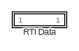
[diagram: root canvas - part 1/4, top right region]
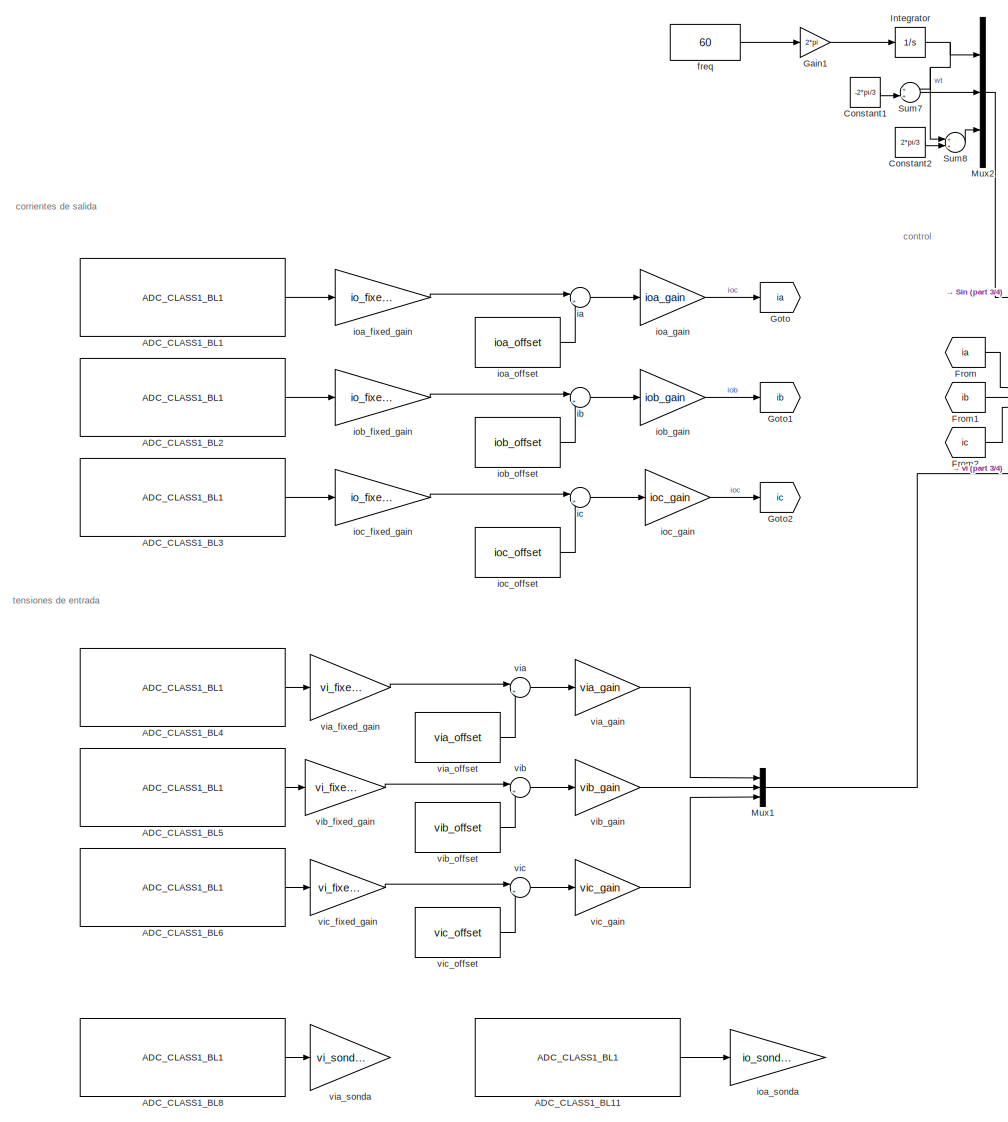
[diagram: root canvas - part 2/4, left side, full height]
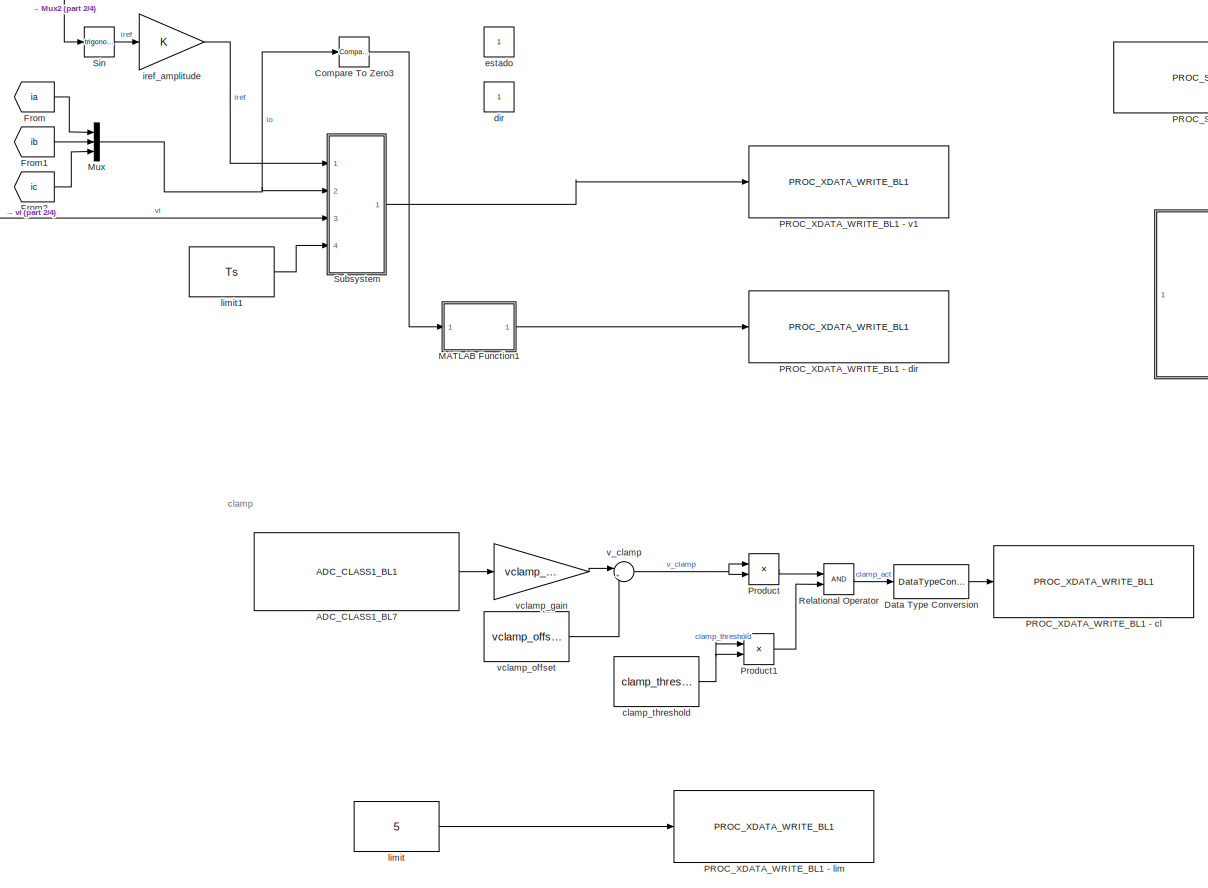
[diagram: root canvas - part 3/4, central region]
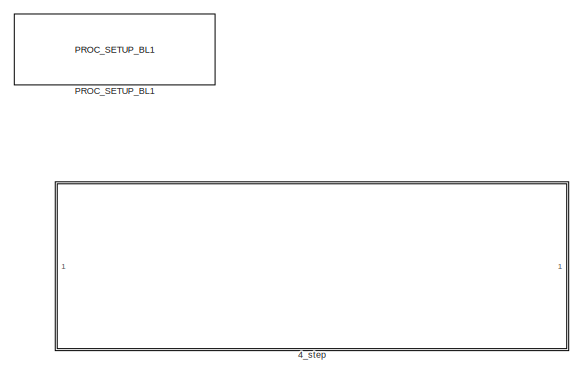
[diagram: root canvas - part 4/4, middle right region]
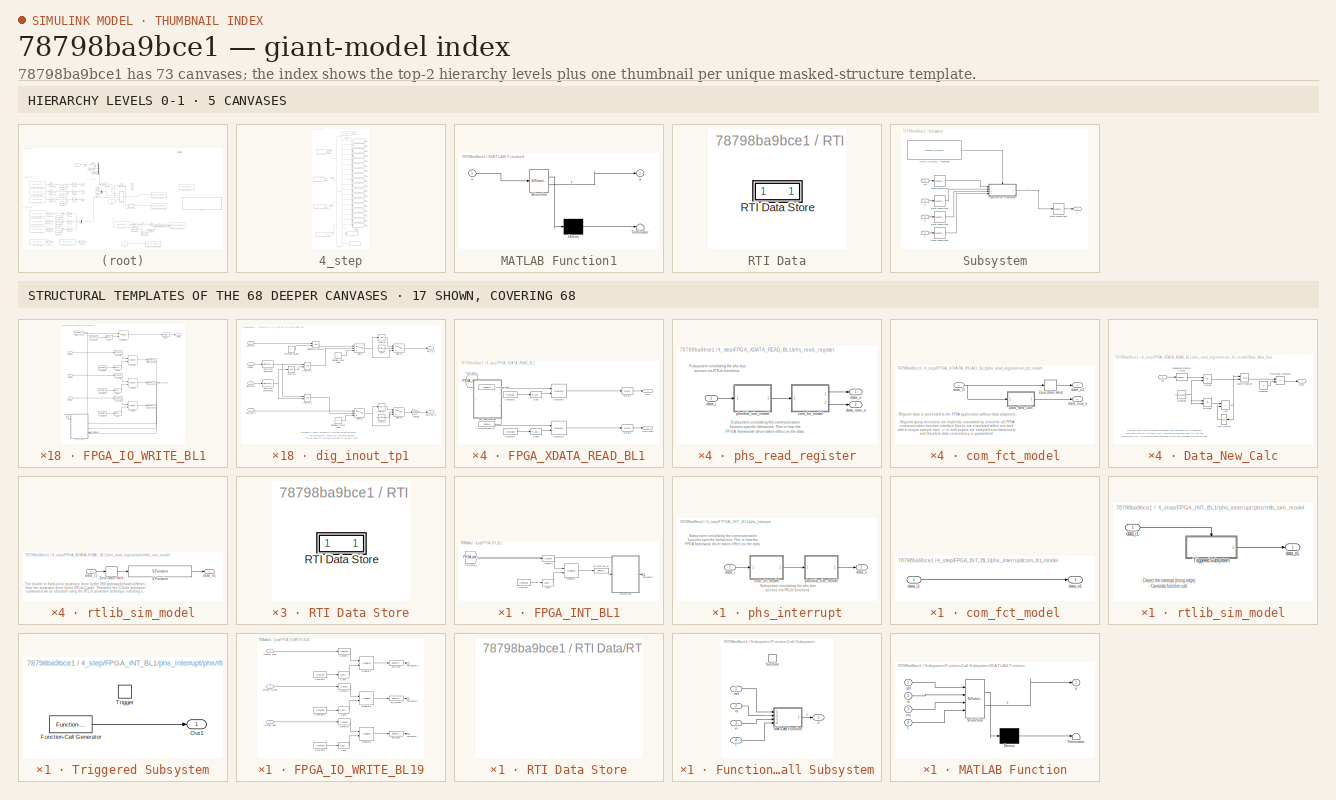
[diagram: thumbnail index - top-2 hierarchy levels (5 canvases) + 17 structural-template representatives of the remaining 68 canvases]
MODEL slx_78798ba9bce1
KIND model
CONFIG AbsTol = auto
CONFIG EnableMultiTasking = off
CONFIG FixedStep = Ts
CONFIG InitFcn = , if any(exist('rtifpga_mdlclblib', 'file') ~= 0), rtifpga_mdlclblib('Init', bdroot); end,\n
CONFIG MaxStep = auto
CONFIG MinStep = auto
CONFIG PostLoadFcn = , if any(exist('dsrtsu_mdlpostloadfcn', 'file') ~= 0), dsrtsu_mdlpostloadfcn('Execute', bdroot); end, \n
CONFIG RelTol = 1e-3
CONFIG SampleTimeConstraint = Unconstrained
CONFIG Solver = VariableStepAuto
CONFIG SolverName = VariableStepAuto
CONFIG StartTime = 0.0
CONFIG StopTime = inf
WORKSPACE source: mxarray member
WORKSPACE FPGA_test1_1_Interrupt_1_1_write: Simulink.Signal (value not decoded)
WORKSPACE FPGA_test1_1_Register_1_1_1_write: Simulink.Signal (value not decoded)
WORKSPACE FPGA_test1_1_Register_2_1_1_write: Simulink.Signal (value not decoded)
WORKSPACE FPGA_test1_1_Register_3_1_1_write: Simulink.Signal (value not decoded)
WORKSPACE FPGA_test1_1_Register_4_1_1_write: Simulink.Signal (value not decoded)
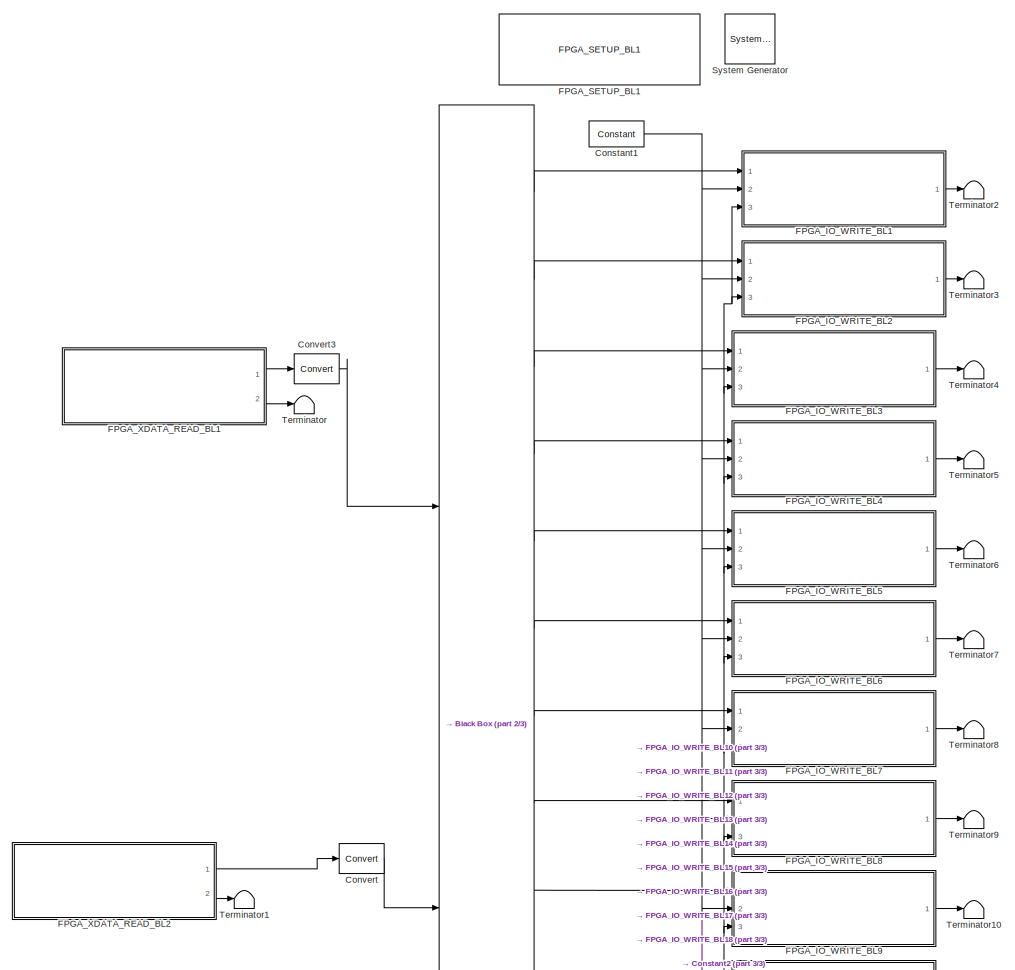
[diagram: 4_step - part 1/3, full width, top band]
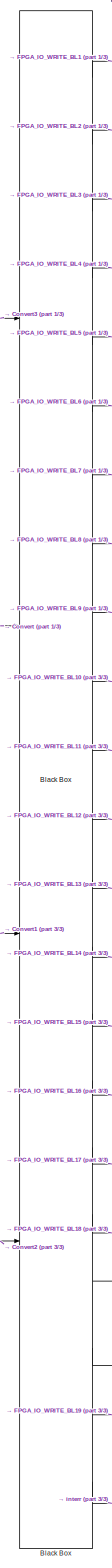
[diagram: 4_step - part 2/3, center side, full height]
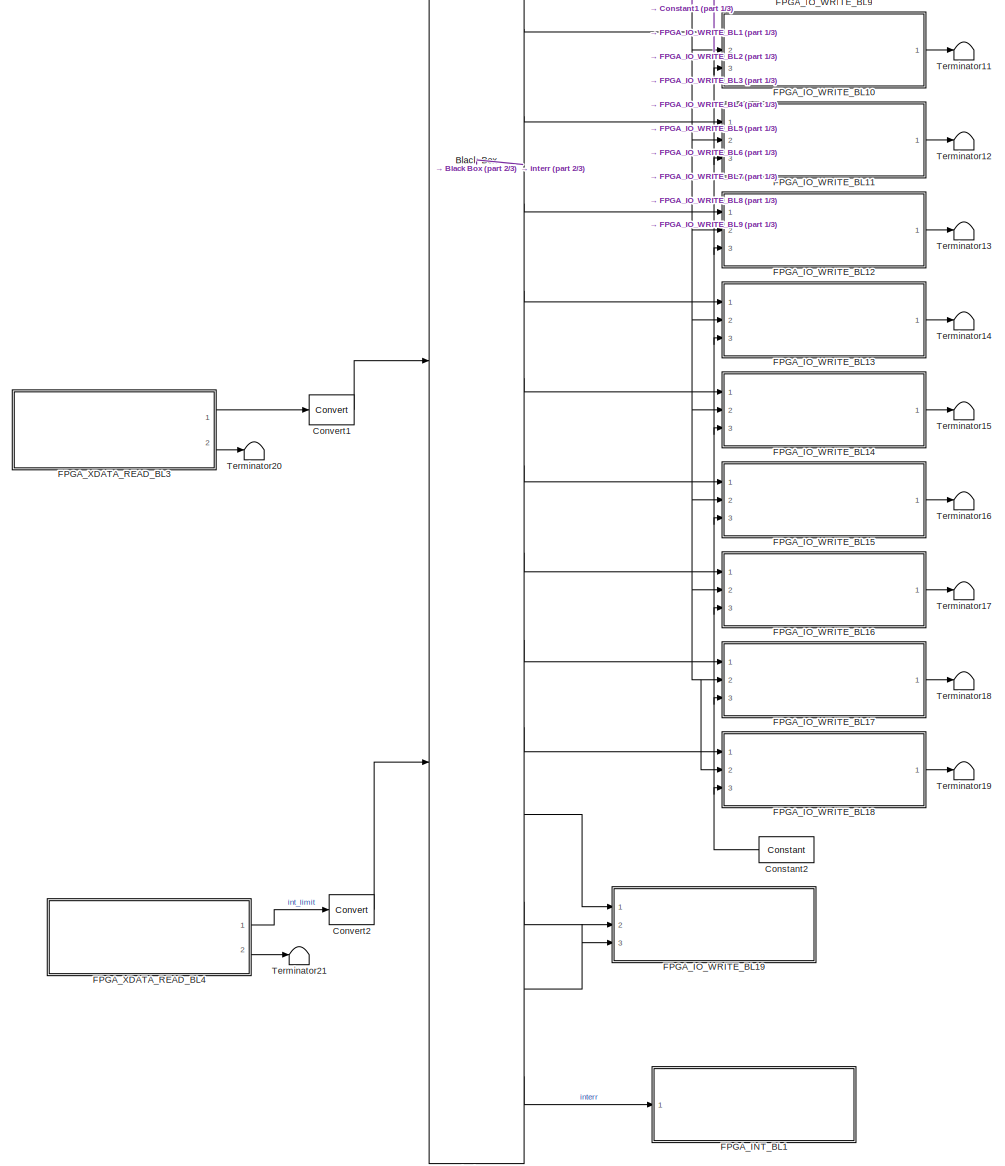
[diagram: 4_step - part 3/3, full width, bottom band]
BLOCK [SubSystem] 4_step
  Ports = []
  RequestExecContextInheritance = off
BLOCK [Reference] 4_step/ System Generator  REF=xbsIndex_r4/ System Generator
  AttributesFormatString = System\nGenerator
  Ports = []
  SourceBlock = xbsIndex_r4/ System Generator
  SourceType = Xilinx System Generator Block
  Tag = genX
  UserDataPersistent = on
BLOCK [Reference] 4_step/Black Box  REF=xbsIndex_r4/Black Box
  Ports = [4, 22]
  SourceBlock = xbsIndex_r4/Black Box
  SourceType = Xilinx Black Box Block
BLOCK [Reference] 4_step/Constant1  REF=xbsIndex_r4/Constant
  Ports = [0, 1]
  SourceBlock = xbsIndex_r4/Constant
  SourceType = Xilinx Constant Block Block
BLOCK [Reference] 4_step/Constant2  REF=xbsIndex_r4/Constant
  Ports = [0, 1]
  SourceBlock = xbsIndex_r4/Constant
  SourceType = Xilinx Constant Block Block
BLOCK [Reference] 4_step/Convert  REF=xbsIndex_r4/Convert
  Ports = [1, 1]
  SourceBlock = xbsIndex_r4/Convert
  SourceType = Xilinx Type Converter Block
BLOCK [Reference] 4_step/Convert1  REF=xbsIndex_r4/Convert
  Ports = [1, 1]
  SourceBlock = xbsIndex_r4/Convert
  SourceType = Xilinx Type Converter Block
BLOCK [Reference] 4_step/Convert2  REF=xbsIndex_r4/Convert
  Ports = [1, 1]
  SourceBlock = xbsIndex_r4/Convert
  SourceType = Xilinx Type Converter Block
BLOCK [Reference] 4_step/Convert3  REF=xbsIndex_r4/Convert
  Ports = [1, 1]
  SourceBlock = xbsIndex_r4/Convert
  SourceType = Xilinx Type Converter Block
BLOCK [SubSystem] 4_step/FPGA_INT_BL1
  CloseFcn = try, rti_fpga_blk_closefcn(gcbh); catch,errordlg({lasterr, '','Please check your RTI installation.'},['Error: ' upper(bdroot)], 'replace'); end
  CopyFcn = try, rti_fpga_blk_copyfcn(gcbh); catch,errordlg({lasterr, '','Please check your RTI installation.'},['Error: ' upper(bdroot)], 'replace'); end
  DeleteFcn = try, rti_fpga_blk_deletefcn(gcbh); catch,errordlg({lasterr, '','Please check your RTI installation.'},['Error: ' upper(bdroot)], 'replace'); end
  InitFcn = try, rti_fpga_blk_initfcn(gcbh); catch,errordlg({lasterr, '','Please check your RTI installation.'},['Error: ' upper(bdroot)], 'replace'); end
  LoadFcn = try, rti_fpga_blk_loadfcn(gcbh); catch,errordlg({lasterr, '','Please check your RTI installation.'},['Error: ' upper(bdroot)], 'replace'); end
  MaskHideContents = on
  ModelCloseFcn = try, rti_fpga_blk_modelclosefcn(gcbh); catch,errordlg({lasterr, '','Please check your RTI installation.'},['Error: ' upper(bdroot)], 'replace'); end
  NameChangeFcn = try, rti_fpga_blk_namechangefcn(gcbh); catch,errordlg({lasterr, '','Please check your RTI installation.'},['Error: ' upper(bdroot)], 'replace'); end
  OpenFcn = try, rti_fpga_blk_openfcn(gcbh); catch,errordlg({lasterr, '','Please check your RTI installation.'},['Error: ' upper(bdroot)], 'replace'); end
  ParentCloseFcn = try, rti_fpga_blk_parentclosefcn(gcbh); catch,errordlg({lasterr, '','Please check your RTI installation.'},['Error: ' upper(bdroot)], 'replace'); end
  Ports = [1]
  PreSaveFcn = try, rti_fpga_blk_presavefcn(gcbh); catch,errordlg({lasterr, '','Please check your RTI installation.'},['Error: ' upper(bdroot)], 'replace'); end
  RequestExecContextInheritance = off
  StartFcn = try, rti_fpga_blk_startfcn(gcbh); catch,errordlg({lasterr, '','Please check your RTI installation.'},['Error: ' upper(bdroot)], 'replace'); end
BLOCK [Reference] 4_step/FPGA_INT_BL1/CEP1  REF=xbsIndex_r4/Clock Enable Probe
  Ports = [1, 1]
  SourceBlock = xbsIndex_r4/Clock Enable Probe
  SourceType = Xilinx Clock Enable Probe Block
BLOCK [Reference] 4_step/FPGA_INT_BL1/Constant1  REF=xbsIndex_r4/Constant
  Ports = [0, 1]
  SourceBlock = xbsIndex_r4/Constant
  SourceType = Xilinx Constant Block Block
BLOCK [Reference] 4_step/FPGA_INT_BL1/Convert1  REF=xbsIndex_r4/Convert
  Ports = [1, 1]
  SourceBlock = xbsIndex_r4/Convert
  SourceType = Xilinx Type Converter Block
BLOCK [Goto] 4_step/FPGA_INT_BL1/Goto_data_o
  GotoTag = FPGA_test1_1_Interrupt_1_1_write
  TagVisibility = global
BLOCK [Inport] 4_step/FPGA_INT_BL1/Int
BLOCK [Reference] 4_step/FPGA_INT_BL1/Register1  REF=xbsIndex_r4/Register
  Ports = [2, 1]
  SourceBlock = xbsIndex_r4/Register
  SourceType = Xilinx Register Block
BLOCK [Terminator] 4_step/FPGA_INT_BL1/Terminator
BLOCK [SubSystem] 4_step/FPGA_INT_BL1/phs_interrupt
  Ports = [1, 1]
  RequestExecContextInheritance = off
BLOCK [SubSystem] 4_step/FPGA_INT_BL1/phs_interrupt/com_fct_model
  Ports = [1, 1]
  RequestExecContextInheritance = off
BLOCK [Inport] 4_step/FPGA_INT_BL1/phs_interrupt/com_fct_model/data_i1
BLOCK [Outport] 4_step/FPGA_INT_BL1/phs_interrupt/com_fct_model/data_o1
  VectorParamsAs1DForOutWhenUnconnected = off
BLOCK [Inport] 4_step/FPGA_INT_BL1/phs_interrupt/data_i
BLOCK [Outport] 4_step/FPGA_INT_BL1/phs_interrupt/data_o
  VectorParamsAs1DForOutWhenUnconnected = off
BLOCK [SubSystem] 4_step/FPGA_INT_BL1/phs_interrupt/phs//rtlib_sim_model
  Ports = [1, 1]
  RequestExecContextInheritance = off
BLOCK [SubSystem] 4_step/FPGA_INT_BL1/phs_interrupt/phs//rtlib_sim_model/Triggered Subsystem
  Ports = [0, 1, 0, 1]
  RequestExecContextInheritance = off
  TreatAsAtomicUnit = on
BLOCK [Reference] 4_step/FPGA_INT_BL1/phs_interrupt/phs//rtlib_sim_model/Triggered Subsystem/Function-Call Generator  REF=simulink/Ports &
Subsystems/Function-Call
Generator
  Ports = [0, 1]
  SourceBlock = simulink/Ports &\nSubsystems/Function-Call\nGenerator
  SourceProductBaseCode = SL
  SourceType = Function-Call Generator
BLOCK [Outport] 4_step/FPGA_INT_BL1/phs_interrupt/phs//rtlib_sim_model/Triggered Subsystem/Out1
  VectorParamsAs1DForOutWhenUnconnected = off
BLOCK [TriggerPort] 4_step/FPGA_INT_BL1/phs_interrupt/phs//rtlib_sim_model/Triggered Subsystem/Trigger
  Ports = []
  StatesWhenEnabling = held
  VariantControl = (inherit)
BLOCK [Inport] 4_step/FPGA_INT_BL1/phs_interrupt/phs//rtlib_sim_model/data_i1
BLOCK [Outport] 4_step/FPGA_INT_BL1/phs_interrupt/phs//rtlib_sim_model/data_o1
  VectorParamsAs1DForOutWhenUnconnected = off
BLOCK [Reference] 4_step/FPGA_INT_BL1/usr_interrupt_00  REF=xbsIndex_r4/Gateway Out
  Ports = [1, 1]
  SourceBlock = xbsIndex_r4/Gateway Out
  SourceType = Xilinx Gateway Out Block
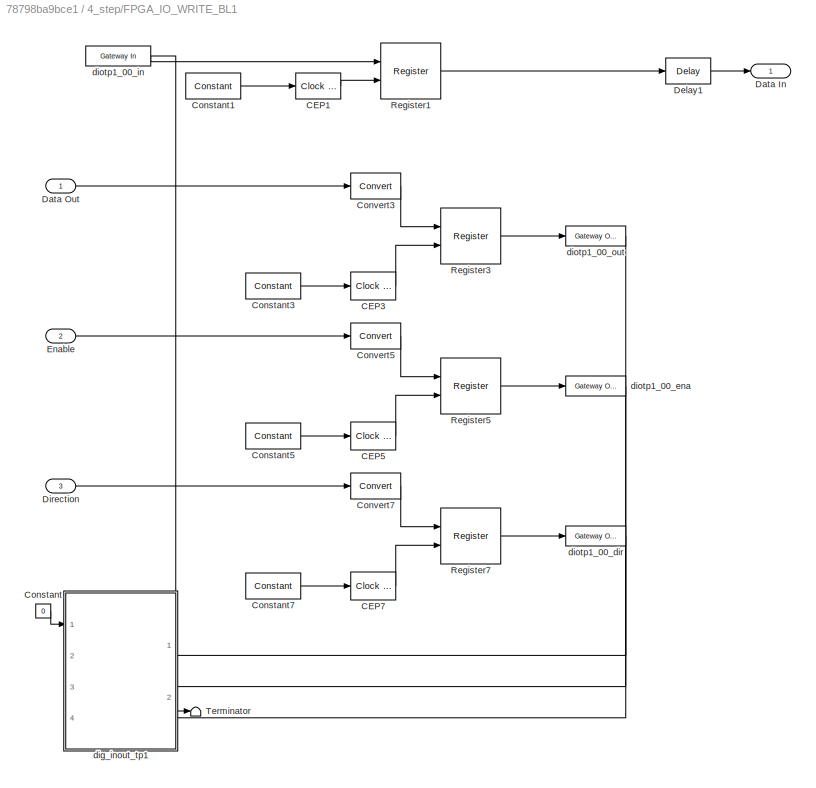
BLOCK [SubSystem] 4_step/FPGA_IO_WRITE_BL1
  CloseFcn = try, rti_fpga_blk_closefcn(gcbh); catch,errordlg({lasterr, '','Please check your RTI installation.'},['Error: ' upper(bdroot)], 'replace'); end
  CopyFcn = try, rti_fpga_blk_copyfcn(gcbh); catch,errordlg({lasterr, '','Please check your RTI installation.'},['Error: ' upper(bdroot)], 'replace'); end
  DeleteFcn = try, rti_fpga_blk_deletefcn(gcbh); catch,errordlg({lasterr, '','Please check your RTI installation.'},['Error: ' upper(bdroot)], 'replace'); end
  InitFcn = try, rti_fpga_blk_initfcn(gcbh); catch,errordlg({lasterr, '','Please check your RTI installation.'},['Error: ' upper(bdroot)], 'replace'); end
  LoadFcn = try, rti_fpga_blk_loadfcn(gcbh); catch,errordlg({lasterr, '','Please check your RTI installation.'},['Error: ' upper(bdroot)], 'replace'); end
  MaskHideContents = on
  ModelCloseFcn = try, rti_fpga_blk_modelclosefcn(gcbh); catch,errordlg({lasterr, '','Please check your RTI installation.'},['Error: ' upper(bdroot)], 'replace'); end
  NameChangeFcn = try, rti_fpga_blk_namechangefcn(gcbh); catch,errordlg({lasterr, '','Please check your RTI installation.'},['Error: ' upper(bdroot)], 'replace'); end
  OpenFcn = try, rti_fpga_blk_openfcn(gcbh); catch,errordlg({lasterr, '','Please check your RTI installation.'},['Error: ' upper(bdroot)], 'replace'); end
  ParentCloseFcn = try, rti_fpga_blk_parentclosefcn(gcbh); catch,errordlg({lasterr, '','Please check your RTI installation.'},['Error: ' upper(bdroot)], 'replace'); end
  Ports = [3, 1]
  PreSaveFcn = try, rti_fpga_blk_presavefcn(gcbh); catch,errordlg({lasterr, '','Please check your RTI installation.'},['Error: ' upper(bdroot)], 'replace'); end
  RequestExecContextInheritance = off
  StartFcn = try, rti_fpga_blk_startfcn(gcbh); catch,errordlg({lasterr, '','Please check your RTI installation.'},['Error: ' upper(bdroot)], 'replace'); end
BLOCK [Reference] 4_step/FPGA_IO_WRITE_BL1/CEP1  REF=xbsIndex_r4/Clock Enable Probe
  Ports = [1, 1]
  SourceBlock = xbsIndex_r4/Clock Enable Probe
  SourceType = Xilinx Clock Enable Probe Block
BLOCK [Reference] 4_step/FPGA_IO_WRITE_BL1/CEP3  REF=xbsIndex_r4/Clock Enable Probe
  Ports = [1, 1]
  SourceBlock = xbsIndex_r4/Clock Enable Probe
  SourceType = Xilinx Clock Enable Probe Block
BLOCK [Reference] 4_step/FPGA_IO_WRITE_BL1/CEP5  REF=xbsIndex_r4/Clock Enable Probe
  Ports = [1, 1]
  SourceBlock = xbsIndex_r4/Clock Enable Probe
  SourceType = Xilinx Clock Enable Probe Block
BLOCK [Reference] 4_step/FPGA_IO_WRITE_BL1/CEP7  REF=xbsIndex_r4/Clock Enable Probe
  Ports = [1, 1]
  SourceBlock = xbsIndex_r4/Clock Enable Probe
  SourceType = Xilinx Clock Enable Probe Block
BLOCK [Constant] 4_step/FPGA_IO_WRITE_BL1/Constant
  Value = 0
BLOCK [Reference] 4_step/FPGA_IO_WRITE_BL1/Constant1  REF=xbsIndex_r4/Constant
  Ports = [0, 1]
  SourceBlock = xbsIndex_r4/Constant
  SourceType = Xilinx Constant Block Block
BLOCK [Reference] 4_step/FPGA_IO_WRITE_BL1/Constant3  REF=xbsIndex_r4/Constant
  Ports = [0, 1]
  SourceBlock = xbsIndex_r4/Constant
  SourceType = Xilinx Constant Block Block
BLOCK [Reference] 4_step/FPGA_IO_WRITE_BL1/Constant5  REF=xbsIndex_r4/Constant
  Ports = [0, 1]
  SourceBlock = xbsIndex_r4/Constant
  SourceType = Xilinx Constant Block Block
BLOCK [Reference] 4_step/FPGA_IO_WRITE_BL1/Constant7  REF=xbsIndex_r4/Constant
  Ports = [0, 1]
  SourceBlock = xbsIndex_r4/Constant
  SourceType = Xilinx Constant Block Block
BLOCK [Reference] 4_step/FPGA_IO_WRITE_BL1/Convert3  REF=xbsIndex_r4/Convert
  Ports = [1, 1]
  SourceBlock = xbsIndex_r4/Convert
  SourceType = Xilinx Type Converter Block
BLOCK [Reference] 4_step/FPGA_IO_WRITE_BL1/Convert5  REF=xbsIndex_r4/Convert
  Ports = [1, 1]
  SourceBlock = xbsIndex_r4/Convert
  SourceType = Xilinx Type Converter Block
BLOCK [Reference] 4_step/FPGA_IO_WRITE_BL1/Convert7  REF=xbsIndex_r4/Convert
  Ports = [1, 1]
  SourceBlock = xbsIndex_r4/Convert
  SourceType = Xilinx Type Converter Block
BLOCK [Outport] 4_step/FPGA_IO_WRITE_BL1/Data In
BLOCK [Inport] 4_step/FPGA_IO_WRITE_BL1/Data Out
BLOCK [Reference] 4_step/FPGA_IO_WRITE_BL1/Delay1  REF=xbsIndex_r4/Delay
  Ports = [1, 1]
  SourceBlock = xbsIndex_r4/Delay
  SourceType = Xilinx Delay Block
BLOCK [Inport] 4_step/FPGA_IO_WRITE_BL1/Direction
  Port = 3
BLOCK [Inport] 4_step/FPGA_IO_WRITE_BL1/Enable
  Port = 2
BLOCK [Reference] 4_step/FPGA_IO_WRITE_BL1/Register1  REF=xbsIndex_r4/Register
  Ports = [2, 1]
  SourceBlock = xbsIndex_r4/Register
  SourceType = Xilinx Register Block
BLOCK [Reference] 4_step/FPGA_IO_WRITE_BL1/Register3  REF=xbsIndex_r4/Register
  Ports = [2, 1]
  SourceBlock = xbsIndex_r4/Register
  SourceType = Xilinx Register Block
BLOCK [Reference] 4_step/FPGA_IO_WRITE_BL1/Register5  REF=xbsIndex_r4/Register
  Ports = [2, 1]
  SourceBlock = xbsIndex_r4/Register
  SourceType = Xilinx Register Block
BLOCK [Reference] 4_step/FPGA_IO_WRITE_BL1/Register7  REF=xbsIndex_r4/Register
  Ports = [2, 1]
  SourceBlock = xbsIndex_r4/Register
  SourceType = Xilinx Register Block
BLOCK [Terminator] 4_step/FPGA_IO_WRITE_BL1/Terminator
BLOCK [SubSystem] 4_step/FPGA_IO_WRITE_BL1/dig_inout_tp1
  Ports = [4, 2]
  RequestExecContextInheritance = off
BLOCK [DataTypeConversion] 4_step/FPGA_IO_WRITE_BL1/dig_inout_tp1/Data Type Conversion
  RndMeth = Floor
  SaturateOnIntegerOverflow = off
BLOCK [DataTypeConversion] 4_step/FPGA_IO_WRITE_BL1/dig_inout_tp1/Data Type Conversion1
  RndMeth = Floor
  SaturateOnIntegerOverflow = off
BLOCK [Constant] 4_step/FPGA_IO_WRITE_BL1/dig_inout_tp1/Disabled Input Value
  Value = 0
BLOCK [Constant] 4_step/FPGA_IO_WRITE_BL1/dig_inout_tp1/Disabled Output Value
  Value = 0
BLOCK [Constant] 4_step/FPGA_IO_WRITE_BL1/dig_inout_tp1/Invert
  Value = inverted_dio
BLOCK [Constant] 4_step/FPGA_IO_WRITE_BL1/dig_inout_tp1/Invert1
  Value = inverted_dio
BLOCK [Logic] 4_step/FPGA_IO_WRITE_BL1/dig_inout_tp1/Inverter
  AllPortsSameDT = off
  Operator = NOT
  OutDataTypeStr = boolean
  Ports = [1, 1]
BLOCK [Logic] 4_step/FPGA_IO_WRITE_BL1/dig_inout_tp1/Inverter1
  AllPortsSameDT = off
  OutDataTypeStr = boolean
  Ports = [2, 1]
BLOCK [Logic] 4_step/FPGA_IO_WRITE_BL1/dig_inout_tp1/Inverter2
  AllPortsSameDT = off
  Operator = NOT
  OutDataTypeStr = boolean
  Ports = [1, 1]
BLOCK [Logic] 4_step/FPGA_IO_WRITE_BL1/dig_inout_tp1/Inverter3
  AllPortsSameDT = off
  OutDataTypeStr = boolean
  Ports = [2, 1]
BLOCK [Logic] 4_step/FPGA_IO_WRITE_BL1/dig_inout_tp1/Inverter4
  AllPortsSameDT = off
  Operator = NOT
  OutDataTypeStr = boolean
  Ports = [1, 1]
BLOCK [RelationalOperator] 4_step/FPGA_IO_WRITE_BL1/dig_inout_tp1/Relational Operator
  InputSameDT = off
  OutDataTypeStr = boolean
  Ports = [2, 1]
BLOCK [Switch] 4_step/FPGA_IO_WRITE_BL1/dig_inout_tp1/Switch
  InputSameDT = off
  SaturateOnIntegerOverflow = off
  Threshold = 1
BLOCK [Switch] 4_step/FPGA_IO_WRITE_BL1/dig_inout_tp1/Switch1
  InputSameDT = off
  SaturateOnIntegerOverflow = off
  Threshold = 1
BLOCK [Switch] 4_step/FPGA_IO_WRITE_BL1/dig_inout_tp1/Switch2
  InputSameDT = off
  SaturateOnIntegerOverflow = off
  Threshold = 1
BLOCK [Switch] 4_step/FPGA_IO_WRITE_BL1/dig_inout_tp1/Switch3
  InputSameDT = off
  SaturateOnIntegerOverflow = off
  Threshold = 1
BLOCK [Constant] 4_step/FPGA_IO_WRITE_BL1/dig_inout_tp1/Threshold Voltage
  Value = 2
BLOCK [Gain] 4_step/FPGA_IO_WRITE_BL1/dig_inout_tp1/Voltage
  Gain = voltage
  ParamDataTypeStr = float('double')
BLOCK [Inport] 4_step/FPGA_IO_WRITE_BL1/dig_inout_tp1/data_in_i
BLOCK [Outport] 4_step/FPGA_IO_WRITE_BL1/dig_inout_tp1/data_in_o
  VectorParamsAs1DForOutWhenUnconnected = off
BLOCK [Inport] 4_step/FPGA_IO_WRITE_BL1/dig_inout_tp1/data_out_i
  Port = 3
BLOCK [Outport] 4_step/FPGA_IO_WRITE_BL1/dig_inout_tp1/data_out_o
  Port = 2
  VectorParamsAs1DForOutWhenUnconnected = off
BLOCK [Inport] 4_step/FPGA_IO_WRITE_BL1/dig_inout_tp1/direction_i
  Port = 4
BLOCK [Inport] 4_step/FPGA_IO_WRITE_BL1/dig_inout_tp1/enable_i
  Port = 2
BLOCK [Reference] 4_step/FPGA_IO_WRITE_BL1/diotp1_00_dir  REF=xbsIndex_r4/Gateway Out
  Ports = [1, 1]
  SourceBlock = xbsIndex_r4/Gateway Out
  SourceType = Xilinx Gateway Out Block
BLOCK [Reference] 4_step/FPGA_IO_WRITE_BL1/diotp1_00_ena  REF=xbsIndex_r4/Gateway Out
  Ports = [1, 1]
  SourceBlock = xbsIndex_r4/Gateway Out
  SourceType = Xilinx Gateway Out Block
BLOCK [Reference] 4_step/FPGA_IO_WRITE_BL1/diotp1_00_in  REF=xbsIndex_r4/Gateway In
  Ports = [1, 1]
  SourceBlock = xbsIndex_r4/Gateway In
  SourceType = Xilinx Gateway In Block
BLOCK [Reference] 4_step/FPGA_IO_WRITE_BL1/diotp1_00_out  REF=xbsIndex_r4/Gateway Out
  Ports = [1, 1]
  SourceBlock = xbsIndex_r4/Gateway Out
  SourceType = Xilinx Gateway Out Block
BLOCK [SubSystem] 4_step/FPGA_IO_WRITE_BL10
  CloseFcn = try, rti_fpga_blk_closefcn(gcbh); catch,errordlg({lasterr, '','Please check your RTI installation.'},['Error: ' upper(bdroot)], 'replace'); end
  CopyFcn = try, rti_fpga_blk_copyfcn(gcbh); catch,errordlg({lasterr, '','Please check your RTI installation.'},['Error: ' upper(bdroot)], 'replace'); end
  DeleteFcn = try, rti_fpga_blk_deletefcn(gcbh); catch,errordlg({lasterr, '','Please check your RTI installation.'},['Error: ' upper(bdroot)], 'replace'); end
  InitFcn = try, rti_fpga_blk_initfcn(gcbh); catch,errordlg({lasterr, '','Please check your RTI installation.'},['Error: ' upper(bdroot)], 'replace'); end
  LoadFcn = try, rti_fpga_blk_loadfcn(gcbh); catch,errordlg({lasterr, '','Please check your RTI installation.'},['Error: ' upper(bdroot)], 'replace'); end
  MaskHideContents = on
  ModelCloseFcn = try, rti_fpga_blk_modelclosefcn(gcbh); catch,errordlg({lasterr, '','Please check your RTI installation.'},['Error: ' upper(bdroot)], 'replace'); end
  NameChangeFcn = try, rti_fpga_blk_namechangefcn(gcbh); catch,errordlg({lasterr, '','Please check your RTI installation.'},['Error: ' upper(bdroot)], 'replace'); end
  OpenFcn = try, rti_fpga_blk_openfcn(gcbh); catch,errordlg({lasterr, '','Please check your RTI installation.'},['Error: ' upper(bdroot)], 'replace'); end
  ParentCloseFcn = try, rti_fpga_blk_parentclosefcn(gcbh); catch,errordlg({lasterr, '','Please check your RTI installation.'},['Error: ' upper(bdroot)], 'replace'); end
  Ports = [3, 1]
  PreSaveFcn = try, rti_fpga_blk_presavefcn(gcbh); catch,errordlg({lasterr, '','Please check your RTI installation.'},['Error: ' upper(bdroot)], 'replace'); end
  RequestExecContextInheritance = off
  StartFcn = try, rti_fpga_blk_startfcn(gcbh); catch,errordlg({lasterr, '','Please check your RTI installation.'},['Error: ' upper(bdroot)], 'replace'); end
BLOCK [Reference] 4_step/FPGA_IO_WRITE_BL10/CEP1  REF=xbsIndex_r4/Clock Enable Probe
  Ports = [1, 1]
  SourceBlock = xbsIndex_r4/Clock Enable Probe
  SourceType = Xilinx Clock Enable Probe Block
BLOCK [Reference] 4_step/FPGA_IO_WRITE_BL10/CEP3  REF=xbsIndex_r4/Clock Enable Probe
  Ports = [1, 1]
  SourceBlock = xbsIndex_r4/Clock Enable Probe
  SourceType = Xilinx Clock Enable Probe Block
BLOCK [Reference] 4_step/FPGA_IO_WRITE_BL10/CEP5  REF=xbsIndex_r4/Clock Enable Probe
  Ports = [1, 1]
  SourceBlock = xbsIndex_r4/Clock Enable Probe
  SourceType = Xilinx Clock Enable Probe Block
BLOCK [Reference] 4_step/FPGA_IO_WRITE_BL10/CEP7  REF=xbsIndex_r4/Clock Enable Probe
  Ports = [1, 1]
  SourceBlock = xbsIndex_r4/Clock Enable Probe
  SourceType = Xilinx Clock Enable Probe Block
BLOCK [Constant] 4_step/FPGA_IO_WRITE_BL10/Constant
  Value = 0
BLOCK [Reference] 4_step/FPGA_IO_WRITE_BL10/Constant1  REF=xbsIndex_r4/Constant
  Ports = [0, 1]
  SourceBlock = xbsIndex_r4/Constant
  SourceType = Xilinx Constant Block Block
BLOCK [Reference] 4_step/FPGA_IO_WRITE_BL10/Constant3  REF=xbsIndex_r4/Constant
  Ports = [0, 1]
  SourceBlock = xbsIndex_r4/Constant
  SourceType = Xilinx Constant Block Block
BLOCK [Reference] 4_step/FPGA_IO_WRITE_BL10/Constant5  REF=xbsIndex_r4/Constant
  Ports = [0, 1]
  SourceBlock = xbsIndex_r4/Constant
  SourceType = Xilinx Constant Block Block
BLOCK [Reference] 4_step/FPGA_IO_WRITE_BL10/Constant7  REF=xbsIndex_r4/Constant
  Ports = [0, 1]
  SourceBlock = xbsIndex_r4/Constant
  SourceType = Xilinx Constant Block Block
BLOCK [Reference] 4_step/FPGA_IO_WRITE_BL10/Convert3  REF=xbsIndex_r4/Convert
  Ports = [1, 1]
  SourceBlock = xbsIndex_r4/Convert
  SourceType = Xilinx Type Converter Block
BLOCK [Reference] 4_step/FPGA_IO_WRITE_BL10/Convert5  REF=xbsIndex_r4/Convert
  Ports = [1, 1]
  SourceBlock = xbsIndex_r4/Convert
  SourceType = Xilinx Type Converter Block
BLOCK [Reference] 4_step/FPGA_IO_WRITE_BL10/Convert7  REF=xbsIndex_r4/Convert
  Ports = [1, 1]
  SourceBlock = xbsIndex_r4/Convert
  SourceType = Xilinx Type Converter Block
BLOCK [Outport] 4_step/FPGA_IO_WRITE_BL10/Data In
BLOCK [Inport] 4_step/FPGA_IO_WRITE_BL10/Data Out
BLOCK [Reference] 4_step/FPGA_IO_WRITE_BL10/Delay1  REF=xbsIndex_r4/Delay
  Ports = [1, 1]
  SourceBlock = xbsIndex_r4/Delay
  SourceType = Xilinx Delay Block
BLOCK [Inport] 4_step/FPGA_IO_WRITE_BL10/Direction
  Port = 3
BLOCK [Inport] 4_step/FPGA_IO_WRITE_BL10/Enable
  Port = 2
BLOCK [Reference] 4_step/FPGA_IO_WRITE_BL10/Register1  REF=xbsIndex_r4/Register
  Ports = [2, 1]
  SourceBlock = xbsIndex_r4/Register
  SourceType = Xilinx Register Block
BLOCK [Reference] 4_step/FPGA_IO_WRITE_BL10/Register3  REF=xbsIndex_r4/Register
  Ports = [2, 1]
  SourceBlock = xbsIndex_r4/Register
  SourceType = Xilinx Register Block
BLOCK [Reference] 4_step/FPGA_IO_WRITE_BL10/Register5  REF=xbsIndex_r4/Register
  Ports = [2, 1]
  SourceBlock = xbsIndex_r4/Register
  SourceType = Xilinx Register Block
BLOCK [Reference] 4_step/FPGA_IO_WRITE_BL10/Register7  REF=xbsIndex_r4/Register
  Ports = [2, 1]
  SourceBlock = xbsIndex_r4/Register
  SourceType = Xilinx Register Block
BLOCK [Terminator] 4_step/FPGA_IO_WRITE_BL10/Terminator
BLOCK [SubSystem] 4_step/FPGA_IO_WRITE_BL10/dig_inout_tp1
  Ports = [4, 2]
  RequestExecContextInheritance = off
BLOCK [DataTypeConversion] 4_step/FPGA_IO_WRITE_BL10/dig_inout_tp1/Data Type Conversion
  RndMeth = Floor
  SaturateOnIntegerOverflow = off
BLOCK [DataTypeConversion] 4_step/FPGA_IO_WRITE_BL10/dig_inout_tp1/Data Type Conversion1
  RndMeth = Floor
  SaturateOnIntegerOverflow = off
BLOCK [Constant] 4_step/FPGA_IO_WRITE_BL10/dig_inout_tp1/Disabled Input Value
  Value = 0
BLOCK [Constant] 4_step/FPGA_IO_WRITE_BL10/dig_inout_tp1/Disabled Output Value
  Value = 0
BLOCK [Constant] 4_step/FPGA_IO_WRITE_BL10/dig_inout_tp1/Invert
  Value = inverted_dio
BLOCK [Constant] 4_step/FPGA_IO_WRITE_BL10/dig_inout_tp1/Invert1
  Value = inverted_dio
BLOCK [Logic] 4_step/FPGA_IO_WRITE_BL10/dig_inout_tp1/Inverter
  AllPortsSameDT = off
  Operator = NOT
  OutDataTypeStr = boolean
  Ports = [1, 1]
BLOCK [Logic] 4_step/FPGA_IO_WRITE_BL10/dig_inout_tp1/Inverter1
  AllPortsSameDT = off
  OutDataTypeStr = boolean
  Ports = [2, 1]
BLOCK [Logic] 4_step/FPGA_IO_WRITE_BL10/dig_inout_tp1/Inverter2
  AllPortsSameDT = off
  Operator = NOT
  OutDataTypeStr = boolean
  Ports = [1, 1]
BLOCK [Logic] 4_step/FPGA_IO_WRITE_BL10/dig_inout_tp1/Inverter3
  AllPortsSameDT = off
  OutDataTypeStr = boolean
  Ports = [2, 1]
BLOCK [Logic] 4_step/FPGA_IO_WRITE_BL10/dig_inout_tp1/Inverter4
  AllPortsSameDT = off
  Operator = NOT
  OutDataTypeStr = boolean
  Ports = [1, 1]
BLOCK [RelationalOperator] 4_step/FPGA_IO_WRITE_BL10/dig_inout_tp1/Relational Operator
  InputSameDT = off
  OutDataTypeStr = boolean
  Ports = [2, 1]
BLOCK [Switch] 4_step/FPGA_IO_WRITE_BL10/dig_inout_tp1/Switch
  InputSameDT = off
  SaturateOnIntegerOverflow = off
  Threshold = 1
BLOCK [Switch] 4_step/FPGA_IO_WRITE_BL10/dig_inout_tp1/Switch1
  InputSameDT = off
  SaturateOnIntegerOverflow = off
  Threshold = 1
BLOCK [Switch] 4_step/FPGA_IO_WRITE_BL10/dig_inout_tp1/Switch2
  InputSameDT = off
  SaturateOnIntegerOverflow = off
  Threshold = 1
BLOCK [Switch] 4_step/FPGA_IO_WRITE_BL10/dig_inout_tp1/Switch3
  InputSameDT = off
  SaturateOnIntegerOverflow = off
  Threshold = 1
BLOCK [Constant] 4_step/FPGA_IO_WRITE_BL10/dig_inout_tp1/Threshold Voltage
  Value = 2
BLOCK [Gain] 4_step/FPGA_IO_WRITE_BL10/dig_inout_tp1/Voltage
  Gain = voltage
  ParamDataTypeStr = float('double')
BLOCK [Inport] 4_step/FPGA_IO_WRITE_BL10/dig_inout_tp1/data_in_i
BLOCK [Outport] 4_step/FPGA_IO_WRITE_BL10/dig_inout_tp1/data_in_o
  VectorParamsAs1DForOutWhenUnconnected = off
BLOCK [Inport] 4_step/FPGA_IO_WRITE_BL10/dig_inout_tp1/data_out_i
  Port = 3
BLOCK [Outport] 4_step/FPGA_IO_WRITE_BL10/dig_inout_tp1/data_out_o
  Port = 2
  VectorParamsAs1DForOutWhenUnconnected = off
BLOCK [Inport] 4_step/FPGA_IO_WRITE_BL10/dig_inout_tp1/direction_i
  Port = 4
BLOCK [Inport] 4_step/FPGA_IO_WRITE_BL10/dig_inout_tp1/enable_i
  Port = 2
BLOCK [Reference] 4_step/FPGA_IO_WRITE_BL10/diotp1_09_dir  REF=xbsIndex_r4/Gateway Out
  Ports = [1, 1]
  SourceBlock = xbsIndex_r4/Gateway Out
  SourceType = Xilinx Gateway Out Block
BLOCK [Reference] 4_step/FPGA_IO_WRITE_BL10/diotp1_09_ena  REF=xbsIndex_r4/Gateway Out
  Ports = [1, 1]
  SourceBlock = xbsIndex_r4/Gateway Out
  SourceType = Xilinx Gateway Out Block
BLOCK [Reference] 4_step/FPGA_IO_WRITE_BL10/diotp1_09_in  REF=xbsIndex_r4/Gateway In
  Ports = [1, 1]
  SourceBlock = xbsIndex_r4/Gateway In
  SourceType = Xilinx Gateway In Block
BLOCK [Reference] 4_step/FPGA_IO_WRITE_BL10/diotp1_09_out  REF=xbsIndex_r4/Gateway Out
  Ports = [1, 1]
  SourceBlock = xbsIndex_r4/Gateway Out
  SourceType = Xilinx Gateway Out Block
BLOCK [SubSystem] 4_step/FPGA_IO_WRITE_BL11
  CloseFcn = try, rti_fpga_blk_closefcn(gcbh); catch,errordlg({lasterr, '','Please check your RTI installation.'},['Error: ' upper(bdroot)], 'replace'); end
  CopyFcn = try, rti_fpga_blk_copyfcn(gcbh); catch,errordlg({lasterr, '','Please check your RTI installation.'},['Error: ' upper(bdroot)], 'replace'); end
  DeleteFcn = try, rti_fpga_blk_deletefcn(gcbh); catch,errordlg({lasterr, '','Please check your RTI installation.'},['Error: ' upper(bdroot)], 'replace'); end
  InitFcn = try, rti_fpga_blk_initfcn(gcbh); catch,errordlg({lasterr, '','Please check your RTI installation.'},['Error: ' upper(bdroot)], 'replace'); end
  LoadFcn = try, rti_fpga_blk_loadfcn(gcbh); catch,errordlg({lasterr, '','Please check your RTI installation.'},['Error: ' upper(bdroot)], 'replace'); end
  MaskHideContents = on
  ModelCloseFcn = try, rti_fpga_blk_modelclosefcn(gcbh); catch,errordlg({lasterr, '','Please check your RTI installation.'},['Error: ' upper(bdroot)], 'replace'); end
  NameChangeFcn = try, rti_fpga_blk_namechangefcn(gcbh); catch,errordlg({lasterr, '','Please check your RTI installation.'},['Error: ' upper(bdroot)], 'replace'); end
  OpenFcn = try, rti_fpga_blk_openfcn(gcbh); catch,errordlg({lasterr, '','Please check your RTI installation.'},['Error: ' upper(bdroot)], 'replace'); end
  ParentCloseFcn = try, rti_fpga_blk_parentclosefcn(gcbh); catch,errordlg({lasterr, '','Please check your RTI installation.'},['Error: ' upper(bdroot)], 'replace'); end
  Ports = [3, 1]
  PreSaveFcn = try, rti_fpga_blk_presavefcn(gcbh); catch,errordlg({lasterr, '','Please check your RTI installation.'},['Error: ' upper(bdroot)], 'replace'); end
  RequestExecContextInheritance = off
  StartFcn = try, rti_fpga_blk_startfcn(gcbh); catch,errordlg({lasterr, '','Please check your RTI installation.'},['Error: ' upper(bdroot)], 'replace'); end
BLOCK [Reference] 4_step/FPGA_IO_WRITE_BL11/CEP1  REF=xbsIndex_r4/Clock Enable Probe
  Ports = [1, 1]
  SourceBlock = xbsIndex_r4/Clock Enable Probe
  SourceType = Xilinx Clock Enable Probe Block
BLOCK [Reference] 4_step/FPGA_IO_WRITE_BL11/CEP3  REF=xbsIndex_r4/Clock Enable Probe
  Ports = [1, 1]
  SourceBlock = xbsIndex_r4/Clock Enable Probe
  SourceType = Xilinx Clock Enable Probe Block
BLOCK [Reference] 4_step/FPGA_IO_WRITE_BL11/CEP5  REF=xbsIndex_r4/Clock Enable Probe
  Ports = [1, 1]
  SourceBlock = xbsIndex_r4/Clock Enable Probe
  SourceType = Xilinx Clock Enable Probe Block
BLOCK [Reference] 4_step/FPGA_IO_WRITE_BL11/CEP7  REF=xbsIndex_r4/Clock Enable Probe
  Ports = [1, 1]
  SourceBlock = xbsIndex_r4/Clock Enable Probe
  SourceType = Xilinx Clock Enable Probe Block
BLOCK [Constant] 4_step/FPGA_IO_WRITE_BL11/Constant
  Value = 0
BLOCK [Reference] 4_step/FPGA_IO_WRITE_BL11/Constant1  REF=xbsIndex_r4/Constant
  Ports = [0, 1]
  SourceBlock = xbsIndex_r4/Constant
  SourceType = Xilinx Constant Block Block
BLOCK [Reference] 4_step/FPGA_IO_WRITE_BL11/Constant3  REF=xbsIndex_r4/Constant
  Ports = [0, 1]
  SourceBlock = xbsIndex_r4/Constant
  SourceType = Xilinx Constant Block Block
BLOCK [Reference] 4_step/FPGA_IO_WRITE_BL11/Constant5  REF=xbsIndex_r4/Constant
  Ports = [0, 1]
  SourceBlock = xbsIndex_r4/Constant
  SourceType = Xilinx Constant Block Block
BLOCK [Reference] 4_step/FPGA_IO_WRITE_BL11/Constant7  REF=xbsIndex_r4/Constant
  Ports = [0, 1]
  SourceBlock = xbsIndex_r4/Constant
  SourceType = Xilinx Constant Block Block
BLOCK [Reference] 4_step/FPGA_IO_WRITE_BL11/Convert3  REF=xbsIndex_r4/Convert
  Ports = [1, 1]
  SourceBlock = xbsIndex_r4/Convert
  SourceType = Xilinx Type Converter Block
BLOCK [Reference] 4_step/FPGA_IO_WRITE_BL11/Convert5  REF=xbsIndex_r4/Convert
  Ports = [1, 1]
  SourceBlock = xbsIndex_r4/Convert
  SourceType = Xilinx Type Converter Block
BLOCK [Reference] 4_step/FPGA_IO_WRITE_BL11/Convert7  REF=xbsIndex_r4/Convert
  Ports = [1, 1]
  SourceBlock = xbsIndex_r4/Convert
  SourceType = Xilinx Type Converter Block
BLOCK [Outport] 4_step/FPGA_IO_WRITE_BL11/Data In
BLOCK [Inport] 4_step/FPGA_IO_WRITE_BL11/Data Out
BLOCK [Reference] 4_step/FPGA_IO_WRITE_BL11/Delay1  REF=xbsIndex_r4/Delay
  Ports = [1, 1]
  SourceBlock = xbsIndex_r4/Delay
  SourceType = Xilinx Delay Block
BLOCK [Inport] 4_step/FPGA_IO_WRITE_BL11/Direction
  Port = 3
BLOCK [Inport] 4_step/FPGA_IO_WRITE_BL11/Enable
  Port = 2
BLOCK [Reference] 4_step/FPGA_IO_WRITE_BL11/Register1  REF=xbsIndex_r4/Register
  Ports = [2, 1]
  SourceBlock = xbsIndex_r4/Register
  SourceType = Xilinx Register Block
BLOCK [Reference] 4_step/FPGA_IO_WRITE_BL11/Register3  REF=xbsIndex_r4/Register
  Ports = [2, 1]
  SourceBlock = xbsIndex_r4/Register
  SourceType = Xilinx Register Block
BLOCK [Reference] 4_step/FPGA_IO_WRITE_BL11/Register5  REF=xbsIndex_r4/Register
  Ports = [2, 1]
  SourceBlock = xbsIndex_r4/Register
  SourceType = Xilinx Register Block
BLOCK [Reference] 4_step/FPGA_IO_WRITE_BL11/Register7  REF=xbsIndex_r4/Register
  Ports = [2, 1]
  SourceBlock = xbsIndex_r4/Register
  SourceType = Xilinx Register Block
BLOCK [Terminator] 4_step/FPGA_IO_WRITE_BL11/Terminator
BLOCK [SubSystem] 4_step/FPGA_IO_WRITE_BL11/dig_inout_tp1
  Ports = [4, 2]
  RequestExecContextInheritance = off
BLOCK [DataTypeConversion] 4_step/FPGA_IO_WRITE_BL11/dig_inout_tp1/Data Type Conversion
  RndMeth = Floor
  SaturateOnIntegerOverflow = off
BLOCK [DataTypeConversion] 4_step/FPGA_IO_WRITE_BL11/dig_inout_tp1/Data Type Conversion1
  RndMeth = Floor
  SaturateOnIntegerOverflow = off
BLOCK [Constant] 4_step/FPGA_IO_WRITE_BL11/dig_inout_tp1/Disabled Input Value
  Value = 0
BLOCK [Constant] 4_step/FPGA_IO_WRITE_BL11/dig_inout_tp1/Disabled Output Value
  Value = 0
BLOCK [Constant] 4_step/FPGA_IO_WRITE_BL11/dig_inout_tp1/Invert
  Value = inverted_dio
BLOCK [Constant] 4_step/FPGA_IO_WRITE_BL11/dig_inout_tp1/Invert1
  Value = inverted_dio
BLOCK [Logic] 4_step/FPGA_IO_WRITE_BL11/dig_inout_tp1/Inverter
  AllPortsSameDT = off
  Operator = NOT
  OutDataTypeStr = boolean
  Ports = [1, 1]
BLOCK [Logic] 4_step/FPGA_IO_WRITE_BL11/dig_inout_tp1/Inverter1
  AllPortsSameDT = off
  OutDataTypeStr = boolean
  Ports = [2, 1]
BLOCK [Logic] 4_step/FPGA_IO_WRITE_BL11/dig_inout_tp1/Inverter2
  AllPortsSameDT = off
  Operator = NOT
  OutDataTypeStr = boolean
  Ports = [1, 1]
BLOCK [Logic] 4_step/FPGA_IO_WRITE_BL11/dig_inout_tp1/Inverter3
  AllPortsSameDT = off
  OutDataTypeStr = boolean
  Ports = [2, 1]
BLOCK [Logic] 4_step/FPGA_IO_WRITE_BL11/dig_inout_tp1/Inverter4
  AllPortsSameDT = off
  Operator = NOT
  OutDataTypeStr = boolean
  Ports = [1, 1]
BLOCK [RelationalOperator] 4_step/FPGA_IO_WRITE_BL11/dig_inout_tp1/Relational Operator
  InputSameDT = off
  OutDataTypeStr = boolean
  Ports = [2, 1]
BLOCK [Switch] 4_step/FPGA_IO_WRITE_BL11/dig_inout_tp1/Switch
  InputSameDT = off
  SaturateOnIntegerOverflow = off
  Threshold = 1
BLOCK [Switch] 4_step/FPGA_IO_WRITE_BL11/dig_inout_tp1/Switch1
  InputSameDT = off
  SaturateOnIntegerOverflow = off
  Threshold = 1
BLOCK [Switch] 4_step/FPGA_IO_WRITE_BL11/dig_inout_tp1/Switch2
  InputSameDT = off
  SaturateOnIntegerOverflow = off
  Threshold = 1
BLOCK [Switch] 4_step/FPGA_IO_WRITE_BL11/dig_inout_tp1/Switch3
  InputSameDT = off
  SaturateOnIntegerOverflow = off
  Threshold = 1
BLOCK [Constant] 4_step/FPGA_IO_WRITE_BL11/dig_inout_tp1/Threshold Voltage
  Value = 2
BLOCK [Gain] 4_step/FPGA_IO_WRITE_BL11/dig_inout_tp1/Voltage
  Gain = voltage
  ParamDataTypeStr = float('double')
BLOCK [Inport] 4_step/FPGA_IO_WRITE_BL11/dig_inout_tp1/data_in_i
BLOCK [Outport] 4_step/FPGA_IO_WRITE_BL11/dig_inout_tp1/data_in_o
  VectorParamsAs1DForOutWhenUnconnected = off
BLOCK [Inport] 4_step/FPGA_IO_WRITE_BL11/dig_inout_tp1/data_out_i
  Port = 3
BLOCK [Outport] 4_step/FPGA_IO_WRITE_BL11/dig_inout_tp1/data_out_o
  Port = 2
  VectorParamsAs1DForOutWhenUnconnected = off
BLOCK [Inport] 4_step/FPGA_IO_WRITE_BL11/dig_inout_tp1/direction_i
  Port = 4
BLOCK [Inport] 4_step/FPGA_IO_WRITE_BL11/dig_inout_tp1/enable_i
  Port = 2
BLOCK [Reference] 4_step/FPGA_IO_WRITE_BL11/diotp1_10_dir  REF=xbsIndex_r4/Gateway Out
  Ports = [1, 1]
  SourceBlock = xbsIndex_r4/Gateway Out
  SourceType = Xilinx Gateway Out Block
BLOCK [Reference] 4_step/FPGA_IO_WRITE_BL11/diotp1_10_ena  REF=xbsIndex_r4/Gateway Out
  Ports = [1, 1]
  SourceBlock = xbsIndex_r4/Gateway Out
  SourceType = Xilinx Gateway Out Block
BLOCK [Reference] 4_step/FPGA_IO_WRITE_BL11/diotp1_10_in  REF=xbsIndex_r4/Gateway In
  Ports = [1, 1]
  SourceBlock = xbsIndex_r4/Gateway In
  SourceType = Xilinx Gateway In Block
BLOCK [Reference] 4_step/FPGA_IO_WRITE_BL11/diotp1_10_out  REF=xbsIndex_r4/Gateway Out
  Ports = [1, 1]
  SourceBlock = xbsIndex_r4/Gateway Out
  SourceType = Xilinx Gateway Out Block
BLOCK [SubSystem] 4_step/FPGA_IO_WRITE_BL12
  CloseFcn = try, rti_fpga_blk_closefcn(gcbh); catch,errordlg({lasterr, '','Please check your RTI installation.'},['Error: ' upper(bdroot)], 'replace'); end
  CopyFcn = try, rti_fpga_blk_copyfcn(gcbh); catch,errordlg({lasterr, '','Please check your RTI installation.'},['Error: ' upper(bdroot)], 'replace'); end
  DeleteFcn = try, rti_fpga_blk_deletefcn(gcbh); catch,errordlg({lasterr, '','Please check your RTI installation.'},['Error: ' upper(bdroot)], 'replace'); end
  InitFcn = try, rti_fpga_blk_initfcn(gcbh); catch,errordlg({lasterr, '','Please check your RTI installation.'},['Error: ' upper(bdroot)], 'replace'); end
  LoadFcn = try, rti_fpga_blk_loadfcn(gcbh); catch,errordlg({lasterr, '','Please check your RTI installation.'},['Error: ' upper(bdroot)], 'replace'); end
  MaskHideContents = on
  ModelCloseFcn = try, rti_fpga_blk_modelclosefcn(gcbh); catch,errordlg({lasterr, '','Please check your RTI installation.'},['Error: ' upper(bdroot)], 'replace'); end
  NameChangeFcn = try, rti_fpga_blk_namechangefcn(gcbh); catch,errordlg({lasterr, '','Please check your RTI installation.'},['Error: ' upper(bdroot)], 'replace'); end
  OpenFcn = try, rti_fpga_blk_openfcn(gcbh); catch,errordlg({lasterr, '','Please check your RTI installation.'},['Error: ' upper(bdroot)], 'replace'); end
  ParentCloseFcn = try, rti_fpga_blk_parentclosefcn(gcbh); catch,errordlg({lasterr, '','Please check your RTI installation.'},['Error: ' upper(bdroot)], 'replace'); end
  Ports = [3, 1]
  PreSaveFcn = try, rti_fpga_blk_presavefcn(gcbh); catch,errordlg({lasterr, '','Please check your RTI installation.'},['Error: ' upper(bdroot)], 'replace'); end
  RequestExecContextInheritance = off
  StartFcn = try, rti_fpga_blk_startfcn(gcbh); catch,errordlg({lasterr, '','Please check your RTI installation.'},['Error: ' upper(bdroot)], 'replace'); end
BLOCK [Reference] 4_step/FPGA_IO_WRITE_BL12/CEP1  REF=xbsIndex_r4/Clock Enable Probe
  Ports = [1, 1]
  SourceBlock = xbsIndex_r4/Clock Enable Probe
  SourceType = Xilinx Clock Enable Probe Block
BLOCK [Reference] 4_step/FPGA_IO_WRITE_BL12/CEP3  REF=xbsIndex_r4/Clock Enable Probe
  Ports = [1, 1]
  SourceBlock = xbsIndex_r4/Clock Enable Probe
  SourceType = Xilinx Clock Enable Probe Block
BLOCK [Reference] 4_step/FPGA_IO_WRITE_BL12/CEP5  REF=xbsIndex_r4/Clock Enable Probe
  Ports = [1, 1]
  SourceBlock = xbsIndex_r4/Clock Enable Probe
  SourceType = Xilinx Clock Enable Probe Block
BLOCK [Reference] 4_step/FPGA_IO_WRITE_BL12/CEP7  REF=xbsIndex_r4/Clock Enable Probe
  Ports = [1, 1]
  SourceBlock = xbsIndex_r4/Clock Enable Probe
  SourceType = Xilinx Clock Enable Probe Block
BLOCK [Constant] 4_step/FPGA_IO_WRITE_BL12/Constant
  Value = 0
BLOCK [Reference] 4_step/FPGA_IO_WRITE_BL12/Constant1  REF=xbsIndex_r4/Constant
  Ports = [0, 1]
  SourceBlock = xbsIndex_r4/Constant
  SourceType = Xilinx Constant Block Block
BLOCK [Reference] 4_step/FPGA_IO_WRITE_BL12/Constant3  REF=xbsIndex_r4/Constant
  Ports = [0, 1]
  SourceBlock = xbsIndex_r4/Constant
  SourceType = Xilinx Constant Block Block
BLOCK [Reference] 4_step/FPGA_IO_WRITE_BL12/Constant5  REF=xbsIndex_r4/Constant
  Ports = [0, 1]
  SourceBlock = xbsIndex_r4/Constant
  SourceType = Xilinx Constant Block Block
BLOCK [Reference] 4_step/FPGA_IO_WRITE_BL12/Constant7  REF=xbsIndex_r4/Constant
  Ports = [0, 1]
  SourceBlock = xbsIndex_r4/Constant
  SourceType = Xilinx Constant Block Block
BLOCK [Reference] 4_step/FPGA_IO_WRITE_BL12/Convert3  REF=xbsIndex_r4/Convert
  Ports = [1, 1]
  SourceBlock = xbsIndex_r4/Convert
  SourceType = Xilinx Type Converter Block
BLOCK [Reference] 4_step/FPGA_IO_WRITE_BL12/Convert5  REF=xbsIndex_r4/Convert
  Ports = [1, 1]
  SourceBlock = xbsIndex_r4/Convert
  SourceType = Xilinx Type Converter Block
BLOCK [Reference] 4_step/FPGA_IO_WRITE_BL12/Convert7  REF=xbsIndex_r4/Convert
  Ports = [1, 1]
  SourceBlock = xbsIndex_r4/Convert
  SourceType = Xilinx Type Converter Block
BLOCK [Outport] 4_step/FPGA_IO_WRITE_BL12/Data In
BLOCK [Inport] 4_step/FPGA_IO_WRITE_BL12/Data Out
BLOCK [Reference] 4_step/FPGA_IO_WRITE_BL12/Delay1  REF=xbsIndex_r4/Delay
  Ports = [1, 1]
  SourceBlock = xbsIndex_r4/Delay
  SourceType = Xilinx Delay Block
BLOCK [Inport] 4_step/FPGA_IO_WRITE_BL12/Direction
  Port = 3
BLOCK [Inport] 4_step/FPGA_IO_WRITE_BL12/Enable
  Port = 2
BLOCK [Reference] 4_step/FPGA_IO_WRITE_BL12/Register1  REF=xbsIndex_r4/Register
  Ports = [2, 1]
  SourceBlock = xbsIndex_r4/Register
  SourceType = Xilinx Register Block
BLOCK [Reference] 4_step/FPGA_IO_WRITE_BL12/Register3  REF=xbsIndex_r4/Register
  Ports = [2, 1]
  SourceBlock = xbsIndex_r4/Register
  SourceType = Xilinx Register Block
BLOCK [Reference] 4_step/FPGA_IO_WRITE_BL12/Register5  REF=xbsIndex_r4/Register
  Ports = [2, 1]
  SourceBlock = xbsIndex_r4/Register
  SourceType = Xilinx Register Block
BLOCK [Reference] 4_step/FPGA_IO_WRITE_BL12/Register7  REF=xbsIndex_r4/Register
  Ports = [2, 1]
  SourceBlock = xbsIndex_r4/Register
  SourceType = Xilinx Register Block
BLOCK [Terminator] 4_step/FPGA_IO_WRITE_BL12/Terminator
BLOCK [SubSystem] 4_step/FPGA_IO_WRITE_BL12/dig_inout_tp1
  Ports = [4, 2]
  RequestExecContextInheritance = off
BLOCK [DataTypeConversion] 4_step/FPGA_IO_WRITE_BL12/dig_inout_tp1/Data Type Conversion
  RndMeth = Floor
  SaturateOnIntegerOverflow = off
BLOCK [DataTypeConversion] 4_step/FPGA_IO_WRITE_BL12/dig_inout_tp1/Data Type Conversion1
  RndMeth = Floor
  SaturateOnIntegerOverflow = off
BLOCK [Constant] 4_step/FPGA_IO_WRITE_BL12/dig_inout_tp1/Disabled Input Value
  Value = 0
BLOCK [Constant] 4_step/FPGA_IO_WRITE_BL12/dig_inout_tp1/Disabled Output Value
  Value = 0
BLOCK [Constant] 4_step/FPGA_IO_WRITE_BL12/dig_inout_tp1/Invert
  Value = inverted_dio
BLOCK [Constant] 4_step/FPGA_IO_WRITE_BL12/dig_inout_tp1/Invert1
  Value = inverted_dio
BLOCK [Logic] 4_step/FPGA_IO_WRITE_BL12/dig_inout_tp1/Inverter
  AllPortsSameDT = off
  Operator = NOT
  OutDataTypeStr = boolean
  Ports = [1, 1]
BLOCK [Logic] 4_step/FPGA_IO_WRITE_BL12/dig_inout_tp1/Inverter1
  AllPortsSameDT = off
  OutDataTypeStr = boolean
  Ports = [2, 1]
BLOCK [Logic] 4_step/FPGA_IO_WRITE_BL12/dig_inout_tp1/Inverter2
  AllPortsSameDT = off
  Operator = NOT
  OutDataTypeStr = boolean
  Ports = [1, 1]
BLOCK [Logic] 4_step/FPGA_IO_WRITE_BL12/dig_inout_tp1/Inverter3
  AllPortsSameDT = off
  OutDataTypeStr = boolean
  Ports = [2, 1]
BLOCK [Logic] 4_step/FPGA_IO_WRITE_BL12/dig_inout_tp1/Inverter4
  AllPortsSameDT = off
  Operator = NOT
  OutDataTypeStr = boolean
  Ports = [1, 1]
BLOCK [RelationalOperator] 4_step/FPGA_IO_WRITE_BL12/dig_inout_tp1/Relational Operator
  InputSameDT = off
  OutDataTypeStr = boolean
  Ports = [2, 1]
BLOCK [Switch] 4_step/FPGA_IO_WRITE_BL12/dig_inout_tp1/Switch
  InputSameDT = off
  SaturateOnIntegerOverflow = off
  Threshold = 1
BLOCK [Switch] 4_step/FPGA_IO_WRITE_BL12/dig_inout_tp1/Switch1
  InputSameDT = off
  SaturateOnIntegerOverflow = off
  Threshold = 1
BLOCK [Switch] 4_step/FPGA_IO_WRITE_BL12/dig_inout_tp1/Switch2
  InputSameDT = off
  SaturateOnIntegerOverflow = off
  Threshold = 1
BLOCK [Switch] 4_step/FPGA_IO_WRITE_BL12/dig_inout_tp1/Switch3
  InputSameDT = off
  SaturateOnIntegerOverflow = off
  Threshold = 1
BLOCK [Constant] 4_step/FPGA_IO_WRITE_BL12/dig_inout_tp1/Threshold Voltage
  Value = 2
BLOCK [Gain] 4_step/FPGA_IO_WRITE_BL12/dig_inout_tp1/Voltage
  Gain = voltage
  ParamDataTypeStr = float('double')
BLOCK [Inport] 4_step/FPGA_IO_WRITE_BL12/dig_inout_tp1/data_in_i
BLOCK [Outport] 4_step/FPGA_IO_WRITE_BL12/dig_inout_tp1/data_in_o
  VectorParamsAs1DForOutWhenUnconnected = off
BLOCK [Inport] 4_step/FPGA_IO_WRITE_BL12/dig_inout_tp1/data_out_i
  Port = 3
BLOCK [Outport] 4_step/FPGA_IO_WRITE_BL12/dig_inout_tp1/data_out_o
  Port = 2
  VectorParamsAs1DForOutWhenUnconnected = off
BLOCK [Inport] 4_step/FPGA_IO_WRITE_BL12/dig_inout_tp1/direction_i
  Port = 4
BLOCK [Inport] 4_step/FPGA_IO_WRITE_BL12/dig_inout_tp1/enable_i
  Port = 2
BLOCK [Reference] 4_step/FPGA_IO_WRITE_BL12/diotp1_11_dir  REF=xbsIndex_r4/Gateway Out
  Ports = [1, 1]
  SourceBlock = xbsIndex_r4/Gateway Out
  SourceType = Xilinx Gateway Out Block
BLOCK [Reference] 4_step/FPGA_IO_WRITE_BL12/diotp1_11_ena  REF=xbsIndex_r4/Gateway Out
  Ports = [1, 1]
  SourceBlock = xbsIndex_r4/Gateway Out
  SourceType = Xilinx Gateway Out Block
BLOCK [Reference] 4_step/FPGA_IO_WRITE_BL12/diotp1_11_in  REF=xbsIndex_r4/Gateway In
  Ports = [1, 1]
  SourceBlock = xbsIndex_r4/Gateway In
  SourceType = Xilinx Gateway In Block
BLOCK [Reference] 4_step/FPGA_IO_WRITE_BL12/diotp1_11_out  REF=xbsIndex_r4/Gateway Out
  Ports = [1, 1]
  SourceBlock = xbsIndex_r4/Gateway Out
  SourceType = Xilinx Gateway Out Block
BLOCK [SubSystem] 4_step/FPGA_IO_WRITE_BL13
  CloseFcn = try, rti_fpga_blk_closefcn(gcbh); catch,errordlg({lasterr, '','Please check your RTI installation.'},['Error: ' upper(bdroot)], 'replace'); end
  CopyFcn = try, rti_fpga_blk_copyfcn(gcbh); catch,errordlg({lasterr, '','Please check your RTI installation.'},['Error: ' upper(bdroot)], 'replace'); end
  DeleteFcn = try, rti_fpga_blk_deletefcn(gcbh); catch,errordlg({lasterr, '','Please check your RTI installation.'},['Error: ' upper(bdroot)], 'replace'); end
  InitFcn = try, rti_fpga_blk_initfcn(gcbh); catch,errordlg({lasterr, '','Please check your RTI installation.'},['Error: ' upper(bdroot)], 'replace'); end
  LoadFcn = try, rti_fpga_blk_loadfcn(gcbh); catch,errordlg({lasterr, '','Please check your RTI installation.'},['Error: ' upper(bdroot)], 'replace'); end
  MaskHideContents = on
  ModelCloseFcn = try, rti_fpga_blk_modelclosefcn(gcbh); catch,errordlg({lasterr, '','Please check your RTI installation.'},['Error: ' upper(bdroot)], 'replace'); end
  NameChangeFcn = try, rti_fpga_blk_namechangefcn(gcbh); catch,errordlg({lasterr, '','Please check your RTI installation.'},['Error: ' upper(bdroot)], 'replace'); end
  OpenFcn = try, rti_fpga_blk_openfcn(gcbh); catch,errordlg({lasterr, '','Please check your RTI installation.'},['Error: ' upper(bdroot)], 'replace'); end
  ParentCloseFcn = try, rti_fpga_blk_parentclosefcn(gcbh); catch,errordlg({lasterr, '','Please check your RTI installation.'},['Error: ' upper(bdroot)], 'replace'); end
  Ports = [3, 1]
  PreSaveFcn = try, rti_fpga_blk_presavefcn(gcbh); catch,errordlg({lasterr, '','Please check your RTI installation.'},['Error: ' upper(bdroot)], 'replace'); end
  RequestExecContextInheritance = off
  StartFcn = try, rti_fpga_blk_startfcn(gcbh); catch,errordlg({lasterr, '','Please check your RTI installation.'},['Error: ' upper(bdroot)], 'replace'); end
BLOCK [Reference] 4_step/FPGA_IO_WRITE_BL13/CEP1  REF=xbsIndex_r4/Clock Enable Probe
  Ports = [1, 1]
  SourceBlock = xbsIndex_r4/Clock Enable Probe
  SourceType = Xilinx Clock Enable Probe Block
BLOCK [Reference] 4_step/FPGA_IO_WRITE_BL13/CEP3  REF=xbsIndex_r4/Clock Enable Probe
  Ports = [1, 1]
  SourceBlock = xbsIndex_r4/Clock Enable Probe
  SourceType = Xilinx Clock Enable Probe Block
BLOCK [Reference] 4_step/FPGA_IO_WRITE_BL13/CEP5  REF=xbsIndex_r4/Clock Enable Probe
  Ports = [1, 1]
  SourceBlock = xbsIndex_r4/Clock Enable Probe
  SourceType = Xilinx Clock Enable Probe Block
BLOCK [Reference] 4_step/FPGA_IO_WRITE_BL13/CEP7  REF=xbsIndex_r4/Clock Enable Probe
  Ports = [1, 1]
  SourceBlock = xbsIndex_r4/Clock Enable Probe
  SourceType = Xilinx Clock Enable Probe Block
BLOCK [Constant] 4_step/FPGA_IO_WRITE_BL13/Constant
  Value = 0
BLOCK [Reference] 4_step/FPGA_IO_WRITE_BL13/Constant1  REF=xbsIndex_r4/Constant
  Ports = [0, 1]
  SourceBlock = xbsIndex_r4/Constant
  SourceType = Xilinx Constant Block Block
BLOCK [Reference] 4_step/FPGA_IO_WRITE_BL13/Constant3  REF=xbsIndex_r4/Constant
  Ports = [0, 1]
  SourceBlock = xbsIndex_r4/Constant
  SourceType = Xilinx Constant Block Block
BLOCK [Reference] 4_step/FPGA_IO_WRITE_BL13/Constant5  REF=xbsIndex_r4/Constant
  Ports = [0, 1]
  SourceBlock = xbsIndex_r4/Constant
  SourceType = Xilinx Constant Block Block
BLOCK [Reference] 4_step/FPGA_IO_WRITE_BL13/Constant7  REF=xbsIndex_r4/Constant
  Ports = [0, 1]
  SourceBlock = xbsIndex_r4/Constant
  SourceType = Xilinx Constant Block Block
BLOCK [Reference] 4_step/FPGA_IO_WRITE_BL13/Convert3  REF=xbsIndex_r4/Convert
  Ports = [1, 1]
  SourceBlock = xbsIndex_r4/Convert
  SourceType = Xilinx Type Converter Block
BLOCK [Reference] 4_step/FPGA_IO_WRITE_BL13/Convert5  REF=xbsIndex_r4/Convert
  Ports = [1, 1]
  SourceBlock = xbsIndex_r4/Convert
  SourceType = Xilinx Type Converter Block
BLOCK [Reference] 4_step/FPGA_IO_WRITE_BL13/Convert7  REF=xbsIndex_r4/Convert
  Ports = [1, 1]
  SourceBlock = xbsIndex_r4/Convert
  SourceType = Xilinx Type Converter Block
BLOCK [Outport] 4_step/FPGA_IO_WRITE_BL13/Data In
BLOCK [Inport] 4_step/FPGA_IO_WRITE_BL13/Data Out
BLOCK [Reference] 4_step/FPGA_IO_WRITE_BL13/Delay1  REF=xbsIndex_r4/Delay
  Ports = [1, 1]
  SourceBlock = xbsIndex_r4/Delay
  SourceType = Xilinx Delay Block
BLOCK [Inport] 4_step/FPGA_IO_WRITE_BL13/Direction
  Port = 3
BLOCK [Inport] 4_step/FPGA_IO_WRITE_BL13/Enable
  Port = 2
BLOCK [Reference] 4_step/FPGA_IO_WRITE_BL13/Register1  REF=xbsIndex_r4/Register
  Ports = [2, 1]
  SourceBlock = xbsIndex_r4/Register
  SourceType = Xilinx Register Block
BLOCK [Reference] 4_step/FPGA_IO_WRITE_BL13/Register3  REF=xbsIndex_r4/Register
  Ports = [2, 1]
  SourceBlock = xbsIndex_r4/Register
  SourceType = Xilinx Register Block
BLOCK [Reference] 4_step/FPGA_IO_WRITE_BL13/Register5  REF=xbsIndex_r4/Register
  Ports = [2, 1]
  SourceBlock = xbsIndex_r4/Register
  SourceType = Xilinx Register Block
BLOCK [Reference] 4_step/FPGA_IO_WRITE_BL13/Register7  REF=xbsIndex_r4/Register
  Ports = [2, 1]
  SourceBlock = xbsIndex_r4/Register
  SourceType = Xilinx Register Block
BLOCK [Terminator] 4_step/FPGA_IO_WRITE_BL13/Terminator
BLOCK [SubSystem] 4_step/FPGA_IO_WRITE_BL13/dig_inout_tp1
  Ports = [4, 2]
  RequestExecContextInheritance = off
BLOCK [DataTypeConversion] 4_step/FPGA_IO_WRITE_BL13/dig_inout_tp1/Data Type Conversion
  RndMeth = Floor
  SaturateOnIntegerOverflow = off
BLOCK [DataTypeConversion] 4_step/FPGA_IO_WRITE_BL13/dig_inout_tp1/Data Type Conversion1
  RndMeth = Floor
  SaturateOnIntegerOverflow = off
BLOCK [Constant] 4_step/FPGA_IO_WRITE_BL13/dig_inout_tp1/Disabled Input Value
  Value = 0
BLOCK [Constant] 4_step/FPGA_IO_WRITE_BL13/dig_inout_tp1/Disabled Output Value
  Value = 0
BLOCK [Constant] 4_step/FPGA_IO_WRITE_BL13/dig_inout_tp1/Invert
  Value = inverted_dio
BLOCK [Constant] 4_step/FPGA_IO_WRITE_BL13/dig_inout_tp1/Invert1
  Value = inverted_dio
BLOCK [Logic] 4_step/FPGA_IO_WRITE_BL13/dig_inout_tp1/Inverter
  AllPortsSameDT = off
  Operator = NOT
  OutDataTypeStr = boolean
  Ports = [1, 1]
BLOCK [Logic] 4_step/FPGA_IO_WRITE_BL13/dig_inout_tp1/Inverter1
  AllPortsSameDT = off
  OutDataTypeStr = boolean
  Ports = [2, 1]
BLOCK [Logic] 4_step/FPGA_IO_WRITE_BL13/dig_inout_tp1/Inverter2
  AllPortsSameDT = off
  Operator = NOT
  OutDataTypeStr = boolean
  Ports = [1, 1]
BLOCK [Logic] 4_step/FPGA_IO_WRITE_BL13/dig_inout_tp1/Inverter3
  AllPortsSameDT = off
  OutDataTypeStr = boolean
  Ports = [2, 1]
BLOCK [Logic] 4_step/FPGA_IO_WRITE_BL13/dig_inout_tp1/Inverter4
  AllPortsSameDT = off
  Operator = NOT
  OutDataTypeStr = boolean
  Ports = [1, 1]
BLOCK [RelationalOperator] 4_step/FPGA_IO_WRITE_BL13/dig_inout_tp1/Relational Operator
  InputSameDT = off
  OutDataTypeStr = boolean
  Ports = [2, 1]
BLOCK [Switch] 4_step/FPGA_IO_WRITE_BL13/dig_inout_tp1/Switch
  InputSameDT = off
  SaturateOnIntegerOverflow = off
  Threshold = 1
BLOCK [Switch] 4_step/FPGA_IO_WRITE_BL13/dig_inout_tp1/Switch1
  InputSameDT = off
  SaturateOnIntegerOverflow = off
  Threshold = 1
BLOCK [Switch] 4_step/FPGA_IO_WRITE_BL13/dig_inout_tp1/Switch2
  InputSameDT = off
  SaturateOnIntegerOverflow = off
  Threshold = 1
BLOCK [Switch] 4_step/FPGA_IO_WRITE_BL13/dig_inout_tp1/Switch3
  InputSameDT = off
  SaturateOnIntegerOverflow = off
  Threshold = 1
BLOCK [Constant] 4_step/FPGA_IO_WRITE_BL13/dig_inout_tp1/Threshold Voltage
  Value = 2
BLOCK [Gain] 4_step/FPGA_IO_WRITE_BL13/dig_inout_tp1/Voltage
  Gain = voltage
  ParamDataTypeStr = float('double')
BLOCK [Inport] 4_step/FPGA_IO_WRITE_BL13/dig_inout_tp1/data_in_i
BLOCK [Outport] 4_step/FPGA_IO_WRITE_BL13/dig_inout_tp1/data_in_o
  VectorParamsAs1DForOutWhenUnconnected = off
BLOCK [Inport] 4_step/FPGA_IO_WRITE_BL13/dig_inout_tp1/data_out_i
  Port = 3
BLOCK [Outport] 4_step/FPGA_IO_WRITE_BL13/dig_inout_tp1/data_out_o
  Port = 2
  VectorParamsAs1DForOutWhenUnconnected = off
BLOCK [Inport] 4_step/FPGA_IO_WRITE_BL13/dig_inout_tp1/direction_i
  Port = 4
BLOCK [Inport] 4_step/FPGA_IO_WRITE_BL13/dig_inout_tp1/enable_i
  Port = 2
BLOCK [Reference] 4_step/FPGA_IO_WRITE_BL13/diotp1_12_dir  REF=xbsIndex_r4/Gateway Out
  Ports = [1, 1]
  SourceBlock = xbsIndex_r4/Gateway Out
  SourceType = Xilinx Gateway Out Block
BLOCK [Reference] 4_step/FPGA_IO_WRITE_BL13/diotp1_12_ena  REF=xbsIndex_r4/Gateway Out
  Ports = [1, 1]
  SourceBlock = xbsIndex_r4/Gateway Out
  SourceType = Xilinx Gateway Out Block
BLOCK [Reference] 4_step/FPGA_IO_WRITE_BL13/diotp1_12_in  REF=xbsIndex_r4/Gateway In
  Ports = [1, 1]
  SourceBlock = xbsIndex_r4/Gateway In
  SourceType = Xilinx Gateway In Block
BLOCK [Reference] 4_step/FPGA_IO_WRITE_BL13/diotp1_12_out  REF=xbsIndex_r4/Gateway Out
  Ports = [1, 1]
  SourceBlock = xbsIndex_r4/Gateway Out
  SourceType = Xilinx Gateway Out Block
BLOCK [SubSystem] 4_step/FPGA_IO_WRITE_BL14
  CloseFcn = try, rti_fpga_blk_closefcn(gcbh); catch,errordlg({lasterr, '','Please check your RTI installation.'},['Error: ' upper(bdroot)], 'replace'); end
  CopyFcn = try, rti_fpga_blk_copyfcn(gcbh); catch,errordlg({lasterr, '','Please check your RTI installation.'},['Error: ' upper(bdroot)], 'replace'); end
  DeleteFcn = try, rti_fpga_blk_deletefcn(gcbh); catch,errordlg({lasterr, '','Please check your RTI installation.'},['Error: ' upper(bdroot)], 'replace'); end
  InitFcn = try, rti_fpga_blk_initfcn(gcbh); catch,errordlg({lasterr, '','Please check your RTI installation.'},['Error: ' upper(bdroot)], 'replace'); end
  LoadFcn = try, rti_fpga_blk_loadfcn(gcbh); catch,errordlg({lasterr, '','Please check your RTI installation.'},['Error: ' upper(bdroot)], 'replace'); end
  MaskHideContents = on
  ModelCloseFcn = try, rti_fpga_blk_modelclosefcn(gcbh); catch,errordlg({lasterr, '','Please check your RTI installation.'},['Error: ' upper(bdroot)], 'replace'); end
  NameChangeFcn = try, rti_fpga_blk_namechangefcn(gcbh); catch,errordlg({lasterr, '','Please check your RTI installation.'},['Error: ' upper(bdroot)], 'replace'); end
  OpenFcn = try, rti_fpga_blk_openfcn(gcbh); catch,errordlg({lasterr, '','Please check your RTI installation.'},['Error: ' upper(bdroot)], 'replace'); end
  ParentCloseFcn = try, rti_fpga_blk_parentclosefcn(gcbh); catch,errordlg({lasterr, '','Please check your RTI installation.'},['Error: ' upper(bdroot)], 'replace'); end
  Ports = [3, 1]
  PreSaveFcn = try, rti_fpga_blk_presavefcn(gcbh); catch,errordlg({lasterr, '','Please check your RTI installation.'},['Error: ' upper(bdroot)], 'replace'); end
  RequestExecContextInheritance = off
  StartFcn = try, rti_fpga_blk_startfcn(gcbh); catch,errordlg({lasterr, '','Please check your RTI installation.'},['Error: ' upper(bdroot)], 'replace'); end
BLOCK [Reference] 4_step/FPGA_IO_WRITE_BL14/CEP1  REF=xbsIndex_r4/Clock Enable Probe
  Ports = [1, 1]
  SourceBlock = xbsIndex_r4/Clock Enable Probe
  SourceType = Xilinx Clock Enable Probe Block
BLOCK [Reference] 4_step/FPGA_IO_WRITE_BL14/CEP3  REF=xbsIndex_r4/Clock Enable Probe
  Ports = [1, 1]
  SourceBlock = xbsIndex_r4/Clock Enable Probe
  SourceType = Xilinx Clock Enable Probe Block
BLOCK [Reference] 4_step/FPGA_IO_WRITE_BL14/CEP5  REF=xbsIndex_r4/Clock Enable Probe
  Ports = [1, 1]
  SourceBlock = xbsIndex_r4/Clock Enable Probe
  SourceType = Xilinx Clock Enable Probe Block
BLOCK [Reference] 4_step/FPGA_IO_WRITE_BL14/CEP7  REF=xbsIndex_r4/Clock Enable Probe
  Ports = [1, 1]
  SourceBlock = xbsIndex_r4/Clock Enable Probe
  SourceType = Xilinx Clock Enable Probe Block
BLOCK [Constant] 4_step/FPGA_IO_WRITE_BL14/Constant
  Value = 0
BLOCK [Reference] 4_step/FPGA_IO_WRITE_BL14/Constant1  REF=xbsIndex_r4/Constant
  Ports = [0, 1]
  SourceBlock = xbsIndex_r4/Constant
  SourceType = Xilinx Constant Block Block
BLOCK [Reference] 4_step/FPGA_IO_WRITE_BL14/Constant3  REF=xbsIndex_r4/Constant
  Ports = [0, 1]
  SourceBlock = xbsIndex_r4/Constant
  SourceType = Xilinx Constant Block Block
BLOCK [Reference] 4_step/FPGA_IO_WRITE_BL14/Constant5  REF=xbsIndex_r4/Constant
  Ports = [0, 1]
  SourceBlock = xbsIndex_r4/Constant
  SourceType = Xilinx Constant Block Block
BLOCK [Reference] 4_step/FPGA_IO_WRITE_BL14/Constant7  REF=xbsIndex_r4/Constant
  Ports = [0, 1]
  SourceBlock = xbsIndex_r4/Constant
  SourceType = Xilinx Constant Block Block
BLOCK [Reference] 4_step/FPGA_IO_WRITE_BL14/Convert3  REF=xbsIndex_r4/Convert
  Ports = [1, 1]
  SourceBlock = xbsIndex_r4/Convert
  SourceType = Xilinx Type Converter Block
BLOCK [Reference] 4_step/FPGA_IO_WRITE_BL14/Convert5  REF=xbsIndex_r4/Convert
  Ports = [1, 1]
  SourceBlock = xbsIndex_r4/Convert
  SourceType = Xilinx Type Converter Block
BLOCK [Reference] 4_step/FPGA_IO_WRITE_BL14/Convert7  REF=xbsIndex_r4/Convert
  Ports = [1, 1]
  SourceBlock = xbsIndex_r4/Convert
  SourceType = Xilinx Type Converter Block
BLOCK [Outport] 4_step/FPGA_IO_WRITE_BL14/Data In
BLOCK [Inport] 4_step/FPGA_IO_WRITE_BL14/Data Out
BLOCK [Reference] 4_step/FPGA_IO_WRITE_BL14/Delay1  REF=xbsIndex_r4/Delay
  Ports = [1, 1]
  SourceBlock = xbsIndex_r4/Delay
  SourceType = Xilinx Delay Block
BLOCK [Inport] 4_step/FPGA_IO_WRITE_BL14/Direction
  Port = 3
BLOCK [Inport] 4_step/FPGA_IO_WRITE_BL14/Enable
  Port = 2
BLOCK [Reference] 4_step/FPGA_IO_WRITE_BL14/Register1  REF=xbsIndex_r4/Register
  Ports = [2, 1]
  SourceBlock = xbsIndex_r4/Register
  SourceType = Xilinx Register Block
BLOCK [Reference] 4_step/FPGA_IO_WRITE_BL14/Register3  REF=xbsIndex_r4/Register
  Ports = [2, 1]
  SourceBlock = xbsIndex_r4/Register
  SourceType = Xilinx Register Block
BLOCK [Reference] 4_step/FPGA_IO_WRITE_BL14/Register5  REF=xbsIndex_r4/Register
  Ports = [2, 1]
  SourceBlock = xbsIndex_r4/Register
  SourceType = Xilinx Register Block
BLOCK [Reference] 4_step/FPGA_IO_WRITE_BL14/Register7  REF=xbsIndex_r4/Register
  Ports = [2, 1]
  SourceBlock = xbsIndex_r4/Register
  SourceType = Xilinx Register Block
BLOCK [Terminator] 4_step/FPGA_IO_WRITE_BL14/Terminator
BLOCK [SubSystem] 4_step/FPGA_IO_WRITE_BL14/dig_inout_tp1
  Ports = [4, 2]
  RequestExecContextInheritance = off
BLOCK [DataTypeConversion] 4_step/FPGA_IO_WRITE_BL14/dig_inout_tp1/Data Type Conversion
  RndMeth = Floor
  SaturateOnIntegerOverflow = off
BLOCK [DataTypeConversion] 4_step/FPGA_IO_WRITE_BL14/dig_inout_tp1/Data Type Conversion1
  RndMeth = Floor
  SaturateOnIntegerOverflow = off
BLOCK [Constant] 4_step/FPGA_IO_WRITE_BL14/dig_inout_tp1/Disabled Input Value
  Value = 0
BLOCK [Constant] 4_step/FPGA_IO_WRITE_BL14/dig_inout_tp1/Disabled Output Value
  Value = 0
BLOCK [Constant] 4_step/FPGA_IO_WRITE_BL14/dig_inout_tp1/Invert
  Value = inverted_dio
BLOCK [Constant] 4_step/FPGA_IO_WRITE_BL14/dig_inout_tp1/Invert1
  Value = inverted_dio
BLOCK [Logic] 4_step/FPGA_IO_WRITE_BL14/dig_inout_tp1/Inverter
  AllPortsSameDT = off
  Operator = NOT
  OutDataTypeStr = boolean
  Ports = [1, 1]
BLOCK [Logic] 4_step/FPGA_IO_WRITE_BL14/dig_inout_tp1/Inverter1
  AllPortsSameDT = off
  OutDataTypeStr = boolean
  Ports = [2, 1]
BLOCK [Logic] 4_step/FPGA_IO_WRITE_BL14/dig_inout_tp1/Inverter2
  AllPortsSameDT = off
  Operator = NOT
  OutDataTypeStr = boolean
  Ports = [1, 1]
BLOCK [Logic] 4_step/FPGA_IO_WRITE_BL14/dig_inout_tp1/Inverter3
  AllPortsSameDT = off
  OutDataTypeStr = boolean
  Ports = [2, 1]
BLOCK [Logic] 4_step/FPGA_IO_WRITE_BL14/dig_inout_tp1/Inverter4
  AllPortsSameDT = off
  Operator = NOT
  OutDataTypeStr = boolean
  Ports = [1, 1]
BLOCK [RelationalOperator] 4_step/FPGA_IO_WRITE_BL14/dig_inout_tp1/Relational Operator
  InputSameDT = off
  OutDataTypeStr = boolean
  Ports = [2, 1]
BLOCK [Switch] 4_step/FPGA_IO_WRITE_BL14/dig_inout_tp1/Switch
  InputSameDT = off
  SaturateOnIntegerOverflow = off
  Threshold = 1
BLOCK [Switch] 4_step/FPGA_IO_WRITE_BL14/dig_inout_tp1/Switch1
  InputSameDT = off
  SaturateOnIntegerOverflow = off
  Threshold = 1
BLOCK [Switch] 4_step/FPGA_IO_WRITE_BL14/dig_inout_tp1/Switch2
  InputSameDT = off
  SaturateOnIntegerOverflow = off
  Threshold = 1
BLOCK [Switch] 4_step/FPGA_IO_WRITE_BL14/dig_inout_tp1/Switch3
  InputSameDT = off
  SaturateOnIntegerOverflow = off
  Threshold = 1
BLOCK [Constant] 4_step/FPGA_IO_WRITE_BL14/dig_inout_tp1/Threshold Voltage
  Value = 2
BLOCK [Gain] 4_step/FPGA_IO_WRITE_BL14/dig_inout_tp1/Voltage
  Gain = voltage
  ParamDataTypeStr = float('double')
BLOCK [Inport] 4_step/FPGA_IO_WRITE_BL14/dig_inout_tp1/data_in_i
BLOCK [Outport] 4_step/FPGA_IO_WRITE_BL14/dig_inout_tp1/data_in_o
  VectorParamsAs1DForOutWhenUnconnected = off
BLOCK [Inport] 4_step/FPGA_IO_WRITE_BL14/dig_inout_tp1/data_out_i
  Port = 3
BLOCK [Outport] 4_step/FPGA_IO_WRITE_BL14/dig_inout_tp1/data_out_o
  Port = 2
  VectorParamsAs1DForOutWhenUnconnected = off
BLOCK [Inport] 4_step/FPGA_IO_WRITE_BL14/dig_inout_tp1/direction_i
  Port = 4
BLOCK [Inport] 4_step/FPGA_IO_WRITE_BL14/dig_inout_tp1/enable_i
  Port = 2
BLOCK [Reference] 4_step/FPGA_IO_WRITE_BL14/diotp1_13_dir  REF=xbsIndex_r4/Gateway Out
  Ports = [1, 1]
  SourceBlock = xbsIndex_r4/Gateway Out
  SourceType = Xilinx Gateway Out Block
BLOCK [Reference] 4_step/FPGA_IO_WRITE_BL14/diotp1_13_ena  REF=xbsIndex_r4/Gateway Out
  Ports = [1, 1]
  SourceBlock = xbsIndex_r4/Gateway Out
  SourceType = Xilinx Gateway Out Block
BLOCK [Reference] 4_step/FPGA_IO_WRITE_BL14/diotp1_13_in  REF=xbsIndex_r4/Gateway In
  Ports = [1, 1]
  SourceBlock = xbsIndex_r4/Gateway In
  SourceType = Xilinx Gateway In Block
BLOCK [Reference] 4_step/FPGA_IO_WRITE_BL14/diotp1_13_out  REF=xbsIndex_r4/Gateway Out
  Ports = [1, 1]
  SourceBlock = xbsIndex_r4/Gateway Out
  SourceType = Xilinx Gateway Out Block
BLOCK [SubSystem] 4_step/FPGA_IO_WRITE_BL15
  CloseFcn = try, rti_fpga_blk_closefcn(gcbh); catch,errordlg({lasterr, '','Please check your RTI installation.'},['Error: ' upper(bdroot)], 'replace'); end
  CopyFcn = try, rti_fpga_blk_copyfcn(gcbh); catch,errordlg({lasterr, '','Please check your RTI installation.'},['Error: ' upper(bdroot)], 'replace'); end
  DeleteFcn = try, rti_fpga_blk_deletefcn(gcbh); catch,errordlg({lasterr, '','Please check your RTI installation.'},['Error: ' upper(bdroot)], 'replace'); end
  InitFcn = try, rti_fpga_blk_initfcn(gcbh); catch,errordlg({lasterr, '','Please check your RTI installation.'},['Error: ' upper(bdroot)], 'replace'); end
  LoadFcn = try, rti_fpga_blk_loadfcn(gcbh); catch,errordlg({lasterr, '','Please check your RTI installation.'},['Error: ' upper(bdroot)], 'replace'); end
  MaskHideContents = on
  ModelCloseFcn = try, rti_fpga_blk_modelclosefcn(gcbh); catch,errordlg({lasterr, '','Please check your RTI installation.'},['Error: ' upper(bdroot)], 'replace'); end
  NameChangeFcn = try, rti_fpga_blk_namechangefcn(gcbh); catch,errordlg({lasterr, '','Please check your RTI installation.'},['Error: ' upper(bdroot)], 'replace'); end
  OpenFcn = try, rti_fpga_blk_openfcn(gcbh); catch,errordlg({lasterr, '','Please check your RTI installation.'},['Error: ' upper(bdroot)], 'replace'); end
  ParentCloseFcn = try, rti_fpga_blk_parentclosefcn(gcbh); catch,errordlg({lasterr, '','Please check your RTI installation.'},['Error: ' upper(bdroot)], 'replace'); end
  Ports = [3, 1]
  PreSaveFcn = try, rti_fpga_blk_presavefcn(gcbh); catch,errordlg({lasterr, '','Please check your RTI installation.'},['Error: ' upper(bdroot)], 'replace'); end
  RequestExecContextInheritance = off
  StartFcn = try, rti_fpga_blk_startfcn(gcbh); catch,errordlg({lasterr, '','Please check your RTI installation.'},['Error: ' upper(bdroot)], 'replace'); end
BLOCK [Reference] 4_step/FPGA_IO_WRITE_BL15/CEP1  REF=xbsIndex_r4/Clock Enable Probe
  Ports = [1, 1]
  SourceBlock = xbsIndex_r4/Clock Enable Probe
  SourceType = Xilinx Clock Enable Probe Block
BLOCK [Reference] 4_step/FPGA_IO_WRITE_BL15/CEP3  REF=xbsIndex_r4/Clock Enable Probe
  Ports = [1, 1]
  SourceBlock = xbsIndex_r4/Clock Enable Probe
  SourceType = Xilinx Clock Enable Probe Block
BLOCK [Reference] 4_step/FPGA_IO_WRITE_BL15/CEP5  REF=xbsIndex_r4/Clock Enable Probe
  Ports = [1, 1]
  SourceBlock = xbsIndex_r4/Clock Enable Probe
  SourceType = Xilinx Clock Enable Probe Block
BLOCK [Reference] 4_step/FPGA_IO_WRITE_BL15/CEP7  REF=xbsIndex_r4/Clock Enable Probe
  Ports = [1, 1]
  SourceBlock = xbsIndex_r4/Clock Enable Probe
  SourceType = Xilinx Clock Enable Probe Block
BLOCK [Constant] 4_step/FPGA_IO_WRITE_BL15/Constant
  Value = 0
BLOCK [Reference] 4_step/FPGA_IO_WRITE_BL15/Constant1  REF=xbsIndex_r4/Constant
  Ports = [0, 1]
  SourceBlock = xbsIndex_r4/Constant
  SourceType = Xilinx Constant Block Block
BLOCK [Reference] 4_step/FPGA_IO_WRITE_BL15/Constant3  REF=xbsIndex_r4/Constant
  Ports = [0, 1]
  SourceBlock = xbsIndex_r4/Constant
  SourceType = Xilinx Constant Block Block
BLOCK [Reference] 4_step/FPGA_IO_WRITE_BL15/Constant5  REF=xbsIndex_r4/Constant
  Ports = [0, 1]
  SourceBlock = xbsIndex_r4/Constant
  SourceType = Xilinx Constant Block Block
BLOCK [Reference] 4_step/FPGA_IO_WRITE_BL15/Constant7  REF=xbsIndex_r4/Constant
  Ports = [0, 1]
  SourceBlock = xbsIndex_r4/Constant
  SourceType = Xilinx Constant Block Block
BLOCK [Reference] 4_step/FPGA_IO_WRITE_BL15/Convert3  REF=xbsIndex_r4/Convert
  Ports = [1, 1]
  SourceBlock = xbsIndex_r4/Convert
  SourceType = Xilinx Type Converter Block
BLOCK [Reference] 4_step/FPGA_IO_WRITE_BL15/Convert5  REF=xbsIndex_r4/Convert
  Ports = [1, 1]
  SourceBlock = xbsIndex_r4/Convert
  SourceType = Xilinx Type Converter Block
BLOCK [Reference] 4_step/FPGA_IO_WRITE_BL15/Convert7  REF=xbsIndex_r4/Convert
  Ports = [1, 1]
  SourceBlock = xbsIndex_r4/Convert
  SourceType = Xilinx Type Converter Block
BLOCK [Outport] 4_step/FPGA_IO_WRITE_BL15/Data In
BLOCK [Inport] 4_step/FPGA_IO_WRITE_BL15/Data Out
BLOCK [Reference] 4_step/FPGA_IO_WRITE_BL15/Delay1  REF=xbsIndex_r4/Delay
  Ports = [1, 1]
  SourceBlock = xbsIndex_r4/Delay
  SourceType = Xilinx Delay Block
BLOCK [Inport] 4_step/FPGA_IO_WRITE_BL15/Direction
  Port = 3
BLOCK [Inport] 4_step/FPGA_IO_WRITE_BL15/Enable
  Port = 2
BLOCK [Reference] 4_step/FPGA_IO_WRITE_BL15/Register1  REF=xbsIndex_r4/Register
  Ports = [2, 1]
  SourceBlock = xbsIndex_r4/Register
  SourceType = Xilinx Register Block
BLOCK [Reference] 4_step/FPGA_IO_WRITE_BL15/Register3  REF=xbsIndex_r4/Register
  Ports = [2, 1]
  SourceBlock = xbsIndex_r4/Register
  SourceType = Xilinx Register Block
BLOCK [Reference] 4_step/FPGA_IO_WRITE_BL15/Register5  REF=xbsIndex_r4/Register
  Ports = [2, 1]
  SourceBlock = xbsIndex_r4/Register
  SourceType = Xilinx Register Block
BLOCK [Reference] 4_step/FPGA_IO_WRITE_BL15/Register7  REF=xbsIndex_r4/Register
  Ports = [2, 1]
  SourceBlock = xbsIndex_r4/Register
  SourceType = Xilinx Register Block
BLOCK [Terminator] 4_step/FPGA_IO_WRITE_BL15/Terminator
BLOCK [SubSystem] 4_step/FPGA_IO_WRITE_BL15/dig_inout_tp1
  Ports = [4, 2]
  RequestExecContextInheritance = off
BLOCK [DataTypeConversion] 4_step/FPGA_IO_WRITE_BL15/dig_inout_tp1/Data Type Conversion
  RndMeth = Floor
  SaturateOnIntegerOverflow = off
BLOCK [DataTypeConversion] 4_step/FPGA_IO_WRITE_BL15/dig_inout_tp1/Data Type Conversion1
  RndMeth = Floor
  SaturateOnIntegerOverflow = off
BLOCK [Constant] 4_step/FPGA_IO_WRITE_BL15/dig_inout_tp1/Disabled Input Value
  Value = 0
BLOCK [Constant] 4_step/FPGA_IO_WRITE_BL15/dig_inout_tp1/Disabled Output Value
  Value = 0
BLOCK [Constant] 4_step/FPGA_IO_WRITE_BL15/dig_inout_tp1/Invert
  Value = inverted_dio
BLOCK [Constant] 4_step/FPGA_IO_WRITE_BL15/dig_inout_tp1/Invert1
  Value = inverted_dio
BLOCK [Logic] 4_step/FPGA_IO_WRITE_BL15/dig_inout_tp1/Inverter
  AllPortsSameDT = off
  Operator = NOT
  OutDataTypeStr = boolean
  Ports = [1, 1]
BLOCK [Logic] 4_step/FPGA_IO_WRITE_BL15/dig_inout_tp1/Inverter1
  AllPortsSameDT = off
  OutDataTypeStr = boolean
  Ports = [2, 1]
BLOCK [Logic] 4_step/FPGA_IO_WRITE_BL15/dig_inout_tp1/Inverter2
  AllPortsSameDT = off
  Operator = NOT
  OutDataTypeStr = boolean
  Ports = [1, 1]
BLOCK [Logic] 4_step/FPGA_IO_WRITE_BL15/dig_inout_tp1/Inverter3
  AllPortsSameDT = off
  OutDataTypeStr = boolean
  Ports = [2, 1]
BLOCK [Logic] 4_step/FPGA_IO_WRITE_BL15/dig_inout_tp1/Inverter4
  AllPortsSameDT = off
  Operator = NOT
  OutDataTypeStr = boolean
  Ports = [1, 1]
BLOCK [RelationalOperator] 4_step/FPGA_IO_WRITE_BL15/dig_inout_tp1/Relational Operator
  InputSameDT = off
  OutDataTypeStr = boolean
  Ports = [2, 1]
BLOCK [Switch] 4_step/FPGA_IO_WRITE_BL15/dig_inout_tp1/Switch
  InputSameDT = off
  SaturateOnIntegerOverflow = off
  Threshold = 1
BLOCK [Switch] 4_step/FPGA_IO_WRITE_BL15/dig_inout_tp1/Switch1
  InputSameDT = off
  SaturateOnIntegerOverflow = off
  Threshold = 1
BLOCK [Switch] 4_step/FPGA_IO_WRITE_BL15/dig_inout_tp1/Switch2
  InputSameDT = off
  SaturateOnIntegerOverflow = off
  Threshold = 1
BLOCK [Switch] 4_step/FPGA_IO_WRITE_BL15/dig_inout_tp1/Switch3
  InputSameDT = off
  SaturateOnIntegerOverflow = off
  Threshold = 1
BLOCK [Constant] 4_step/FPGA_IO_WRITE_BL15/dig_inout_tp1/Threshold Voltage
  Value = 2
BLOCK [Gain] 4_step/FPGA_IO_WRITE_BL15/dig_inout_tp1/Voltage
  Gain = voltage
  ParamDataTypeStr = float('double')
BLOCK [Inport] 4_step/FPGA_IO_WRITE_BL15/dig_inout_tp1/data_in_i
BLOCK [Outport] 4_step/FPGA_IO_WRITE_BL15/dig_inout_tp1/data_in_o
  VectorParamsAs1DForOutWhenUnconnected = off
BLOCK [Inport] 4_step/FPGA_IO_WRITE_BL15/dig_inout_tp1/data_out_i
  Port = 3
BLOCK [Outport] 4_step/FPGA_IO_WRITE_BL15/dig_inout_tp1/data_out_o
  Port = 2
  VectorParamsAs1DForOutWhenUnconnected = off
BLOCK [Inport] 4_step/FPGA_IO_WRITE_BL15/dig_inout_tp1/direction_i
  Port = 4
BLOCK [Inport] 4_step/FPGA_IO_WRITE_BL15/dig_inout_tp1/enable_i
  Port = 2
BLOCK [Reference] 4_step/FPGA_IO_WRITE_BL15/diotp1_14_dir  REF=xbsIndex_r4/Gateway Out
  Ports = [1, 1]
  SourceBlock = xbsIndex_r4/Gateway Out
  SourceType = Xilinx Gateway Out Block
BLOCK [Reference] 4_step/FPGA_IO_WRITE_BL15/diotp1_14_ena  REF=xbsIndex_r4/Gateway Out
  Ports = [1, 1]
  SourceBlock = xbsIndex_r4/Gateway Out
  SourceType = Xilinx Gateway Out Block
BLOCK [Reference] 4_step/FPGA_IO_WRITE_BL15/diotp1_14_in  REF=xbsIndex_r4/Gateway In
  Ports = [1, 1]
  SourceBlock = xbsIndex_r4/Gateway In
  SourceType = Xilinx Gateway In Block
BLOCK [Reference] 4_step/FPGA_IO_WRITE_BL15/diotp1_14_out  REF=xbsIndex_r4/Gateway Out
  Ports = [1, 1]
  SourceBlock = xbsIndex_r4/Gateway Out
  SourceType = Xilinx Gateway Out Block
BLOCK [SubSystem] 4_step/FPGA_IO_WRITE_BL16
  CloseFcn = try, rti_fpga_blk_closefcn(gcbh); catch,errordlg({lasterr, '','Please check your RTI installation.'},['Error: ' upper(bdroot)], 'replace'); end
  CopyFcn = try, rti_fpga_blk_copyfcn(gcbh); catch,errordlg({lasterr, '','Please check your RTI installation.'},['Error: ' upper(bdroot)], 'replace'); end
  DeleteFcn = try, rti_fpga_blk_deletefcn(gcbh); catch,errordlg({lasterr, '','Please check your RTI installation.'},['Error: ' upper(bdroot)], 'replace'); end
  InitFcn = try, rti_fpga_blk_initfcn(gcbh); catch,errordlg({lasterr, '','Please check your RTI installation.'},['Error: ' upper(bdroot)], 'replace'); end
  LoadFcn = try, rti_fpga_blk_loadfcn(gcbh); catch,errordlg({lasterr, '','Please check your RTI installation.'},['Error: ' upper(bdroot)], 'replace'); end
  MaskHideContents = on
  ModelCloseFcn = try, rti_fpga_blk_modelclosefcn(gcbh); catch,errordlg({lasterr, '','Please check your RTI installation.'},['Error: ' upper(bdroot)], 'replace'); end
  NameChangeFcn = try, rti_fpga_blk_namechangefcn(gcbh); catch,errordlg({lasterr, '','Please check your RTI installation.'},['Error: ' upper(bdroot)], 'replace'); end
  OpenFcn = try, rti_fpga_blk_openfcn(gcbh); catch,errordlg({lasterr, '','Please check your RTI installation.'},['Error: ' upper(bdroot)], 'replace'); end
  ParentCloseFcn = try, rti_fpga_blk_parentclosefcn(gcbh); catch,errordlg({lasterr, '','Please check your RTI installation.'},['Error: ' upper(bdroot)], 'replace'); end
  Ports = [3, 1]
  PreSaveFcn = try, rti_fpga_blk_presavefcn(gcbh); catch,errordlg({lasterr, '','Please check your RTI installation.'},['Error: ' upper(bdroot)], 'replace'); end
  RequestExecContextInheritance = off
  StartFcn = try, rti_fpga_blk_startfcn(gcbh); catch,errordlg({lasterr, '','Please check your RTI installation.'},['Error: ' upper(bdroot)], 'replace'); end
BLOCK [Reference] 4_step/FPGA_IO_WRITE_BL16/CEP1  REF=xbsIndex_r4/Clock Enable Probe
  Ports = [1, 1]
  SourceBlock = xbsIndex_r4/Clock Enable Probe
  SourceType = Xilinx Clock Enable Probe Block
BLOCK [Reference] 4_step/FPGA_IO_WRITE_BL16/CEP3  REF=xbsIndex_r4/Clock Enable Probe
  Ports = [1, 1]
  SourceBlock = xbsIndex_r4/Clock Enable Probe
  SourceType = Xilinx Clock Enable Probe Block
BLOCK [Reference] 4_step/FPGA_IO_WRITE_BL16/CEP5  REF=xbsIndex_r4/Clock Enable Probe
  Ports = [1, 1]
  SourceBlock = xbsIndex_r4/Clock Enable Probe
  SourceType = Xilinx Clock Enable Probe Block
BLOCK [Reference] 4_step/FPGA_IO_WRITE_BL16/CEP7  REF=xbsIndex_r4/Clock Enable Probe
  Ports = [1, 1]
  SourceBlock = xbsIndex_r4/Clock Enable Probe
  SourceType = Xilinx Clock Enable Probe Block
BLOCK [Constant] 4_step/FPGA_IO_WRITE_BL16/Constant
  Value = 0
BLOCK [Reference] 4_step/FPGA_IO_WRITE_BL16/Constant1  REF=xbsIndex_r4/Constant
  Ports = [0, 1]
  SourceBlock = xbsIndex_r4/Constant
  SourceType = Xilinx Constant Block Block
BLOCK [Reference] 4_step/FPGA_IO_WRITE_BL16/Constant3  REF=xbsIndex_r4/Constant
  Ports = [0, 1]
  SourceBlock = xbsIndex_r4/Constant
  SourceType = Xilinx Constant Block Block
BLOCK [Reference] 4_step/FPGA_IO_WRITE_BL16/Constant5  REF=xbsIndex_r4/Constant
  Ports = [0, 1]
  SourceBlock = xbsIndex_r4/Constant
  SourceType = Xilinx Constant Block Block
BLOCK [Reference] 4_step/FPGA_IO_WRITE_BL16/Constant7  REF=xbsIndex_r4/Constant
  Ports = [0, 1]
  SourceBlock = xbsIndex_r4/Constant
  SourceType = Xilinx Constant Block Block
BLOCK [Reference] 4_step/FPGA_IO_WRITE_BL16/Convert3  REF=xbsIndex_r4/Convert
  Ports = [1, 1]
  SourceBlock = xbsIndex_r4/Convert
  SourceType = Xilinx Type Converter Block
BLOCK [Reference] 4_step/FPGA_IO_WRITE_BL16/Convert5  REF=xbsIndex_r4/Convert
  Ports = [1, 1]
  SourceBlock = xbsIndex_r4/Convert
  SourceType = Xilinx Type Converter Block
BLOCK [Reference] 4_step/FPGA_IO_WRITE_BL16/Convert7  REF=xbsIndex_r4/Convert
  Ports = [1, 1]
  SourceBlock = xbsIndex_r4/Convert
  SourceType = Xilinx Type Converter Block
BLOCK [Outport] 4_step/FPGA_IO_WRITE_BL16/Data In
BLOCK [Inport] 4_step/FPGA_IO_WRITE_BL16/Data Out
BLOCK [Reference] 4_step/FPGA_IO_WRITE_BL16/Delay1  REF=xbsIndex_r4/Delay
  Ports = [1, 1]
  SourceBlock = xbsIndex_r4/Delay
  SourceType = Xilinx Delay Block
BLOCK [Inport] 4_step/FPGA_IO_WRITE_BL16/Direction
  Port = 3
BLOCK [Inport] 4_step/FPGA_IO_WRITE_BL16/Enable
  Port = 2
BLOCK [Reference] 4_step/FPGA_IO_WRITE_BL16/Register1  REF=xbsIndex_r4/Register
  Ports = [2, 1]
  SourceBlock = xbsIndex_r4/Register
  SourceType = Xilinx Register Block
BLOCK [Reference] 4_step/FPGA_IO_WRITE_BL16/Register3  REF=xbsIndex_r4/Register
  Ports = [2, 1]
  SourceBlock = xbsIndex_r4/Register
  SourceType = Xilinx Register Block
BLOCK [Reference] 4_step/FPGA_IO_WRITE_BL16/Register5  REF=xbsIndex_r4/Register
  Ports = [2, 1]
  SourceBlock = xbsIndex_r4/Register
  SourceType = Xilinx Register Block
BLOCK [Reference] 4_step/FPGA_IO_WRITE_BL16/Register7  REF=xbsIndex_r4/Register
  Ports = [2, 1]
  SourceBlock = xbsIndex_r4/Register
  SourceType = Xilinx Register Block
BLOCK [Terminator] 4_step/FPGA_IO_WRITE_BL16/Terminator
BLOCK [SubSystem] 4_step/FPGA_IO_WRITE_BL16/dig_inout_tp1
  Ports = [4, 2]
  RequestExecContextInheritance = off
BLOCK [DataTypeConversion] 4_step/FPGA_IO_WRITE_BL16/dig_inout_tp1/Data Type Conversion
  RndMeth = Floor
  SaturateOnIntegerOverflow = off
BLOCK [DataTypeConversion] 4_step/FPGA_IO_WRITE_BL16/dig_inout_tp1/Data Type Conversion1
  RndMeth = Floor
  SaturateOnIntegerOverflow = off
BLOCK [Constant] 4_step/FPGA_IO_WRITE_BL16/dig_inout_tp1/Disabled Input Value
  Value = 0
BLOCK [Constant] 4_step/FPGA_IO_WRITE_BL16/dig_inout_tp1/Disabled Output Value
  Value = 0
BLOCK [Constant] 4_step/FPGA_IO_WRITE_BL16/dig_inout_tp1/Invert
  Value = inverted_dio
BLOCK [Constant] 4_step/FPGA_IO_WRITE_BL16/dig_inout_tp1/Invert1
  Value = inverted_dio
BLOCK [Logic] 4_step/FPGA_IO_WRITE_BL16/dig_inout_tp1/Inverter
  AllPortsSameDT = off
  Operator = NOT
  OutDataTypeStr = boolean
  Ports = [1, 1]
BLOCK [Logic] 4_step/FPGA_IO_WRITE_BL16/dig_inout_tp1/Inverter1
  AllPortsSameDT = off
  OutDataTypeStr = boolean
  Ports = [2, 1]
BLOCK [Logic] 4_step/FPGA_IO_WRITE_BL16/dig_inout_tp1/Inverter2
  AllPortsSameDT = off
  Operator = NOT
  OutDataTypeStr = boolean
  Ports = [1, 1]
BLOCK [Logic] 4_step/FPGA_IO_WRITE_BL16/dig_inout_tp1/Inverter3
  AllPortsSameDT = off
  OutDataTypeStr = boolean
  Ports = [2, 1]
BLOCK [Logic] 4_step/FPGA_IO_WRITE_BL16/dig_inout_tp1/Inverter4
  AllPortsSameDT = off
  Operator = NOT
  OutDataTypeStr = boolean
  Ports = [1, 1]
BLOCK [RelationalOperator] 4_step/FPGA_IO_WRITE_BL16/dig_inout_tp1/Relational Operator
  InputSameDT = off
  OutDataTypeStr = boolean
  Ports = [2, 1]
BLOCK [Switch] 4_step/FPGA_IO_WRITE_BL16/dig_inout_tp1/Switch
  InputSameDT = off
  SaturateOnIntegerOverflow = off
  Threshold = 1
BLOCK [Switch] 4_step/FPGA_IO_WRITE_BL16/dig_inout_tp1/Switch1
  InputSameDT = off
  SaturateOnIntegerOverflow = off
  Threshold = 1
BLOCK [Switch] 4_step/FPGA_IO_WRITE_BL16/dig_inout_tp1/Switch2
  InputSameDT = off
  SaturateOnIntegerOverflow = off
  Threshold = 1
BLOCK [Switch] 4_step/FPGA_IO_WRITE_BL16/dig_inout_tp1/Switch3
  InputSameDT = off
  SaturateOnIntegerOverflow = off
  Threshold = 1
BLOCK [Constant] 4_step/FPGA_IO_WRITE_BL16/dig_inout_tp1/Threshold Voltage
  Value = 2
BLOCK [Gain] 4_step/FPGA_IO_WRITE_BL16/dig_inout_tp1/Voltage
  Gain = voltage
  ParamDataTypeStr = float('double')
BLOCK [Inport] 4_step/FPGA_IO_WRITE_BL16/dig_inout_tp1/data_in_i
BLOCK [Outport] 4_step/FPGA_IO_WRITE_BL16/dig_inout_tp1/data_in_o
  VectorParamsAs1DForOutWhenUnconnected = off
BLOCK [Inport] 4_step/FPGA_IO_WRITE_BL16/dig_inout_tp1/data_out_i
  Port = 3
BLOCK [Outport] 4_step/FPGA_IO_WRITE_BL16/dig_inout_tp1/data_out_o
  Port = 2
  VectorParamsAs1DForOutWhenUnconnected = off
BLOCK [Inport] 4_step/FPGA_IO_WRITE_BL16/dig_inout_tp1/direction_i
  Port = 4
BLOCK [Inport] 4_step/FPGA_IO_WRITE_BL16/dig_inout_tp1/enable_i
  Port = 2
BLOCK [Reference] 4_step/FPGA_IO_WRITE_BL16/diotp1_15_dir  REF=xbsIndex_r4/Gateway Out
  Ports = [1, 1]
  SourceBlock = xbsIndex_r4/Gateway Out
  SourceType = Xilinx Gateway Out Block
BLOCK [Reference] 4_step/FPGA_IO_WRITE_BL16/diotp1_15_ena  REF=xbsIndex_r4/Gateway Out
  Ports = [1, 1]
  SourceBlock = xbsIndex_r4/Gateway Out
  SourceType = Xilinx Gateway Out Block
BLOCK [Reference] 4_step/FPGA_IO_WRITE_BL16/diotp1_15_in  REF=xbsIndex_r4/Gateway In
  Ports = [1, 1]
  SourceBlock = xbsIndex_r4/Gateway In
  SourceType = Xilinx Gateway In Block
BLOCK [Reference] 4_step/FPGA_IO_WRITE_BL16/diotp1_15_out  REF=xbsIndex_r4/Gateway Out
  Ports = [1, 1]
  SourceBlock = xbsIndex_r4/Gateway Out
  SourceType = Xilinx Gateway Out Block
BLOCK [SubSystem] 4_step/FPGA_IO_WRITE_BL17
  CloseFcn = try, rti_fpga_blk_closefcn(gcbh); catch,errordlg({lasterr, '','Please check your RTI installation.'},['Error: ' upper(bdroot)], 'replace'); end
  CopyFcn = try, rti_fpga_blk_copyfcn(gcbh); catch,errordlg({lasterr, '','Please check your RTI installation.'},['Error: ' upper(bdroot)], 'replace'); end
  DeleteFcn = try, rti_fpga_blk_deletefcn(gcbh); catch,errordlg({lasterr, '','Please check your RTI installation.'},['Error: ' upper(bdroot)], 'replace'); end
  InitFcn = try, rti_fpga_blk_initfcn(gcbh); catch,errordlg({lasterr, '','Please check your RTI installation.'},['Error: ' upper(bdroot)], 'replace'); end
  LoadFcn = try, rti_fpga_blk_loadfcn(gcbh); catch,errordlg({lasterr, '','Please check your RTI installation.'},['Error: ' upper(bdroot)], 'replace'); end
  MaskHideContents = on
  ModelCloseFcn = try, rti_fpga_blk_modelclosefcn(gcbh); catch,errordlg({lasterr, '','Please check your RTI installation.'},['Error: ' upper(bdroot)], 'replace'); end
  NameChangeFcn = try, rti_fpga_blk_namechangefcn(gcbh); catch,errordlg({lasterr, '','Please check your RTI installation.'},['Error: ' upper(bdroot)], 'replace'); end
  OpenFcn = try, rti_fpga_blk_openfcn(gcbh); catch,errordlg({lasterr, '','Please check your RTI installation.'},['Error: ' upper(bdroot)], 'replace'); end
  ParentCloseFcn = try, rti_fpga_blk_parentclosefcn(gcbh); catch,errordlg({lasterr, '','Please check your RTI installation.'},['Error: ' upper(bdroot)], 'replace'); end
  Ports = [3, 1]
  PreSaveFcn = try, rti_fpga_blk_presavefcn(gcbh); catch,errordlg({lasterr, '','Please check your RTI installation.'},['Error: ' upper(bdroot)], 'replace'); end
  RequestExecContextInheritance = off
  StartFcn = try, rti_fpga_blk_startfcn(gcbh); catch,errordlg({lasterr, '','Please check your RTI installation.'},['Error: ' upper(bdroot)], 'replace'); end
BLOCK [Reference] 4_step/FPGA_IO_WRITE_BL17/CEP1  REF=xbsIndex_r4/Clock Enable Probe
  Ports = [1, 1]
  SourceBlock = xbsIndex_r4/Clock Enable Probe
  SourceType = Xilinx Clock Enable Probe Block
BLOCK [Reference] 4_step/FPGA_IO_WRITE_BL17/CEP3  REF=xbsIndex_r4/Clock Enable Probe
  Ports = [1, 1]
  SourceBlock = xbsIndex_r4/Clock Enable Probe
  SourceType = Xilinx Clock Enable Probe Block
BLOCK [Reference] 4_step/FPGA_IO_WRITE_BL17/CEP5  REF=xbsIndex_r4/Clock Enable Probe
  Ports = [1, 1]
  SourceBlock = xbsIndex_r4/Clock Enable Probe
  SourceType = Xilinx Clock Enable Probe Block
BLOCK [Reference] 4_step/FPGA_IO_WRITE_BL17/CEP7  REF=xbsIndex_r4/Clock Enable Probe
  Ports = [1, 1]
  SourceBlock = xbsIndex_r4/Clock Enable Probe
  SourceType = Xilinx Clock Enable Probe Block
BLOCK [Constant] 4_step/FPGA_IO_WRITE_BL17/Constant
  Value = 0
BLOCK [Reference] 4_step/FPGA_IO_WRITE_BL17/Constant1  REF=xbsIndex_r4/Constant
  Ports = [0, 1]
  SourceBlock = xbsIndex_r4/Constant
  SourceType = Xilinx Constant Block Block
BLOCK [Reference] 4_step/FPGA_IO_WRITE_BL17/Constant3  REF=xbsIndex_r4/Constant
  Ports = [0, 1]
  SourceBlock = xbsIndex_r4/Constant
  SourceType = Xilinx Constant Block Block
BLOCK [Reference] 4_step/FPGA_IO_WRITE_BL17/Constant5  REF=xbsIndex_r4/Constant
  Ports = [0, 1]
  SourceBlock = xbsIndex_r4/Constant
  SourceType = Xilinx Constant Block Block
BLOCK [Reference] 4_step/FPGA_IO_WRITE_BL17/Constant7  REF=xbsIndex_r4/Constant
  Ports = [0, 1]
  SourceBlock = xbsIndex_r4/Constant
  SourceType = Xilinx Constant Block Block
BLOCK [Reference] 4_step/FPGA_IO_WRITE_BL17/Convert3  REF=xbsIndex_r4/Convert
  Ports = [1, 1]
  SourceBlock = xbsIndex_r4/Convert
  SourceType = Xilinx Type Converter Block
BLOCK [Reference] 4_step/FPGA_IO_WRITE_BL17/Convert5  REF=xbsIndex_r4/Convert
  Ports = [1, 1]
  SourceBlock = xbsIndex_r4/Convert
  SourceType = Xilinx Type Converter Block
BLOCK [Reference] 4_step/FPGA_IO_WRITE_BL17/Convert7  REF=xbsIndex_r4/Convert
  Ports = [1, 1]
  SourceBlock = xbsIndex_r4/Convert
  SourceType = Xilinx Type Converter Block
BLOCK [Outport] 4_step/FPGA_IO_WRITE_BL17/Data In
BLOCK [Inport] 4_step/FPGA_IO_WRITE_BL17/Data Out
BLOCK [Reference] 4_step/FPGA_IO_WRITE_BL17/Delay1  REF=xbsIndex_r4/Delay
  Ports = [1, 1]
  SourceBlock = xbsIndex_r4/Delay
  SourceType = Xilinx Delay Block
BLOCK [Inport] 4_step/FPGA_IO_WRITE_BL17/Direction
  Port = 3
BLOCK [Inport] 4_step/FPGA_IO_WRITE_BL17/Enable
  Port = 2
BLOCK [Reference] 4_step/FPGA_IO_WRITE_BL17/Register1  REF=xbsIndex_r4/Register
  Ports = [2, 1]
  SourceBlock = xbsIndex_r4/Register
  SourceType = Xilinx Register Block
BLOCK [Reference] 4_step/FPGA_IO_WRITE_BL17/Register3  REF=xbsIndex_r4/Register
  Ports = [2, 1]
  SourceBlock = xbsIndex_r4/Register
  SourceType = Xilinx Register Block
BLOCK [Reference] 4_step/FPGA_IO_WRITE_BL17/Register5  REF=xbsIndex_r4/Register
  Ports = [2, 1]
  SourceBlock = xbsIndex_r4/Register
  SourceType = Xilinx Register Block
BLOCK [Reference] 4_step/FPGA_IO_WRITE_BL17/Register7  REF=xbsIndex_r4/Register
  Ports = [2, 1]
  SourceBlock = xbsIndex_r4/Register
  SourceType = Xilinx Register Block
BLOCK [Terminator] 4_step/FPGA_IO_WRITE_BL17/Terminator
BLOCK [SubSystem] 4_step/FPGA_IO_WRITE_BL17/dig_inout_tp1
  Ports = [4, 2]
  RequestExecContextInheritance = off
BLOCK [DataTypeConversion] 4_step/FPGA_IO_WRITE_BL17/dig_inout_tp1/Data Type Conversion
  RndMeth = Floor
  SaturateOnIntegerOverflow = off
BLOCK [DataTypeConversion] 4_step/FPGA_IO_WRITE_BL17/dig_inout_tp1/Data Type Conversion1
  RndMeth = Floor
  SaturateOnIntegerOverflow = off
BLOCK [Constant] 4_step/FPGA_IO_WRITE_BL17/dig_inout_tp1/Disabled Input Value
  Value = 0
BLOCK [Constant] 4_step/FPGA_IO_WRITE_BL17/dig_inout_tp1/Disabled Output Value
  Value = 0
BLOCK [Constant] 4_step/FPGA_IO_WRITE_BL17/dig_inout_tp1/Invert
  Value = inverted_dio
BLOCK [Constant] 4_step/FPGA_IO_WRITE_BL17/dig_inout_tp1/Invert1
  Value = inverted_dio
BLOCK [Logic] 4_step/FPGA_IO_WRITE_BL17/dig_inout_tp1/Inverter
  AllPortsSameDT = off
  Operator = NOT
  OutDataTypeStr = boolean
  Ports = [1, 1]
BLOCK [Logic] 4_step/FPGA_IO_WRITE_BL17/dig_inout_tp1/Inverter1
  AllPortsSameDT = off
  OutDataTypeStr = boolean
  Ports = [2, 1]
BLOCK [Logic] 4_step/FPGA_IO_WRITE_BL17/dig_inout_tp1/Inverter2
  AllPortsSameDT = off
  Operator = NOT
  OutDataTypeStr = boolean
  Ports = [1, 1]
BLOCK [Logic] 4_step/FPGA_IO_WRITE_BL17/dig_inout_tp1/Inverter3
  AllPortsSameDT = off
  OutDataTypeStr = boolean
  Ports = [2, 1]
BLOCK [Logic] 4_step/FPGA_IO_WRITE_BL17/dig_inout_tp1/Inverter4
  AllPortsSameDT = off
  Operator = NOT
  OutDataTypeStr = boolean
  Ports = [1, 1]
BLOCK [RelationalOperator] 4_step/FPGA_IO_WRITE_BL17/dig_inout_tp1/Relational Operator
  InputSameDT = off
  OutDataTypeStr = boolean
  Ports = [2, 1]
BLOCK [Switch] 4_step/FPGA_IO_WRITE_BL17/dig_inout_tp1/Switch
  InputSameDT = off
  SaturateOnIntegerOverflow = off
  Threshold = 1
BLOCK [Switch] 4_step/FPGA_IO_WRITE_BL17/dig_inout_tp1/Switch1
  InputSameDT = off
  SaturateOnIntegerOverflow = off
  Threshold = 1
BLOCK [Switch] 4_step/FPGA_IO_WRITE_BL17/dig_inout_tp1/Switch2
  InputSameDT = off
  SaturateOnIntegerOverflow = off
  Threshold = 1
BLOCK [Switch] 4_step/FPGA_IO_WRITE_BL17/dig_inout_tp1/Switch3
  InputSameDT = off
  SaturateOnIntegerOverflow = off
  Threshold = 1
BLOCK [Constant] 4_step/FPGA_IO_WRITE_BL17/dig_inout_tp1/Threshold Voltage
  Value = 2
BLOCK [Gain] 4_step/FPGA_IO_WRITE_BL17/dig_inout_tp1/Voltage
  Gain = voltage
  ParamDataTypeStr = float('double')
BLOCK [Inport] 4_step/FPGA_IO_WRITE_BL17/dig_inout_tp1/data_in_i
BLOCK [Outport] 4_step/FPGA_IO_WRITE_BL17/dig_inout_tp1/data_in_o
  VectorParamsAs1DForOutWhenUnconnected = off
BLOCK [Inport] 4_step/FPGA_IO_WRITE_BL17/dig_inout_tp1/data_out_i
  Port = 3
BLOCK [Outport] 4_step/FPGA_IO_WRITE_BL17/dig_inout_tp1/data_out_o
  Port = 2
  VectorParamsAs1DForOutWhenUnconnected = off
BLOCK [Inport] 4_step/FPGA_IO_WRITE_BL17/dig_inout_tp1/direction_i
  Port = 4
BLOCK [Inport] 4_step/FPGA_IO_WRITE_BL17/dig_inout_tp1/enable_i
  Port = 2
BLOCK [Reference] 4_step/FPGA_IO_WRITE_BL17/diotp1_16_dir  REF=xbsIndex_r4/Gateway Out
  Ports = [1, 1]
  SourceBlock = xbsIndex_r4/Gateway Out
  SourceType = Xilinx Gateway Out Block
BLOCK [Reference] 4_step/FPGA_IO_WRITE_BL17/diotp1_16_ena  REF=xbsIndex_r4/Gateway Out
  Ports = [1, 1]
  SourceBlock = xbsIndex_r4/Gateway Out
  SourceType = Xilinx Gateway Out Block
BLOCK [Reference] 4_step/FPGA_IO_WRITE_BL17/diotp1_16_in  REF=xbsIndex_r4/Gateway In
  Ports = [1, 1]
  SourceBlock = xbsIndex_r4/Gateway In
  SourceType = Xilinx Gateway In Block
BLOCK [Reference] 4_step/FPGA_IO_WRITE_BL17/diotp1_16_out  REF=xbsIndex_r4/Gateway Out
  Ports = [1, 1]
  SourceBlock = xbsIndex_r4/Gateway Out
  SourceType = Xilinx Gateway Out Block
BLOCK [SubSystem] 4_step/FPGA_IO_WRITE_BL18
  CloseFcn = try, rti_fpga_blk_closefcn(gcbh); catch,errordlg({lasterr, '','Please check your RTI installation.'},['Error: ' upper(bdroot)], 'replace'); end
  CopyFcn = try, rti_fpga_blk_copyfcn(gcbh); catch,errordlg({lasterr, '','Please check your RTI installation.'},['Error: ' upper(bdroot)], 'replace'); end
  DeleteFcn = try, rti_fpga_blk_deletefcn(gcbh); catch,errordlg({lasterr, '','Please check your RTI installation.'},['Error: ' upper(bdroot)], 'replace'); end
  InitFcn = try, rti_fpga_blk_initfcn(gcbh); catch,errordlg({lasterr, '','Please check your RTI installation.'},['Error: ' upper(bdroot)], 'replace'); end
  LoadFcn = try, rti_fpga_blk_loadfcn(gcbh); catch,errordlg({lasterr, '','Please check your RTI installation.'},['Error: ' upper(bdroot)], 'replace'); end
  MaskHideContents = on
  ModelCloseFcn = try, rti_fpga_blk_modelclosefcn(gcbh); catch,errordlg({lasterr, '','Please check your RTI installation.'},['Error: ' upper(bdroot)], 'replace'); end
  NameChangeFcn = try, rti_fpga_blk_namechangefcn(gcbh); catch,errordlg({lasterr, '','Please check your RTI installation.'},['Error: ' upper(bdroot)], 'replace'); end
  OpenFcn = try, rti_fpga_blk_openfcn(gcbh); catch,errordlg({lasterr, '','Please check your RTI installation.'},['Error: ' upper(bdroot)], 'replace'); end
  ParentCloseFcn = try, rti_fpga_blk_parentclosefcn(gcbh); catch,errordlg({lasterr, '','Please check your RTI installation.'},['Error: ' upper(bdroot)], 'replace'); end
  Ports = [3, 1]
  PreSaveFcn = try, rti_fpga_blk_presavefcn(gcbh); catch,errordlg({lasterr, '','Please check your RTI installation.'},['Error: ' upper(bdroot)], 'replace'); end
  RequestExecContextInheritance = off
  StartFcn = try, rti_fpga_blk_startfcn(gcbh); catch,errordlg({lasterr, '','Please check your RTI installation.'},['Error: ' upper(bdroot)], 'replace'); end
BLOCK [Reference] 4_step/FPGA_IO_WRITE_BL18/CEP1  REF=xbsIndex_r4/Clock Enable Probe
  Ports = [1, 1]
  SourceBlock = xbsIndex_r4/Clock Enable Probe
  SourceType = Xilinx Clock Enable Probe Block
BLOCK [Reference] 4_step/FPGA_IO_WRITE_BL18/CEP3  REF=xbsIndex_r4/Clock Enable Probe
  Ports = [1, 1]
  SourceBlock = xbsIndex_r4/Clock Enable Probe
  SourceType = Xilinx Clock Enable Probe Block
BLOCK [Reference] 4_step/FPGA_IO_WRITE_BL18/CEP5  REF=xbsIndex_r4/Clock Enable Probe
  Ports = [1, 1]
  SourceBlock = xbsIndex_r4/Clock Enable Probe
  SourceType = Xilinx Clock Enable Probe Block
BLOCK [Reference] 4_step/FPGA_IO_WRITE_BL18/CEP7  REF=xbsIndex_r4/Clock Enable Probe
  Ports = [1, 1]
  SourceBlock = xbsIndex_r4/Clock Enable Probe
  SourceType = Xilinx Clock Enable Probe Block
BLOCK [Constant] 4_step/FPGA_IO_WRITE_BL18/Constant
  Value = 0
BLOCK [Reference] 4_step/FPGA_IO_WRITE_BL18/Constant1  REF=xbsIndex_r4/Constant
  Ports = [0, 1]
  SourceBlock = xbsIndex_r4/Constant
  SourceType = Xilinx Constant Block Block
BLOCK [Reference] 4_step/FPGA_IO_WRITE_BL18/Constant3  REF=xbsIndex_r4/Constant
  Ports = [0, 1]
  SourceBlock = xbsIndex_r4/Constant
  SourceType = Xilinx Constant Block Block
BLOCK [Reference] 4_step/FPGA_IO_WRITE_BL18/Constant5  REF=xbsIndex_r4/Constant
  Ports = [0, 1]
  SourceBlock = xbsIndex_r4/Constant
  SourceType = Xilinx Constant Block Block
BLOCK [Reference] 4_step/FPGA_IO_WRITE_BL18/Constant7  REF=xbsIndex_r4/Constant
  Ports = [0, 1]
  SourceBlock = xbsIndex_r4/Constant
  SourceType = Xilinx Constant Block Block
BLOCK [Reference] 4_step/FPGA_IO_WRITE_BL18/Convert3  REF=xbsIndex_r4/Convert
  Ports = [1, 1]
  SourceBlock = xbsIndex_r4/Convert
  SourceType = Xilinx Type Converter Block
BLOCK [Reference] 4_step/FPGA_IO_WRITE_BL18/Convert5  REF=xbsIndex_r4/Convert
  Ports = [1, 1]
  SourceBlock = xbsIndex_r4/Convert
  SourceType = Xilinx Type Converter Block
BLOCK [Reference] 4_step/FPGA_IO_WRITE_BL18/Convert7  REF=xbsIndex_r4/Convert
  Ports = [1, 1]
  SourceBlock = xbsIndex_r4/Convert
  SourceType = Xilinx Type Converter Block
BLOCK [Outport] 4_step/FPGA_IO_WRITE_BL18/Data In
BLOCK [Inport] 4_step/FPGA_IO_WRITE_BL18/Data Out
BLOCK [Reference] 4_step/FPGA_IO_WRITE_BL18/Delay1  REF=xbsIndex_r4/Delay
  Ports = [1, 1]
  SourceBlock = xbsIndex_r4/Delay
  SourceType = Xilinx Delay Block
BLOCK [Inport] 4_step/FPGA_IO_WRITE_BL18/Direction
  Port = 3
BLOCK [Inport] 4_step/FPGA_IO_WRITE_BL18/Enable
  Port = 2
BLOCK [Reference] 4_step/FPGA_IO_WRITE_BL18/Register1  REF=xbsIndex_r4/Register
  Ports = [2, 1]
  SourceBlock = xbsIndex_r4/Register
  SourceType = Xilinx Register Block
BLOCK [Reference] 4_step/FPGA_IO_WRITE_BL18/Register3  REF=xbsIndex_r4/Register
  Ports = [2, 1]
  SourceBlock = xbsIndex_r4/Register
  SourceType = Xilinx Register Block
BLOCK [Reference] 4_step/FPGA_IO_WRITE_BL18/Register5  REF=xbsIndex_r4/Register
  Ports = [2, 1]
  SourceBlock = xbsIndex_r4/Register
  SourceType = Xilinx Register Block
BLOCK [Reference] 4_step/FPGA_IO_WRITE_BL18/Register7  REF=xbsIndex_r4/Register
  Ports = [2, 1]
  SourceBlock = xbsIndex_r4/Register
  SourceType = Xilinx Register Block
BLOCK [Terminator] 4_step/FPGA_IO_WRITE_BL18/Terminator
BLOCK [SubSystem] 4_step/FPGA_IO_WRITE_BL18/dig_inout_tp1
  Ports = [4, 2]
  RequestExecContextInheritance = off
BLOCK [DataTypeConversion] 4_step/FPGA_IO_WRITE_BL18/dig_inout_tp1/Data Type Conversion
  RndMeth = Floor
  SaturateOnIntegerOverflow = off
BLOCK [DataTypeConversion] 4_step/FPGA_IO_WRITE_BL18/dig_inout_tp1/Data Type Conversion1
  RndMeth = Floor
  SaturateOnIntegerOverflow = off
BLOCK [Constant] 4_step/FPGA_IO_WRITE_BL18/dig_inout_tp1/Disabled Input Value
  Value = 0
BLOCK [Constant] 4_step/FPGA_IO_WRITE_BL18/dig_inout_tp1/Disabled Output Value
  Value = 0
BLOCK [Constant] 4_step/FPGA_IO_WRITE_BL18/dig_inout_tp1/Invert
  Value = inverted_dio
BLOCK [Constant] 4_step/FPGA_IO_WRITE_BL18/dig_inout_tp1/Invert1
  Value = inverted_dio
BLOCK [Logic] 4_step/FPGA_IO_WRITE_BL18/dig_inout_tp1/Inverter
  AllPortsSameDT = off
  Operator = NOT
  OutDataTypeStr = boolean
  Ports = [1, 1]
BLOCK [Logic] 4_step/FPGA_IO_WRITE_BL18/dig_inout_tp1/Inverter1
  AllPortsSameDT = off
  OutDataTypeStr = boolean
  Ports = [2, 1]
BLOCK [Logic] 4_step/FPGA_IO_WRITE_BL18/dig_inout_tp1/Inverter2
  AllPortsSameDT = off
  Operator = NOT
  OutDataTypeStr = boolean
  Ports = [1, 1]
BLOCK [Logic] 4_step/FPGA_IO_WRITE_BL18/dig_inout_tp1/Inverter3
  AllPortsSameDT = off
  OutDataTypeStr = boolean
  Ports = [2, 1]
BLOCK [Logic] 4_step/FPGA_IO_WRITE_BL18/dig_inout_tp1/Inverter4
  AllPortsSameDT = off
  Operator = NOT
  OutDataTypeStr = boolean
  Ports = [1, 1]
BLOCK [RelationalOperator] 4_step/FPGA_IO_WRITE_BL18/dig_inout_tp1/Relational Operator
  InputSameDT = off
  OutDataTypeStr = boolean
  Ports = [2, 1]
BLOCK [Switch] 4_step/FPGA_IO_WRITE_BL18/dig_inout_tp1/Switch
  InputSameDT = off
  SaturateOnIntegerOverflow = off
  Threshold = 1
BLOCK [Switch] 4_step/FPGA_IO_WRITE_BL18/dig_inout_tp1/Switch1
  InputSameDT = off
  SaturateOnIntegerOverflow = off
  Threshold = 1
BLOCK [Switch] 4_step/FPGA_IO_WRITE_BL18/dig_inout_tp1/Switch2
  InputSameDT = off
  SaturateOnIntegerOverflow = off
  Threshold = 1
BLOCK [Switch] 4_step/FPGA_IO_WRITE_BL18/dig_inout_tp1/Switch3
  InputSameDT = off
  SaturateOnIntegerOverflow = off
  Threshold = 1
BLOCK [Constant] 4_step/FPGA_IO_WRITE_BL18/dig_inout_tp1/Threshold Voltage
  Value = 2
BLOCK [Gain] 4_step/FPGA_IO_WRITE_BL18/dig_inout_tp1/Voltage
  Gain = voltage
  ParamDataTypeStr = float('double')
BLOCK [Inport] 4_step/FPGA_IO_WRITE_BL18/dig_inout_tp1/data_in_i
BLOCK [Outport] 4_step/FPGA_IO_WRITE_BL18/dig_inout_tp1/data_in_o
  VectorParamsAs1DForOutWhenUnconnected = off
BLOCK [Inport] 4_step/FPGA_IO_WRITE_BL18/dig_inout_tp1/data_out_i
  Port = 3
BLOCK [Outport] 4_step/FPGA_IO_WRITE_BL18/dig_inout_tp1/data_out_o
  Port = 2
  VectorParamsAs1DForOutWhenUnconnected = off
BLOCK [Inport] 4_step/FPGA_IO_WRITE_BL18/dig_inout_tp1/direction_i
  Port = 4
BLOCK [Inport] 4_step/FPGA_IO_WRITE_BL18/dig_inout_tp1/enable_i
  Port = 2
BLOCK [Reference] 4_step/FPGA_IO_WRITE_BL18/diotp1_17_dir  REF=xbsIndex_r4/Gateway Out
  Ports = [1, 1]
  SourceBlock = xbsIndex_r4/Gateway Out
  SourceType = Xilinx Gateway Out Block
BLOCK [Reference] 4_step/FPGA_IO_WRITE_BL18/diotp1_17_ena  REF=xbsIndex_r4/Gateway Out
  Ports = [1, 1]
  SourceBlock = xbsIndex_r4/Gateway Out
  SourceType = Xilinx Gateway Out Block
BLOCK [Reference] 4_step/FPGA_IO_WRITE_BL18/diotp1_17_in  REF=xbsIndex_r4/Gateway In
  Ports = [1, 1]
  SourceBlock = xbsIndex_r4/Gateway In
  SourceType = Xilinx Gateway In Block
BLOCK [Reference] 4_step/FPGA_IO_WRITE_BL18/diotp1_17_out  REF=xbsIndex_r4/Gateway Out
  Ports = [1, 1]
  SourceBlock = xbsIndex_r4/Gateway Out
  SourceType = Xilinx Gateway Out Block
BLOCK [SubSystem] 4_step/FPGA_IO_WRITE_BL19
  CloseFcn = try, rti_fpga_blk_closefcn(gcbh); catch,errordlg({lasterr, '','Please check your RTI installation.'},['Error: ' upper(bdroot)], 'replace'); end
  CopyFcn = try, rti_fpga_blk_copyfcn(gcbh); catch,errordlg({lasterr, '','Please check your RTI installation.'},['Error: ' upper(bdroot)], 'replace'); end
  DeleteFcn = try, rti_fpga_blk_deletefcn(gcbh); catch,errordlg({lasterr, '','Please check your RTI installation.'},['Error: ' upper(bdroot)], 'replace'); end
  InitFcn = try, rti_fpga_blk_initfcn(gcbh); catch,errordlg({lasterr, '','Please check your RTI installation.'},['Error: ' upper(bdroot)], 'replace'); end
  LoadFcn = try, rti_fpga_blk_loadfcn(gcbh); catch,errordlg({lasterr, '','Please check your RTI installation.'},['Error: ' upper(bdroot)], 'replace'); end
  MaskHideContents = on
  ModelCloseFcn = try, rti_fpga_blk_modelclosefcn(gcbh); catch,errordlg({lasterr, '','Please check your RTI installation.'},['Error: ' upper(bdroot)], 'replace'); end
  NameChangeFcn = try, rti_fpga_blk_namechangefcn(gcbh); catch,errordlg({lasterr, '','Please check your RTI installation.'},['Error: ' upper(bdroot)], 'replace'); end
  OpenFcn = try, rti_fpga_blk_openfcn(gcbh); catch,errordlg({lasterr, '','Please check your RTI installation.'},['Error: ' upper(bdroot)], 'replace'); end
  ParentCloseFcn = try, rti_fpga_blk_parentclosefcn(gcbh); catch,errordlg({lasterr, '','Please check your RTI installation.'},['Error: ' upper(bdroot)], 'replace'); end
  Ports = [3]
  PreSaveFcn = try, rti_fpga_blk_presavefcn(gcbh); catch,errordlg({lasterr, '','Please check your RTI installation.'},['Error: ' upper(bdroot)], 'replace'); end
  RequestExecContextInheritance = off
  StartFcn = try, rti_fpga_blk_startfcn(gcbh); catch,errordlg({lasterr, '','Please check your RTI installation.'},['Error: ' upper(bdroot)], 'replace'); end
BLOCK [Reference] 4_step/FPGA_IO_WRITE_BL19/CEP1  REF=xbsIndex_r4/Clock Enable Probe
  Ports = [1, 1]
  SourceBlock = xbsIndex_r4/Clock Enable Probe
  SourceType = Xilinx Clock Enable Probe Block
BLOCK [Reference] 4_step/FPGA_IO_WRITE_BL19/CEP3  REF=xbsIndex_r4/Clock Enable Probe
  Ports = [1, 1]
  SourceBlock = xbsIndex_r4/Clock Enable Probe
  SourceType = Xilinx Clock Enable Probe Block
BLOCK [Reference] 4_step/FPGA_IO_WRITE_BL19/CEP5  REF=xbsIndex_r4/Clock Enable Probe
  Ports = [1, 1]
  SourceBlock = xbsIndex_r4/Clock Enable Probe
  SourceType = Xilinx Clock Enable Probe Block
BLOCK [Reference] 4_step/FPGA_IO_WRITE_BL19/Constant1  REF=xbsIndex_r4/Constant
  Ports = [0, 1]
  SourceBlock = xbsIndex_r4/Constant
  SourceType = Xilinx Constant Block Block
BLOCK [Reference] 4_step/FPGA_IO_WRITE_BL19/Constant3  REF=xbsIndex_r4/Constant
  Ports = [0, 1]
  SourceBlock = xbsIndex_r4/Constant
  SourceType = Xilinx Constant Block Block
BLOCK [Reference] 4_step/FPGA_IO_WRITE_BL19/Constant5  REF=xbsIndex_r4/Constant
  Ports = [0, 1]
  SourceBlock = xbsIndex_r4/Constant
  SourceType = Xilinx Constant Block Block
BLOCK [Reference] 4_step/FPGA_IO_WRITE_BL19/Convert1  REF=xbsIndex_r4/Convert
  Ports = [1, 1]
  SourceBlock = xbsIndex_r4/Convert
  SourceType = Xilinx Type Converter Block
BLOCK [Reference] 4_step/FPGA_IO_WRITE_BL19/Convert3  REF=xbsIndex_r4/Convert
  Ports = [1, 1]
  SourceBlock = xbsIndex_r4/Convert
  SourceType = Xilinx Type Converter Block
BLOCK [Reference] 4_step/FPGA_IO_WRITE_BL19/Convert5  REF=xbsIndex_r4/Convert
  Ports = [1, 1]
  SourceBlock = xbsIndex_r4/Convert
  SourceType = Xilinx Type Converter Block
BLOCK [Inport] 4_step/FPGA_IO_WRITE_BL19/Intensity Blue
  Port = 3
BLOCK [Inport] 4_step/FPGA_IO_WRITE_BL19/Intensity Green
  Port = 2
BLOCK [Inport] 4_step/FPGA_IO_WRITE_BL19/Intensity Red
BLOCK [Reference] 4_step/FPGA_IO_WRITE_BL19/Register1  REF=xbsIndex_r4/Register
  Ports = [2, 1]
  SourceBlock = xbsIndex_r4/Register
  SourceType = Xilinx Register Block
BLOCK [Reference] 4_step/FPGA_IO_WRITE_BL19/Register3  REF=xbsIndex_r4/Register
  Ports = [2, 1]
  SourceBlock = xbsIndex_r4/Register
  SourceType = Xilinx Register Block
BLOCK [Reference] 4_step/FPGA_IO_WRITE_BL19/Register5  REF=xbsIndex_r4/Register
  Ports = [2, 1]
  SourceBlock = xbsIndex_r4/Register
  SourceType = Xilinx Register Block
BLOCK [Terminator] 4_step/FPGA_IO_WRITE_BL19/Terminator
BLOCK [Terminator] 4_step/FPGA_IO_WRITE_BL19/Terminator1
BLOCK [Terminator] 4_step/FPGA_IO_WRITE_BL19/Terminator2
BLOCK [Reference] 4_step/FPGA_IO_WRITE_BL19/led_3_blue  REF=xbsIndex_r4/Gateway Out
  Ports = [1, 1]
  SourceBlock = xbsIndex_r4/Gateway Out
  SourceType = Xilinx Gateway Out Block
BLOCK [Reference] 4_step/FPGA_IO_WRITE_BL19/led_3_green  REF=xbsIndex_r4/Gateway Out
  Ports = [1, 1]
  SourceBlock = xbsIndex_r4/Gateway Out
  SourceType = Xilinx Gateway Out Block
BLOCK [Reference] 4_step/FPGA_IO_WRITE_BL19/led_3_red  REF=xbsIndex_r4/Gateway Out
  Ports = [1, 1]
  SourceBlock = xbsIndex_r4/Gateway Out
  SourceType = Xilinx Gateway Out Block
BLOCK [SubSystem] 4_step/FPGA_IO_WRITE_BL2
  CloseFcn = try, rti_fpga_blk_closefcn(gcbh); catch,errordlg({lasterr, '','Please check your RTI installation.'},['Error: ' upper(bdroot)], 'replace'); end
  CopyFcn = try, rti_fpga_blk_copyfcn(gcbh); catch,errordlg({lasterr, '','Please check your RTI installation.'},['Error: ' upper(bdroot)], 'replace'); end
  DeleteFcn = try, rti_fpga_blk_deletefcn(gcbh); catch,errordlg({lasterr, '','Please check your RTI installation.'},['Error: ' upper(bdroot)], 'replace'); end
  InitFcn = try, rti_fpga_blk_initfcn(gcbh); catch,errordlg({lasterr, '','Please check your RTI installation.'},['Error: ' upper(bdroot)], 'replace'); end
  LoadFcn = try, rti_fpga_blk_loadfcn(gcbh); catch,errordlg({lasterr, '','Please check your RTI installation.'},['Error: ' upper(bdroot)], 'replace'); end
  MaskHideContents = on
  ModelCloseFcn = try, rti_fpga_blk_modelclosefcn(gcbh); catch,errordlg({lasterr, '','Please check your RTI installation.'},['Error: ' upper(bdroot)], 'replace'); end
  NameChangeFcn = try, rti_fpga_blk_namechangefcn(gcbh); catch,errordlg({lasterr, '','Please check your RTI installation.'},['Error: ' upper(bdroot)], 'replace'); end
  OpenFcn = try, rti_fpga_blk_openfcn(gcbh); catch,errordlg({lasterr, '','Please check your RTI installation.'},['Error: ' upper(bdroot)], 'replace'); end
  ParentCloseFcn = try, rti_fpga_blk_parentclosefcn(gcbh); catch,errordlg({lasterr, '','Please check your RTI installation.'},['Error: ' upper(bdroot)], 'replace'); end
  Ports = [3, 1]
  PreSaveFcn = try, rti_fpga_blk_presavefcn(gcbh); catch,errordlg({lasterr, '','Please check your RTI installation.'},['Error: ' upper(bdroot)], 'replace'); end
  RequestExecContextInheritance = off
  StartFcn = try, rti_fpga_blk_startfcn(gcbh); catch,errordlg({lasterr, '','Please check your RTI installation.'},['Error: ' upper(bdroot)], 'replace'); end
BLOCK [Reference] 4_step/FPGA_IO_WRITE_BL2/CEP1  REF=xbsIndex_r4/Clock Enable Probe
  Ports = [1, 1]
  SourceBlock = xbsIndex_r4/Clock Enable Probe
  SourceType = Xilinx Clock Enable Probe Block
BLOCK [Reference] 4_step/FPGA_IO_WRITE_BL2/CEP3  REF=xbsIndex_r4/Clock Enable Probe
  Ports = [1, 1]
  SourceBlock = xbsIndex_r4/Clock Enable Probe
  SourceType = Xilinx Clock Enable Probe Block
BLOCK [Reference] 4_step/FPGA_IO_WRITE_BL2/CEP5  REF=xbsIndex_r4/Clock Enable Probe
  Ports = [1, 1]
  SourceBlock = xbsIndex_r4/Clock Enable Probe
  SourceType = Xilinx Clock Enable Probe Block
BLOCK [Reference] 4_step/FPGA_IO_WRITE_BL2/CEP7  REF=xbsIndex_r4/Clock Enable Probe
  Ports = [1, 1]
  SourceBlock = xbsIndex_r4/Clock Enable Probe
  SourceType = Xilinx Clock Enable Probe Block
BLOCK [Constant] 4_step/FPGA_IO_WRITE_BL2/Constant
  Value = 0
BLOCK [Reference] 4_step/FPGA_IO_WRITE_BL2/Constant1  REF=xbsIndex_r4/Constant
  Ports = [0, 1]
  SourceBlock = xbsIndex_r4/Constant
  SourceType = Xilinx Constant Block Block
BLOCK [Reference] 4_step/FPGA_IO_WRITE_BL2/Constant3  REF=xbsIndex_r4/Constant
  Ports = [0, 1]
  SourceBlock = xbsIndex_r4/Constant
  SourceType = Xilinx Constant Block Block
BLOCK [Reference] 4_step/FPGA_IO_WRITE_BL2/Constant5  REF=xbsIndex_r4/Constant
  Ports = [0, 1]
  SourceBlock = xbsIndex_r4/Constant
  SourceType = Xilinx Constant Block Block
BLOCK [Reference] 4_step/FPGA_IO_WRITE_BL2/Constant7  REF=xbsIndex_r4/Constant
  Ports = [0, 1]
  SourceBlock = xbsIndex_r4/Constant
  SourceType = Xilinx Constant Block Block
BLOCK [Reference] 4_step/FPGA_IO_WRITE_BL2/Convert3  REF=xbsIndex_r4/Convert
  Ports = [1, 1]
  SourceBlock = xbsIndex_r4/Convert
  SourceType = Xilinx Type Converter Block
BLOCK [Reference] 4_step/FPGA_IO_WRITE_BL2/Convert5  REF=xbsIndex_r4/Convert
  Ports = [1, 1]
  SourceBlock = xbsIndex_r4/Convert
  SourceType = Xilinx Type Converter Block
BLOCK [Reference] 4_step/FPGA_IO_WRITE_BL2/Convert7  REF=xbsIndex_r4/Convert
  Ports = [1, 1]
  SourceBlock = xbsIndex_r4/Convert
  SourceType = Xilinx Type Converter Block
BLOCK [Outport] 4_step/FPGA_IO_WRITE_BL2/Data In
BLOCK [Inport] 4_step/FPGA_IO_WRITE_BL2/Data Out
BLOCK [Reference] 4_step/FPGA_IO_WRITE_BL2/Delay1  REF=xbsIndex_r4/Delay
  Ports = [1, 1]
  SourceBlock = xbsIndex_r4/Delay
  SourceType = Xilinx Delay Block
BLOCK [Inport] 4_step/FPGA_IO_WRITE_BL2/Direction
  Port = 3
BLOCK [Inport] 4_step/FPGA_IO_WRITE_BL2/Enable
  Port = 2
BLOCK [Reference] 4_step/FPGA_IO_WRITE_BL2/Register1  REF=xbsIndex_r4/Register
  Ports = [2, 1]
  SourceBlock = xbsIndex_r4/Register
  SourceType = Xilinx Register Block
BLOCK [Reference] 4_step/FPGA_IO_WRITE_BL2/Register3  REF=xbsIndex_r4/Register
  Ports = [2, 1]
  SourceBlock = xbsIndex_r4/Register
  SourceType = Xilinx Register Block
BLOCK [Reference] 4_step/FPGA_IO_WRITE_BL2/Register5  REF=xbsIndex_r4/Register
  Ports = [2, 1]
  SourceBlock = xbsIndex_r4/Register
  SourceType = Xilinx Register Block
BLOCK [Reference] 4_step/FPGA_IO_WRITE_BL2/Register7  REF=xbsIndex_r4/Register
  Ports = [2, 1]
  SourceBlock = xbsIndex_r4/Register
  SourceType = Xilinx Register Block
BLOCK [Terminator] 4_step/FPGA_IO_WRITE_BL2/Terminator
BLOCK [SubSystem] 4_step/FPGA_IO_WRITE_BL2/dig_inout_tp1
  Ports = [4, 2]
  RequestExecContextInheritance = off
BLOCK [DataTypeConversion] 4_step/FPGA_IO_WRITE_BL2/dig_inout_tp1/Data Type Conversion
  RndMeth = Floor
  SaturateOnIntegerOverflow = off
BLOCK [DataTypeConversion] 4_step/FPGA_IO_WRITE_BL2/dig_inout_tp1/Data Type Conversion1
  RndMeth = Floor
  SaturateOnIntegerOverflow = off
BLOCK [Constant] 4_step/FPGA_IO_WRITE_BL2/dig_inout_tp1/Disabled Input Value
  Value = 0
BLOCK [Constant] 4_step/FPGA_IO_WRITE_BL2/dig_inout_tp1/Disabled Output Value
  Value = 0
BLOCK [Constant] 4_step/FPGA_IO_WRITE_BL2/dig_inout_tp1/Invert
  Value = inverted_dio
BLOCK [Constant] 4_step/FPGA_IO_WRITE_BL2/dig_inout_tp1/Invert1
  Value = inverted_dio
BLOCK [Logic] 4_step/FPGA_IO_WRITE_BL2/dig_inout_tp1/Inverter
  AllPortsSameDT = off
  Operator = NOT
  OutDataTypeStr = boolean
  Ports = [1, 1]
BLOCK [Logic] 4_step/FPGA_IO_WRITE_BL2/dig_inout_tp1/Inverter1
  AllPortsSameDT = off
  OutDataTypeStr = boolean
  Ports = [2, 1]
BLOCK [Logic] 4_step/FPGA_IO_WRITE_BL2/dig_inout_tp1/Inverter2
  AllPortsSameDT = off
  Operator = NOT
  OutDataTypeStr = boolean
  Ports = [1, 1]
BLOCK [Logic] 4_step/FPGA_IO_WRITE_BL2/dig_inout_tp1/Inverter3
  AllPortsSameDT = off
  OutDataTypeStr = boolean
  Ports = [2, 1]
BLOCK [Logic] 4_step/FPGA_IO_WRITE_BL2/dig_inout_tp1/Inverter4
  AllPortsSameDT = off
  Operator = NOT
  OutDataTypeStr = boolean
  Ports = [1, 1]
BLOCK [RelationalOperator] 4_step/FPGA_IO_WRITE_BL2/dig_inout_tp1/Relational Operator
  InputSameDT = off
  OutDataTypeStr = boolean
  Ports = [2, 1]
BLOCK [Switch] 4_step/FPGA_IO_WRITE_BL2/dig_inout_tp1/Switch
  InputSameDT = off
  SaturateOnIntegerOverflow = off
  Threshold = 1
BLOCK [Switch] 4_step/FPGA_IO_WRITE_BL2/dig_inout_tp1/Switch1
  InputSameDT = off
  SaturateOnIntegerOverflow = off
  Threshold = 1
BLOCK [Switch] 4_step/FPGA_IO_WRITE_BL2/dig_inout_tp1/Switch2
  InputSameDT = off
  SaturateOnIntegerOverflow = off
  Threshold = 1
BLOCK [Switch] 4_step/FPGA_IO_WRITE_BL2/dig_inout_tp1/Switch3
  InputSameDT = off
  SaturateOnIntegerOverflow = off
  Threshold = 1
BLOCK [Constant] 4_step/FPGA_IO_WRITE_BL2/dig_inout_tp1/Threshold Voltage
  Value = 2
BLOCK [Gain] 4_step/FPGA_IO_WRITE_BL2/dig_inout_tp1/Voltage
  Gain = voltage
  ParamDataTypeStr = float('double')
BLOCK [Inport] 4_step/FPGA_IO_WRITE_BL2/dig_inout_tp1/data_in_i
BLOCK [Outport] 4_step/FPGA_IO_WRITE_BL2/dig_inout_tp1/data_in_o
  VectorParamsAs1DForOutWhenUnconnected = off
BLOCK [Inport] 4_step/FPGA_IO_WRITE_BL2/dig_inout_tp1/data_out_i
  Port = 3
BLOCK [Outport] 4_step/FPGA_IO_WRITE_BL2/dig_inout_tp1/data_out_o
  Port = 2
  VectorParamsAs1DForOutWhenUnconnected = off
BLOCK [Inport] 4_step/FPGA_IO_WRITE_BL2/dig_inout_tp1/direction_i
  Port = 4
BLOCK [Inport] 4_step/FPGA_IO_WRITE_BL2/dig_inout_tp1/enable_i
  Port = 2
BLOCK [Reference] 4_step/FPGA_IO_WRITE_BL2/diotp1_01_dir  REF=xbsIndex_r4/Gateway Out
  Ports = [1, 1]
  SourceBlock = xbsIndex_r4/Gateway Out
  SourceType = Xilinx Gateway Out Block
BLOCK [Reference] 4_step/FPGA_IO_WRITE_BL2/diotp1_01_ena  REF=xbsIndex_r4/Gateway Out
  Ports = [1, 1]
  SourceBlock = xbsIndex_r4/Gateway Out
  SourceType = Xilinx Gateway Out Block
BLOCK [Reference] 4_step/FPGA_IO_WRITE_BL2/diotp1_01_in  REF=xbsIndex_r4/Gateway In
  Ports = [1, 1]
  SourceBlock = xbsIndex_r4/Gateway In
  SourceType = Xilinx Gateway In Block
BLOCK [Reference] 4_step/FPGA_IO_WRITE_BL2/diotp1_01_out  REF=xbsIndex_r4/Gateway Out
  Ports = [1, 1]
  SourceBlock = xbsIndex_r4/Gateway Out
  SourceType = Xilinx Gateway Out Block
BLOCK [SubSystem] 4_step/FPGA_IO_WRITE_BL3
  CloseFcn = try, rti_fpga_blk_closefcn(gcbh); catch,errordlg({lasterr, '','Please check your RTI installation.'},['Error: ' upper(bdroot)], 'replace'); end
  CopyFcn = try, rti_fpga_blk_copyfcn(gcbh); catch,errordlg({lasterr, '','Please check your RTI installation.'},['Error: ' upper(bdroot)], 'replace'); end
  DeleteFcn = try, rti_fpga_blk_deletefcn(gcbh); catch,errordlg({lasterr, '','Please check your RTI installation.'},['Error: ' upper(bdroot)], 'replace'); end
  InitFcn = try, rti_fpga_blk_initfcn(gcbh); catch,errordlg({lasterr, '','Please check your RTI installation.'},['Error: ' upper(bdroot)], 'replace'); end
  LoadFcn = try, rti_fpga_blk_loadfcn(gcbh); catch,errordlg({lasterr, '','Please check your RTI installation.'},['Error: ' upper(bdroot)], 'replace'); end
  MaskHideContents = on
  ModelCloseFcn = try, rti_fpga_blk_modelclosefcn(gcbh); catch,errordlg({lasterr, '','Please check your RTI installation.'},['Error: ' upper(bdroot)], 'replace'); end
  NameChangeFcn = try, rti_fpga_blk_namechangefcn(gcbh); catch,errordlg({lasterr, '','Please check your RTI installation.'},['Error: ' upper(bdroot)], 'replace'); end
  OpenFcn = try, rti_fpga_blk_openfcn(gcbh); catch,errordlg({lasterr, '','Please check your RTI installation.'},['Error: ' upper(bdroot)], 'replace'); end
  ParentCloseFcn = try, rti_fpga_blk_parentclosefcn(gcbh); catch,errordlg({lasterr, '','Please check your RTI installation.'},['Error: ' upper(bdroot)], 'replace'); end
  Ports = [3, 1]
  PreSaveFcn = try, rti_fpga_blk_presavefcn(gcbh); catch,errordlg({lasterr, '','Please check your RTI installation.'},['Error: ' upper(bdroot)], 'replace'); end
  RequestExecContextInheritance = off
  StartFcn = try, rti_fpga_blk_startfcn(gcbh); catch,errordlg({lasterr, '','Please check your RTI installation.'},['Error: ' upper(bdroot)], 'replace'); end
BLOCK [Reference] 4_step/FPGA_IO_WRITE_BL3/CEP1  REF=xbsIndex_r4/Clock Enable Probe
  Ports = [1, 1]
  SourceBlock = xbsIndex_r4/Clock Enable Probe
  SourceType = Xilinx Clock Enable Probe Block
BLOCK [Reference] 4_step/FPGA_IO_WRITE_BL3/CEP3  REF=xbsIndex_r4/Clock Enable Probe
  Ports = [1, 1]
  SourceBlock = xbsIndex_r4/Clock Enable Probe
  SourceType = Xilinx Clock Enable Probe Block
BLOCK [Reference] 4_step/FPGA_IO_WRITE_BL3/CEP5  REF=xbsIndex_r4/Clock Enable Probe
  Ports = [1, 1]
  SourceBlock = xbsIndex_r4/Clock Enable Probe
  SourceType = Xilinx Clock Enable Probe Block
BLOCK [Reference] 4_step/FPGA_IO_WRITE_BL3/CEP7  REF=xbsIndex_r4/Clock Enable Probe
  Ports = [1, 1]
  SourceBlock = xbsIndex_r4/Clock Enable Probe
  SourceType = Xilinx Clock Enable Probe Block
BLOCK [Constant] 4_step/FPGA_IO_WRITE_BL3/Constant
  Value = 0
BLOCK [Reference] 4_step/FPGA_IO_WRITE_BL3/Constant1  REF=xbsIndex_r4/Constant
  Ports = [0, 1]
  SourceBlock = xbsIndex_r4/Constant
  SourceType = Xilinx Constant Block Block
BLOCK [Reference] 4_step/FPGA_IO_WRITE_BL3/Constant3  REF=xbsIndex_r4/Constant
  Ports = [0, 1]
  SourceBlock = xbsIndex_r4/Constant
  SourceType = Xilinx Constant Block Block
BLOCK [Reference] 4_step/FPGA_IO_WRITE_BL3/Constant5  REF=xbsIndex_r4/Constant
  Ports = [0, 1]
  SourceBlock = xbsIndex_r4/Constant
  SourceType = Xilinx Constant Block Block
BLOCK [Reference] 4_step/FPGA_IO_WRITE_BL3/Constant7  REF=xbsIndex_r4/Constant
  Ports = [0, 1]
  SourceBlock = xbsIndex_r4/Constant
  SourceType = Xilinx Constant Block Block
BLOCK [Reference] 4_step/FPGA_IO_WRITE_BL3/Convert3  REF=xbsIndex_r4/Convert
  Ports = [1, 1]
  SourceBlock = xbsIndex_r4/Convert
  SourceType = Xilinx Type Converter Block
BLOCK [Reference] 4_step/FPGA_IO_WRITE_BL3/Convert5  REF=xbsIndex_r4/Convert
  Ports = [1, 1]
  SourceBlock = xbsIndex_r4/Convert
  SourceType = Xilinx Type Converter Block
BLOCK [Reference] 4_step/FPGA_IO_WRITE_BL3/Convert7  REF=xbsIndex_r4/Convert
  Ports = [1, 1]
  SourceBlock = xbsIndex_r4/Convert
  SourceType = Xilinx Type Converter Block
BLOCK [Outport] 4_step/FPGA_IO_WRITE_BL3/Data In
BLOCK [Inport] 4_step/FPGA_IO_WRITE_BL3/Data Out
BLOCK [Reference] 4_step/FPGA_IO_WRITE_BL3/Delay1  REF=xbsIndex_r4/Delay
  Ports = [1, 1]
  SourceBlock = xbsIndex_r4/Delay
  SourceType = Xilinx Delay Block
BLOCK [Inport] 4_step/FPGA_IO_WRITE_BL3/Direction
  Port = 3
BLOCK [Inport] 4_step/FPGA_IO_WRITE_BL3/Enable
  Port = 2
BLOCK [Reference] 4_step/FPGA_IO_WRITE_BL3/Register1  REF=xbsIndex_r4/Register
  Ports = [2, 1]
  SourceBlock = xbsIndex_r4/Register
  SourceType = Xilinx Register Block
BLOCK [Reference] 4_step/FPGA_IO_WRITE_BL3/Register3  REF=xbsIndex_r4/Register
  Ports = [2, 1]
  SourceBlock = xbsIndex_r4/Register
  SourceType = Xilinx Register Block
BLOCK [Reference] 4_step/FPGA_IO_WRITE_BL3/Register5  REF=xbsIndex_r4/Register
  Ports = [2, 1]
  SourceBlock = xbsIndex_r4/Register
  SourceType = Xilinx Register Block
BLOCK [Reference] 4_step/FPGA_IO_WRITE_BL3/Register7  REF=xbsIndex_r4/Register
  Ports = [2, 1]
  SourceBlock = xbsIndex_r4/Register
  SourceType = Xilinx Register Block
BLOCK [Terminator] 4_step/FPGA_IO_WRITE_BL3/Terminator
BLOCK [SubSystem] 4_step/FPGA_IO_WRITE_BL3/dig_inout_tp1
  Ports = [4, 2]
  RequestExecContextInheritance = off
BLOCK [DataTypeConversion] 4_step/FPGA_IO_WRITE_BL3/dig_inout_tp1/Data Type Conversion
  RndMeth = Floor
  SaturateOnIntegerOverflow = off
BLOCK [DataTypeConversion] 4_step/FPGA_IO_WRITE_BL3/dig_inout_tp1/Data Type Conversion1
  RndMeth = Floor
  SaturateOnIntegerOverflow = off
BLOCK [Constant] 4_step/FPGA_IO_WRITE_BL3/dig_inout_tp1/Disabled Input Value
  Value = 0
BLOCK [Constant] 4_step/FPGA_IO_WRITE_BL3/dig_inout_tp1/Disabled Output Value
  Value = 0
BLOCK [Constant] 4_step/FPGA_IO_WRITE_BL3/dig_inout_tp1/Invert
  Value = inverted_dio
BLOCK [Constant] 4_step/FPGA_IO_WRITE_BL3/dig_inout_tp1/Invert1
  Value = inverted_dio
BLOCK [Logic] 4_step/FPGA_IO_WRITE_BL3/dig_inout_tp1/Inverter
  AllPortsSameDT = off
  Operator = NOT
  OutDataTypeStr = boolean
  Ports = [1, 1]
BLOCK [Logic] 4_step/FPGA_IO_WRITE_BL3/dig_inout_tp1/Inverter1
  AllPortsSameDT = off
  OutDataTypeStr = boolean
  Ports = [2, 1]
BLOCK [Logic] 4_step/FPGA_IO_WRITE_BL3/dig_inout_tp1/Inverter2
  AllPortsSameDT = off
  Operator = NOT
  OutDataTypeStr = boolean
  Ports = [1, 1]
BLOCK [Logic] 4_step/FPGA_IO_WRITE_BL3/dig_inout_tp1/Inverter3
  AllPortsSameDT = off
  OutDataTypeStr = boolean
  Ports = [2, 1]
BLOCK [Logic] 4_step/FPGA_IO_WRITE_BL3/dig_inout_tp1/Inverter4
  AllPortsSameDT = off
  Operator = NOT
  OutDataTypeStr = boolean
  Ports = [1, 1]
BLOCK [RelationalOperator] 4_step/FPGA_IO_WRITE_BL3/dig_inout_tp1/Relational Operator
  InputSameDT = off
  OutDataTypeStr = boolean
  Ports = [2, 1]
BLOCK [Switch] 4_step/FPGA_IO_WRITE_BL3/dig_inout_tp1/Switch
  InputSameDT = off
  SaturateOnIntegerOverflow = off
  Threshold = 1
BLOCK [Switch] 4_step/FPGA_IO_WRITE_BL3/dig_inout_tp1/Switch1
  InputSameDT = off
  SaturateOnIntegerOverflow = off
  Threshold = 1
BLOCK [Switch] 4_step/FPGA_IO_WRITE_BL3/dig_inout_tp1/Switch2
  InputSameDT = off
  SaturateOnIntegerOverflow = off
  Threshold = 1
BLOCK [Switch] 4_step/FPGA_IO_WRITE_BL3/dig_inout_tp1/Switch3
  InputSameDT = off
  SaturateOnIntegerOverflow = off
  Threshold = 1
BLOCK [Constant] 4_step/FPGA_IO_WRITE_BL3/dig_inout_tp1/Threshold Voltage
  Value = 2
BLOCK [Gain] 4_step/FPGA_IO_WRITE_BL3/dig_inout_tp1/Voltage
  Gain = voltage
  ParamDataTypeStr = float('double')
BLOCK [Inport] 4_step/FPGA_IO_WRITE_BL3/dig_inout_tp1/data_in_i
BLOCK [Outport] 4_step/FPGA_IO_WRITE_BL3/dig_inout_tp1/data_in_o
  VectorParamsAs1DForOutWhenUnconnected = off
BLOCK [Inport] 4_step/FPGA_IO_WRITE_BL3/dig_inout_tp1/data_out_i
  Port = 3
BLOCK [Outport] 4_step/FPGA_IO_WRITE_BL3/dig_inout_tp1/data_out_o
  Port = 2
  VectorParamsAs1DForOutWhenUnconnected = off
BLOCK [Inport] 4_step/FPGA_IO_WRITE_BL3/dig_inout_tp1/direction_i
  Port = 4
BLOCK [Inport] 4_step/FPGA_IO_WRITE_BL3/dig_inout_tp1/enable_i
  Port = 2
BLOCK [Reference] 4_step/FPGA_IO_WRITE_BL3/diotp1_02_dir  REF=xbsIndex_r4/Gateway Out
  Ports = [1, 1]
  SourceBlock = xbsIndex_r4/Gateway Out
  SourceType = Xilinx Gateway Out Block
BLOCK [Reference] 4_step/FPGA_IO_WRITE_BL3/diotp1_02_ena  REF=xbsIndex_r4/Gateway Out
  Ports = [1, 1]
  SourceBlock = xbsIndex_r4/Gateway Out
  SourceType = Xilinx Gateway Out Block
BLOCK [Reference] 4_step/FPGA_IO_WRITE_BL3/diotp1_02_in  REF=xbsIndex_r4/Gateway In
  Ports = [1, 1]
  SourceBlock = xbsIndex_r4/Gateway In
  SourceType = Xilinx Gateway In Block
BLOCK [Reference] 4_step/FPGA_IO_WRITE_BL3/diotp1_02_out  REF=xbsIndex_r4/Gateway Out
  Ports = [1, 1]
  SourceBlock = xbsIndex_r4/Gateway Out
  SourceType = Xilinx Gateway Out Block
BLOCK [SubSystem] 4_step/FPGA_IO_WRITE_BL4
  CloseFcn = try, rti_fpga_blk_closefcn(gcbh); catch,errordlg({lasterr, '','Please check your RTI installation.'},['Error: ' upper(bdroot)], 'replace'); end
  CopyFcn = try, rti_fpga_blk_copyfcn(gcbh); catch,errordlg({lasterr, '','Please check your RTI installation.'},['Error: ' upper(bdroot)], 'replace'); end
  DeleteFcn = try, rti_fpga_blk_deletefcn(gcbh); catch,errordlg({lasterr, '','Please check your RTI installation.'},['Error: ' upper(bdroot)], 'replace'); end
  InitFcn = try, rti_fpga_blk_initfcn(gcbh); catch,errordlg({lasterr, '','Please check your RTI installation.'},['Error: ' upper(bdroot)], 'replace'); end
  LoadFcn = try, rti_fpga_blk_loadfcn(gcbh); catch,errordlg({lasterr, '','Please check your RTI installation.'},['Error: ' upper(bdroot)], 'replace'); end
  MaskHideContents = on
  ModelCloseFcn = try, rti_fpga_blk_modelclosefcn(gcbh); catch,errordlg({lasterr, '','Please check your RTI installation.'},['Error: ' upper(bdroot)], 'replace'); end
  NameChangeFcn = try, rti_fpga_blk_namechangefcn(gcbh); catch,errordlg({lasterr, '','Please check your RTI installation.'},['Error: ' upper(bdroot)], 'replace'); end
  OpenFcn = try, rti_fpga_blk_openfcn(gcbh); catch,errordlg({lasterr, '','Please check your RTI installation.'},['Error: ' upper(bdroot)], 'replace'); end
  ParentCloseFcn = try, rti_fpga_blk_parentclosefcn(gcbh); catch,errordlg({lasterr, '','Please check your RTI installation.'},['Error: ' upper(bdroot)], 'replace'); end
  Ports = [3, 1]
  PreSaveFcn = try, rti_fpga_blk_presavefcn(gcbh); catch,errordlg({lasterr, '','Please check your RTI installation.'},['Error: ' upper(bdroot)], 'replace'); end
  RequestExecContextInheritance = off
  StartFcn = try, rti_fpga_blk_startfcn(gcbh); catch,errordlg({lasterr, '','Please check your RTI installation.'},['Error: ' upper(bdroot)], 'replace'); end
BLOCK [Reference] 4_step/FPGA_IO_WRITE_BL4/CEP1  REF=xbsIndex_r4/Clock Enable Probe
  Ports = [1, 1]
  SourceBlock = xbsIndex_r4/Clock Enable Probe
  SourceType = Xilinx Clock Enable Probe Block
BLOCK [Reference] 4_step/FPGA_IO_WRITE_BL4/CEP3  REF=xbsIndex_r4/Clock Enable Probe
  Ports = [1, 1]
  SourceBlock = xbsIndex_r4/Clock Enable Probe
  SourceType = Xilinx Clock Enable Probe Block
BLOCK [Reference] 4_step/FPGA_IO_WRITE_BL4/CEP5  REF=xbsIndex_r4/Clock Enable Probe
  Ports = [1, 1]
  SourceBlock = xbsIndex_r4/Clock Enable Probe
  SourceType = Xilinx Clock Enable Probe Block
BLOCK [Reference] 4_step/FPGA_IO_WRITE_BL4/CEP7  REF=xbsIndex_r4/Clock Enable Probe
  Ports = [1, 1]
  SourceBlock = xbsIndex_r4/Clock Enable Probe
  SourceType = Xilinx Clock Enable Probe Block
BLOCK [Constant] 4_step/FPGA_IO_WRITE_BL4/Constant
  Value = 0
BLOCK [Reference] 4_step/FPGA_IO_WRITE_BL4/Constant1  REF=xbsIndex_r4/Constant
  Ports = [0, 1]
  SourceBlock = xbsIndex_r4/Constant
  SourceType = Xilinx Constant Block Block
BLOCK [Reference] 4_step/FPGA_IO_WRITE_BL4/Constant3  REF=xbsIndex_r4/Constant
  Ports = [0, 1]
  SourceBlock = xbsIndex_r4/Constant
  SourceType = Xilinx Constant Block Block
BLOCK [Reference] 4_step/FPGA_IO_WRITE_BL4/Constant5  REF=xbsIndex_r4/Constant
  Ports = [0, 1]
  SourceBlock = xbsIndex_r4/Constant
  SourceType = Xilinx Constant Block Block
BLOCK [Reference] 4_step/FPGA_IO_WRITE_BL4/Constant7  REF=xbsIndex_r4/Constant
  Ports = [0, 1]
  SourceBlock = xbsIndex_r4/Constant
  SourceType = Xilinx Constant Block Block
BLOCK [Reference] 4_step/FPGA_IO_WRITE_BL4/Convert3  REF=xbsIndex_r4/Convert
  Ports = [1, 1]
  SourceBlock = xbsIndex_r4/Convert
  SourceType = Xilinx Type Converter Block
BLOCK [Reference] 4_step/FPGA_IO_WRITE_BL4/Convert5  REF=xbsIndex_r4/Convert
  Ports = [1, 1]
  SourceBlock = xbsIndex_r4/Convert
  SourceType = Xilinx Type Converter Block
BLOCK [Reference] 4_step/FPGA_IO_WRITE_BL4/Convert7  REF=xbsIndex_r4/Convert
  Ports = [1, 1]
  SourceBlock = xbsIndex_r4/Convert
  SourceType = Xilinx Type Converter Block
BLOCK [Outport] 4_step/FPGA_IO_WRITE_BL4/Data In
BLOCK [Inport] 4_step/FPGA_IO_WRITE_BL4/Data Out
BLOCK [Reference] 4_step/FPGA_IO_WRITE_BL4/Delay1  REF=xbsIndex_r4/Delay
  Ports = [1, 1]
  SourceBlock = xbsIndex_r4/Delay
  SourceType = Xilinx Delay Block
BLOCK [Inport] 4_step/FPGA_IO_WRITE_BL4/Direction
  Port = 3
BLOCK [Inport] 4_step/FPGA_IO_WRITE_BL4/Enable
  Port = 2
BLOCK [Reference] 4_step/FPGA_IO_WRITE_BL4/Register1  REF=xbsIndex_r4/Register
  Ports = [2, 1]
  SourceBlock = xbsIndex_r4/Register
  SourceType = Xilinx Register Block
BLOCK [Reference] 4_step/FPGA_IO_WRITE_BL4/Register3  REF=xbsIndex_r4/Register
  Ports = [2, 1]
  SourceBlock = xbsIndex_r4/Register
  SourceType = Xilinx Register Block
BLOCK [Reference] 4_step/FPGA_IO_WRITE_BL4/Register5  REF=xbsIndex_r4/Register
  Ports = [2, 1]
  SourceBlock = xbsIndex_r4/Register
  SourceType = Xilinx Register Block
BLOCK [Reference] 4_step/FPGA_IO_WRITE_BL4/Register7  REF=xbsIndex_r4/Register
  Ports = [2, 1]
  SourceBlock = xbsIndex_r4/Register
  SourceType = Xilinx Register Block
BLOCK [Terminator] 4_step/FPGA_IO_WRITE_BL4/Terminator
BLOCK [SubSystem] 4_step/FPGA_IO_WRITE_BL4/dig_inout_tp1
  Ports = [4, 2]
  RequestExecContextInheritance = off
BLOCK [DataTypeConversion] 4_step/FPGA_IO_WRITE_BL4/dig_inout_tp1/Data Type Conversion
  RndMeth = Floor
  SaturateOnIntegerOverflow = off
BLOCK [DataTypeConversion] 4_step/FPGA_IO_WRITE_BL4/dig_inout_tp1/Data Type Conversion1
  RndMeth = Floor
  SaturateOnIntegerOverflow = off
BLOCK [Constant] 4_step/FPGA_IO_WRITE_BL4/dig_inout_tp1/Disabled Input Value
  Value = 0
BLOCK [Constant] 4_step/FPGA_IO_WRITE_BL4/dig_inout_tp1/Disabled Output Value
  Value = 0
BLOCK [Constant] 4_step/FPGA_IO_WRITE_BL4/dig_inout_tp1/Invert
  Value = inverted_dio
BLOCK [Constant] 4_step/FPGA_IO_WRITE_BL4/dig_inout_tp1/Invert1
  Value = inverted_dio
BLOCK [Logic] 4_step/FPGA_IO_WRITE_BL4/dig_inout_tp1/Inverter
  AllPortsSameDT = off
  Operator = NOT
  OutDataTypeStr = boolean
  Ports = [1, 1]
BLOCK [Logic] 4_step/FPGA_IO_WRITE_BL4/dig_inout_tp1/Inverter1
  AllPortsSameDT = off
  OutDataTypeStr = boolean
  Ports = [2, 1]
BLOCK [Logic] 4_step/FPGA_IO_WRITE_BL4/dig_inout_tp1/Inverter2
  AllPortsSameDT = off
  Operator = NOT
  OutDataTypeStr = boolean
  Ports = [1, 1]
BLOCK [Logic] 4_step/FPGA_IO_WRITE_BL4/dig_inout_tp1/Inverter3
  AllPortsSameDT = off
  OutDataTypeStr = boolean
  Ports = [2, 1]
BLOCK [Logic] 4_step/FPGA_IO_WRITE_BL4/dig_inout_tp1/Inverter4
  AllPortsSameDT = off
  Operator = NOT
  OutDataTypeStr = boolean
  Ports = [1, 1]
BLOCK [RelationalOperator] 4_step/FPGA_IO_WRITE_BL4/dig_inout_tp1/Relational Operator
  InputSameDT = off
  OutDataTypeStr = boolean
  Ports = [2, 1]
BLOCK [Switch] 4_step/FPGA_IO_WRITE_BL4/dig_inout_tp1/Switch
  InputSameDT = off
  SaturateOnIntegerOverflow = off
  Threshold = 1
BLOCK [Switch] 4_step/FPGA_IO_WRITE_BL4/dig_inout_tp1/Switch1
  InputSameDT = off
  SaturateOnIntegerOverflow = off
  Threshold = 1
BLOCK [Switch] 4_step/FPGA_IO_WRITE_BL4/dig_inout_tp1/Switch2
  InputSameDT = off
  SaturateOnIntegerOverflow = off
  Threshold = 1
BLOCK [Switch] 4_step/FPGA_IO_WRITE_BL4/dig_inout_tp1/Switch3
  InputSameDT = off
  SaturateOnIntegerOverflow = off
  Threshold = 1
BLOCK [Constant] 4_step/FPGA_IO_WRITE_BL4/dig_inout_tp1/Threshold Voltage
  Value = 2
BLOCK [Gain] 4_step/FPGA_IO_WRITE_BL4/dig_inout_tp1/Voltage
  Gain = voltage
  ParamDataTypeStr = float('double')
BLOCK [Inport] 4_step/FPGA_IO_WRITE_BL4/dig_inout_tp1/data_in_i
BLOCK [Outport] 4_step/FPGA_IO_WRITE_BL4/dig_inout_tp1/data_in_o
  VectorParamsAs1DForOutWhenUnconnected = off
BLOCK [Inport] 4_step/FPGA_IO_WRITE_BL4/dig_inout_tp1/data_out_i
  Port = 3
BLOCK [Outport] 4_step/FPGA_IO_WRITE_BL4/dig_inout_tp1/data_out_o
  Port = 2
  VectorParamsAs1DForOutWhenUnconnected = off
BLOCK [Inport] 4_step/FPGA_IO_WRITE_BL4/dig_inout_tp1/direction_i
  Port = 4
BLOCK [Inport] 4_step/FPGA_IO_WRITE_BL4/dig_inout_tp1/enable_i
  Port = 2
BLOCK [Reference] 4_step/FPGA_IO_WRITE_BL4/diotp1_03_dir  REF=xbsIndex_r4/Gateway Out
  Ports = [1, 1]
  SourceBlock = xbsIndex_r4/Gateway Out
  SourceType = Xilinx Gateway Out Block
BLOCK [Reference] 4_step/FPGA_IO_WRITE_BL4/diotp1_03_ena  REF=xbsIndex_r4/Gateway Out
  Ports = [1, 1]
  SourceBlock = xbsIndex_r4/Gateway Out
  SourceType = Xilinx Gateway Out Block
BLOCK [Reference] 4_step/FPGA_IO_WRITE_BL4/diotp1_03_in  REF=xbsIndex_r4/Gateway In
  Ports = [1, 1]
  SourceBlock = xbsIndex_r4/Gateway In
  SourceType = Xilinx Gateway In Block
BLOCK [Reference] 4_step/FPGA_IO_WRITE_BL4/diotp1_03_out  REF=xbsIndex_r4/Gateway Out
  Ports = [1, 1]
  SourceBlock = xbsIndex_r4/Gateway Out
  SourceType = Xilinx Gateway Out Block
BLOCK [SubSystem] 4_step/FPGA_IO_WRITE_BL5
  CloseFcn = try, rti_fpga_blk_closefcn(gcbh); catch,errordlg({lasterr, '','Please check your RTI installation.'},['Error: ' upper(bdroot)], 'replace'); end
  CopyFcn = try, rti_fpga_blk_copyfcn(gcbh); catch,errordlg({lasterr, '','Please check your RTI installation.'},['Error: ' upper(bdroot)], 'replace'); end
  DeleteFcn = try, rti_fpga_blk_deletefcn(gcbh); catch,errordlg({lasterr, '','Please check your RTI installation.'},['Error: ' upper(bdroot)], 'replace'); end
  InitFcn = try, rti_fpga_blk_initfcn(gcbh); catch,errordlg({lasterr, '','Please check your RTI installation.'},['Error: ' upper(bdroot)], 'replace'); end
  LoadFcn = try, rti_fpga_blk_loadfcn(gcbh); catch,errordlg({lasterr, '','Please check your RTI installation.'},['Error: ' upper(bdroot)], 'replace'); end
  MaskHideContents = on
  ModelCloseFcn = try, rti_fpga_blk_modelclosefcn(gcbh); catch,errordlg({lasterr, '','Please check your RTI installation.'},['Error: ' upper(bdroot)], 'replace'); end
  NameChangeFcn = try, rti_fpga_blk_namechangefcn(gcbh); catch,errordlg({lasterr, '','Please check your RTI installation.'},['Error: ' upper(bdroot)], 'replace'); end
  OpenFcn = try, rti_fpga_blk_openfcn(gcbh); catch,errordlg({lasterr, '','Please check your RTI installation.'},['Error: ' upper(bdroot)], 'replace'); end
  ParentCloseFcn = try, rti_fpga_blk_parentclosefcn(gcbh); catch,errordlg({lasterr, '','Please check your RTI installation.'},['Error: ' upper(bdroot)], 'replace'); end
  Ports = [3, 1]
  PreSaveFcn = try, rti_fpga_blk_presavefcn(gcbh); catch,errordlg({lasterr, '','Please check your RTI installation.'},['Error: ' upper(bdroot)], 'replace'); end
  RequestExecContextInheritance = off
  StartFcn = try, rti_fpga_blk_startfcn(gcbh); catch,errordlg({lasterr, '','Please check your RTI installation.'},['Error: ' upper(bdroot)], 'replace'); end
BLOCK [Reference] 4_step/FPGA_IO_WRITE_BL5/CEP1  REF=xbsIndex_r4/Clock Enable Probe
  Ports = [1, 1]
  SourceBlock = xbsIndex_r4/Clock Enable Probe
  SourceType = Xilinx Clock Enable Probe Block
BLOCK [Reference] 4_step/FPGA_IO_WRITE_BL5/CEP3  REF=xbsIndex_r4/Clock Enable Probe
  Ports = [1, 1]
  SourceBlock = xbsIndex_r4/Clock Enable Probe
  SourceType = Xilinx Clock Enable Probe Block
BLOCK [Reference] 4_step/FPGA_IO_WRITE_BL5/CEP5  REF=xbsIndex_r4/Clock Enable Probe
  Ports = [1, 1]
  SourceBlock = xbsIndex_r4/Clock Enable Probe
  SourceType = Xilinx Clock Enable Probe Block
BLOCK [Reference] 4_step/FPGA_IO_WRITE_BL5/CEP7  REF=xbsIndex_r4/Clock Enable Probe
  Ports = [1, 1]
  SourceBlock = xbsIndex_r4/Clock Enable Probe
  SourceType = Xilinx Clock Enable Probe Block
BLOCK [Constant] 4_step/FPGA_IO_WRITE_BL5/Constant
  Value = 0
BLOCK [Reference] 4_step/FPGA_IO_WRITE_BL5/Constant1  REF=xbsIndex_r4/Constant
  Ports = [0, 1]
  SourceBlock = xbsIndex_r4/Constant
  SourceType = Xilinx Constant Block Block
BLOCK [Reference] 4_step/FPGA_IO_WRITE_BL5/Constant3  REF=xbsIndex_r4/Constant
  Ports = [0, 1]
  SourceBlock = xbsIndex_r4/Constant
  SourceType = Xilinx Constant Block Block
BLOCK [Reference] 4_step/FPGA_IO_WRITE_BL5/Constant5  REF=xbsIndex_r4/Constant
  Ports = [0, 1]
  SourceBlock = xbsIndex_r4/Constant
  SourceType = Xilinx Constant Block Block
BLOCK [Reference] 4_step/FPGA_IO_WRITE_BL5/Constant7  REF=xbsIndex_r4/Constant
  Ports = [0, 1]
  SourceBlock = xbsIndex_r4/Constant
  SourceType = Xilinx Constant Block Block
BLOCK [Reference] 4_step/FPGA_IO_WRITE_BL5/Convert3  REF=xbsIndex_r4/Convert
  Ports = [1, 1]
  SourceBlock = xbsIndex_r4/Convert
  SourceType = Xilinx Type Converter Block
BLOCK [Reference] 4_step/FPGA_IO_WRITE_BL5/Convert5  REF=xbsIndex_r4/Convert
  Ports = [1, 1]
  SourceBlock = xbsIndex_r4/Convert
  SourceType = Xilinx Type Converter Block
BLOCK [Reference] 4_step/FPGA_IO_WRITE_BL5/Convert7  REF=xbsIndex_r4/Convert
  Ports = [1, 1]
  SourceBlock = xbsIndex_r4/Convert
  SourceType = Xilinx Type Converter Block
BLOCK [Outport] 4_step/FPGA_IO_WRITE_BL5/Data In
BLOCK [Inport] 4_step/FPGA_IO_WRITE_BL5/Data Out
BLOCK [Reference] 4_step/FPGA_IO_WRITE_BL5/Delay1  REF=xbsIndex_r4/Delay
  Ports = [1, 1]
  SourceBlock = xbsIndex_r4/Delay
  SourceType = Xilinx Delay Block
BLOCK [Inport] 4_step/FPGA_IO_WRITE_BL5/Direction
  Port = 3
BLOCK [Inport] 4_step/FPGA_IO_WRITE_BL5/Enable
  Port = 2
BLOCK [Reference] 4_step/FPGA_IO_WRITE_BL5/Register1  REF=xbsIndex_r4/Register
  Ports = [2, 1]
  SourceBlock = xbsIndex_r4/Register
  SourceType = Xilinx Register Block
BLOCK [Reference] 4_step/FPGA_IO_WRITE_BL5/Register3  REF=xbsIndex_r4/Register
  Ports = [2, 1]
  SourceBlock = xbsIndex_r4/Register
  SourceType = Xilinx Register Block
BLOCK [Reference] 4_step/FPGA_IO_WRITE_BL5/Register5  REF=xbsIndex_r4/Register
  Ports = [2, 1]
  SourceBlock = xbsIndex_r4/Register
  SourceType = Xilinx Register Block
BLOCK [Reference] 4_step/FPGA_IO_WRITE_BL5/Register7  REF=xbsIndex_r4/Register
  Ports = [2, 1]
  SourceBlock = xbsIndex_r4/Register
  SourceType = Xilinx Register Block
BLOCK [Terminator] 4_step/FPGA_IO_WRITE_BL5/Terminator
BLOCK [SubSystem] 4_step/FPGA_IO_WRITE_BL5/dig_inout_tp1
  Ports = [4, 2]
  RequestExecContextInheritance = off
BLOCK [DataTypeConversion] 4_step/FPGA_IO_WRITE_BL5/dig_inout_tp1/Data Type Conversion
  RndMeth = Floor
  SaturateOnIntegerOverflow = off
BLOCK [DataTypeConversion] 4_step/FPGA_IO_WRITE_BL5/dig_inout_tp1/Data Type Conversion1
  RndMeth = Floor
  SaturateOnIntegerOverflow = off
BLOCK [Constant] 4_step/FPGA_IO_WRITE_BL5/dig_inout_tp1/Disabled Input Value
  Value = 0
BLOCK [Constant] 4_step/FPGA_IO_WRITE_BL5/dig_inout_tp1/Disabled Output Value
  Value = 0
BLOCK [Constant] 4_step/FPGA_IO_WRITE_BL5/dig_inout_tp1/Invert
  Value = inverted_dio
BLOCK [Constant] 4_step/FPGA_IO_WRITE_BL5/dig_inout_tp1/Invert1
  Value = inverted_dio
BLOCK [Logic] 4_step/FPGA_IO_WRITE_BL5/dig_inout_tp1/Inverter
  AllPortsSameDT = off
  Operator = NOT
  OutDataTypeStr = boolean
  Ports = [1, 1]
BLOCK [Logic] 4_step/FPGA_IO_WRITE_BL5/dig_inout_tp1/Inverter1
  AllPortsSameDT = off
  OutDataTypeStr = boolean
  Ports = [2, 1]
BLOCK [Logic] 4_step/FPGA_IO_WRITE_BL5/dig_inout_tp1/Inverter2
  AllPortsSameDT = off
  Operator = NOT
  OutDataTypeStr = boolean
  Ports = [1, 1]
BLOCK [Logic] 4_step/FPGA_IO_WRITE_BL5/dig_inout_tp1/Inverter3
  AllPortsSameDT = off
  OutDataTypeStr = boolean
  Ports = [2, 1]
BLOCK [Logic] 4_step/FPGA_IO_WRITE_BL5/dig_inout_tp1/Inverter4
  AllPortsSameDT = off
  Operator = NOT
  OutDataTypeStr = boolean
  Ports = [1, 1]
BLOCK [RelationalOperator] 4_step/FPGA_IO_WRITE_BL5/dig_inout_tp1/Relational Operator
  InputSameDT = off
  OutDataTypeStr = boolean
  Ports = [2, 1]
BLOCK [Switch] 4_step/FPGA_IO_WRITE_BL5/dig_inout_tp1/Switch
  InputSameDT = off
  SaturateOnIntegerOverflow = off
  Threshold = 1
BLOCK [Switch] 4_step/FPGA_IO_WRITE_BL5/dig_inout_tp1/Switch1
  InputSameDT = off
  SaturateOnIntegerOverflow = off
  Threshold = 1
BLOCK [Switch] 4_step/FPGA_IO_WRITE_BL5/dig_inout_tp1/Switch2
  InputSameDT = off
  SaturateOnIntegerOverflow = off
  Threshold = 1
BLOCK [Switch] 4_step/FPGA_IO_WRITE_BL5/dig_inout_tp1/Switch3
  InputSameDT = off
  SaturateOnIntegerOverflow = off
  Threshold = 1
BLOCK [Constant] 4_step/FPGA_IO_WRITE_BL5/dig_inout_tp1/Threshold Voltage
  Value = 2
BLOCK [Gain] 4_step/FPGA_IO_WRITE_BL5/dig_inout_tp1/Voltage
  Gain = voltage
  ParamDataTypeStr = float('double')
BLOCK [Inport] 4_step/FPGA_IO_WRITE_BL5/dig_inout_tp1/data_in_i
BLOCK [Outport] 4_step/FPGA_IO_WRITE_BL5/dig_inout_tp1/data_in_o
  VectorParamsAs1DForOutWhenUnconnected = off
BLOCK [Inport] 4_step/FPGA_IO_WRITE_BL5/dig_inout_tp1/data_out_i
  Port = 3
BLOCK [Outport] 4_step/FPGA_IO_WRITE_BL5/dig_inout_tp1/data_out_o
  Port = 2
  VectorParamsAs1DForOutWhenUnconnected = off
BLOCK [Inport] 4_step/FPGA_IO_WRITE_BL5/dig_inout_tp1/direction_i
  Port = 4
BLOCK [Inport] 4_step/FPGA_IO_WRITE_BL5/dig_inout_tp1/enable_i
  Port = 2
BLOCK [Reference] 4_step/FPGA_IO_WRITE_BL5/diotp1_04_dir  REF=xbsIndex_r4/Gateway Out
  Ports = [1, 1]
  SourceBlock = xbsIndex_r4/Gateway Out
  SourceType = Xilinx Gateway Out Block
BLOCK [Reference] 4_step/FPGA_IO_WRITE_BL5/diotp1_04_ena  REF=xbsIndex_r4/Gateway Out
  Ports = [1, 1]
  SourceBlock = xbsIndex_r4/Gateway Out
  SourceType = Xilinx Gateway Out Block
BLOCK [Reference] 4_step/FPGA_IO_WRITE_BL5/diotp1_04_in  REF=xbsIndex_r4/Gateway In
  Ports = [1, 1]
  SourceBlock = xbsIndex_r4/Gateway In
  SourceType = Xilinx Gateway In Block
BLOCK [Reference] 4_step/FPGA_IO_WRITE_BL5/diotp1_04_out  REF=xbsIndex_r4/Gateway Out
  Ports = [1, 1]
  SourceBlock = xbsIndex_r4/Gateway Out
  SourceType = Xilinx Gateway Out Block
BLOCK [SubSystem] 4_step/FPGA_IO_WRITE_BL6
  CloseFcn = try, rti_fpga_blk_closefcn(gcbh); catch,errordlg({lasterr, '','Please check your RTI installation.'},['Error: ' upper(bdroot)], 'replace'); end
  CopyFcn = try, rti_fpga_blk_copyfcn(gcbh); catch,errordlg({lasterr, '','Please check your RTI installation.'},['Error: ' upper(bdroot)], 'replace'); end
  DeleteFcn = try, rti_fpga_blk_deletefcn(gcbh); catch,errordlg({lasterr, '','Please check your RTI installation.'},['Error: ' upper(bdroot)], 'replace'); end
  InitFcn = try, rti_fpga_blk_initfcn(gcbh); catch,errordlg({lasterr, '','Please check your RTI installation.'},['Error: ' upper(bdroot)], 'replace'); end
  LoadFcn = try, rti_fpga_blk_loadfcn(gcbh); catch,errordlg({lasterr, '','Please check your RTI installation.'},['Error: ' upper(bdroot)], 'replace'); end
  MaskHideContents = on
  ModelCloseFcn = try, rti_fpga_blk_modelclosefcn(gcbh); catch,errordlg({lasterr, '','Please check your RTI installation.'},['Error: ' upper(bdroot)], 'replace'); end
  NameChangeFcn = try, rti_fpga_blk_namechangefcn(gcbh); catch,errordlg({lasterr, '','Please check your RTI installation.'},['Error: ' upper(bdroot)], 'replace'); end
  OpenFcn = try, rti_fpga_blk_openfcn(gcbh); catch,errordlg({lasterr, '','Please check your RTI installation.'},['Error: ' upper(bdroot)], 'replace'); end
  ParentCloseFcn = try, rti_fpga_blk_parentclosefcn(gcbh); catch,errordlg({lasterr, '','Please check your RTI installation.'},['Error: ' upper(bdroot)], 'replace'); end
  Ports = [3, 1]
  PreSaveFcn = try, rti_fpga_blk_presavefcn(gcbh); catch,errordlg({lasterr, '','Please check your RTI installation.'},['Error: ' upper(bdroot)], 'replace'); end
  RequestExecContextInheritance = off
  StartFcn = try, rti_fpga_blk_startfcn(gcbh); catch,errordlg({lasterr, '','Please check your RTI installation.'},['Error: ' upper(bdroot)], 'replace'); end
BLOCK [Reference] 4_step/FPGA_IO_WRITE_BL6/CEP1  REF=xbsIndex_r4/Clock Enable Probe
  Ports = [1, 1]
  SourceBlock = xbsIndex_r4/Clock Enable Probe
  SourceType = Xilinx Clock Enable Probe Block
BLOCK [Reference] 4_step/FPGA_IO_WRITE_BL6/CEP3  REF=xbsIndex_r4/Clock Enable Probe
  Ports = [1, 1]
  SourceBlock = xbsIndex_r4/Clock Enable Probe
  SourceType = Xilinx Clock Enable Probe Block
BLOCK [Reference] 4_step/FPGA_IO_WRITE_BL6/CEP5  REF=xbsIndex_r4/Clock Enable Probe
  Ports = [1, 1]
  SourceBlock = xbsIndex_r4/Clock Enable Probe
  SourceType = Xilinx Clock Enable Probe Block
BLOCK [Reference] 4_step/FPGA_IO_WRITE_BL6/CEP7  REF=xbsIndex_r4/Clock Enable Probe
  Ports = [1, 1]
  SourceBlock = xbsIndex_r4/Clock Enable Probe
  SourceType = Xilinx Clock Enable Probe Block
BLOCK [Constant] 4_step/FPGA_IO_WRITE_BL6/Constant
  Value = 0
BLOCK [Reference] 4_step/FPGA_IO_WRITE_BL6/Constant1  REF=xbsIndex_r4/Constant
  Ports = [0, 1]
  SourceBlock = xbsIndex_r4/Constant
  SourceType = Xilinx Constant Block Block
BLOCK [Reference] 4_step/FPGA_IO_WRITE_BL6/Constant3  REF=xbsIndex_r4/Constant
  Ports = [0, 1]
  SourceBlock = xbsIndex_r4/Constant
  SourceType = Xilinx Constant Block Block
BLOCK [Reference] 4_step/FPGA_IO_WRITE_BL6/Constant5  REF=xbsIndex_r4/Constant
  Ports = [0, 1]
  SourceBlock = xbsIndex_r4/Constant
  SourceType = Xilinx Constant Block Block
BLOCK [Reference] 4_step/FPGA_IO_WRITE_BL6/Constant7  REF=xbsIndex_r4/Constant
  Ports = [0, 1]
  SourceBlock = xbsIndex_r4/Constant
  SourceType = Xilinx Constant Block Block
BLOCK [Reference] 4_step/FPGA_IO_WRITE_BL6/Convert3  REF=xbsIndex_r4/Convert
  Ports = [1, 1]
  SourceBlock = xbsIndex_r4/Convert
  SourceType = Xilinx Type Converter Block
BLOCK [Reference] 4_step/FPGA_IO_WRITE_BL6/Convert5  REF=xbsIndex_r4/Convert
  Ports = [1, 1]
  SourceBlock = xbsIndex_r4/Convert
  SourceType = Xilinx Type Converter Block
BLOCK [Reference] 4_step/FPGA_IO_WRITE_BL6/Convert7  REF=xbsIndex_r4/Convert
  Ports = [1, 1]
  SourceBlock = xbsIndex_r4/Convert
  SourceType = Xilinx Type Converter Block
BLOCK [Outport] 4_step/FPGA_IO_WRITE_BL6/Data In
BLOCK [Inport] 4_step/FPGA_IO_WRITE_BL6/Data Out
BLOCK [Reference] 4_step/FPGA_IO_WRITE_BL6/Delay1  REF=xbsIndex_r4/Delay
  Ports = [1, 1]
  SourceBlock = xbsIndex_r4/Delay
  SourceType = Xilinx Delay Block
BLOCK [Inport] 4_step/FPGA_IO_WRITE_BL6/Direction
  Port = 3
BLOCK [Inport] 4_step/FPGA_IO_WRITE_BL6/Enable
  Port = 2
BLOCK [Reference] 4_step/FPGA_IO_WRITE_BL6/Register1  REF=xbsIndex_r4/Register
  Ports = [2, 1]
  SourceBlock = xbsIndex_r4/Register
  SourceType = Xilinx Register Block
BLOCK [Reference] 4_step/FPGA_IO_WRITE_BL6/Register3  REF=xbsIndex_r4/Register
  Ports = [2, 1]
  SourceBlock = xbsIndex_r4/Register
  SourceType = Xilinx Register Block
BLOCK [Reference] 4_step/FPGA_IO_WRITE_BL6/Register5  REF=xbsIndex_r4/Register
  Ports = [2, 1]
  SourceBlock = xbsIndex_r4/Register
  SourceType = Xilinx Register Block
BLOCK [Reference] 4_step/FPGA_IO_WRITE_BL6/Register7  REF=xbsIndex_r4/Register
  Ports = [2, 1]
  SourceBlock = xbsIndex_r4/Register
  SourceType = Xilinx Register Block
BLOCK [Terminator] 4_step/FPGA_IO_WRITE_BL6/Terminator
BLOCK [SubSystem] 4_step/FPGA_IO_WRITE_BL6/dig_inout_tp1
  Ports = [4, 2]
  RequestExecContextInheritance = off
BLOCK [DataTypeConversion] 4_step/FPGA_IO_WRITE_BL6/dig_inout_tp1/Data Type Conversion
  RndMeth = Floor
  SaturateOnIntegerOverflow = off
BLOCK [DataTypeConversion] 4_step/FPGA_IO_WRITE_BL6/dig_inout_tp1/Data Type Conversion1
  RndMeth = Floor
  SaturateOnIntegerOverflow = off
BLOCK [Constant] 4_step/FPGA_IO_WRITE_BL6/dig_inout_tp1/Disabled Input Value
  Value = 0
BLOCK [Constant] 4_step/FPGA_IO_WRITE_BL6/dig_inout_tp1/Disabled Output Value
  Value = 0
BLOCK [Constant] 4_step/FPGA_IO_WRITE_BL6/dig_inout_tp1/Invert
  Value = inverted_dio
BLOCK [Constant] 4_step/FPGA_IO_WRITE_BL6/dig_inout_tp1/Invert1
  Value = inverted_dio
BLOCK [Logic] 4_step/FPGA_IO_WRITE_BL6/dig_inout_tp1/Inverter
  AllPortsSameDT = off
  Operator = NOT
  OutDataTypeStr = boolean
  Ports = [1, 1]
BLOCK [Logic] 4_step/FPGA_IO_WRITE_BL6/dig_inout_tp1/Inverter1
  AllPortsSameDT = off
  OutDataTypeStr = boolean
  Ports = [2, 1]
BLOCK [Logic] 4_step/FPGA_IO_WRITE_BL6/dig_inout_tp1/Inverter2
  AllPortsSameDT = off
  Operator = NOT
  OutDataTypeStr = boolean
  Ports = [1, 1]
BLOCK [Logic] 4_step/FPGA_IO_WRITE_BL6/dig_inout_tp1/Inverter3
  AllPortsSameDT = off
  OutDataTypeStr = boolean
  Ports = [2, 1]
BLOCK [Logic] 4_step/FPGA_IO_WRITE_BL6/dig_inout_tp1/Inverter4
  AllPortsSameDT = off
  Operator = NOT
  OutDataTypeStr = boolean
  Ports = [1, 1]
BLOCK [RelationalOperator] 4_step/FPGA_IO_WRITE_BL6/dig_inout_tp1/Relational Operator
  InputSameDT = off
  OutDataTypeStr = boolean
  Ports = [2, 1]
BLOCK [Switch] 4_step/FPGA_IO_WRITE_BL6/dig_inout_tp1/Switch
  InputSameDT = off
  SaturateOnIntegerOverflow = off
  Threshold = 1
BLOCK [Switch] 4_step/FPGA_IO_WRITE_BL6/dig_inout_tp1/Switch1
  InputSameDT = off
  SaturateOnIntegerOverflow = off
  Threshold = 1
BLOCK [Switch] 4_step/FPGA_IO_WRITE_BL6/dig_inout_tp1/Switch2
  InputSameDT = off
  SaturateOnIntegerOverflow = off
  Threshold = 1
BLOCK [Switch] 4_step/FPGA_IO_WRITE_BL6/dig_inout_tp1/Switch3
  InputSameDT = off
  SaturateOnIntegerOverflow = off
  Threshold = 1
BLOCK [Constant] 4_step/FPGA_IO_WRITE_BL6/dig_inout_tp1/Threshold Voltage
  Value = 2
BLOCK [Gain] 4_step/FPGA_IO_WRITE_BL6/dig_inout_tp1/Voltage
  Gain = voltage
  ParamDataTypeStr = float('double')
BLOCK [Inport] 4_step/FPGA_IO_WRITE_BL6/dig_inout_tp1/data_in_i
BLOCK [Outport] 4_step/FPGA_IO_WRITE_BL6/dig_inout_tp1/data_in_o
  VectorParamsAs1DForOutWhenUnconnected = off
BLOCK [Inport] 4_step/FPGA_IO_WRITE_BL6/dig_inout_tp1/data_out_i
  Port = 3
BLOCK [Outport] 4_step/FPGA_IO_WRITE_BL6/dig_inout_tp1/data_out_o
  Port = 2
  VectorParamsAs1DForOutWhenUnconnected = off
BLOCK [Inport] 4_step/FPGA_IO_WRITE_BL6/dig_inout_tp1/direction_i
  Port = 4
BLOCK [Inport] 4_step/FPGA_IO_WRITE_BL6/dig_inout_tp1/enable_i
  Port = 2
BLOCK [Reference] 4_step/FPGA_IO_WRITE_BL6/diotp1_05_dir  REF=xbsIndex_r4/Gateway Out
  Ports = [1, 1]
  SourceBlock = xbsIndex_r4/Gateway Out
  SourceType = Xilinx Gateway Out Block
BLOCK [Reference] 4_step/FPGA_IO_WRITE_BL6/diotp1_05_ena  REF=xbsIndex_r4/Gateway Out
  Ports = [1, 1]
  SourceBlock = xbsIndex_r4/Gateway Out
  SourceType = Xilinx Gateway Out Block
BLOCK [Reference] 4_step/FPGA_IO_WRITE_BL6/diotp1_05_in  REF=xbsIndex_r4/Gateway In
  Ports = [1, 1]
  SourceBlock = xbsIndex_r4/Gateway In
  SourceType = Xilinx Gateway In Block
BLOCK [Reference] 4_step/FPGA_IO_WRITE_BL6/diotp1_05_out  REF=xbsIndex_r4/Gateway Out
  Ports = [1, 1]
  SourceBlock = xbsIndex_r4/Gateway Out
  SourceType = Xilinx Gateway Out Block
BLOCK [SubSystem] 4_step/FPGA_IO_WRITE_BL7
  CloseFcn = try, rti_fpga_blk_closefcn(gcbh); catch,errordlg({lasterr, '','Please check your RTI installation.'},['Error: ' upper(bdroot)], 'replace'); end
  CopyFcn = try, rti_fpga_blk_copyfcn(gcbh); catch,errordlg({lasterr, '','Please check your RTI installation.'},['Error: ' upper(bdroot)], 'replace'); end
  DeleteFcn = try, rti_fpga_blk_deletefcn(gcbh); catch,errordlg({lasterr, '','Please check your RTI installation.'},['Error: ' upper(bdroot)], 'replace'); end
  InitFcn = try, rti_fpga_blk_initfcn(gcbh); catch,errordlg({lasterr, '','Please check your RTI installation.'},['Error: ' upper(bdroot)], 'replace'); end
  LoadFcn = try, rti_fpga_blk_loadfcn(gcbh); catch,errordlg({lasterr, '','Please check your RTI installation.'},['Error: ' upper(bdroot)], 'replace'); end
  MaskHideContents = on
  ModelCloseFcn = try, rti_fpga_blk_modelclosefcn(gcbh); catch,errordlg({lasterr, '','Please check your RTI installation.'},['Error: ' upper(bdroot)], 'replace'); end
  NameChangeFcn = try, rti_fpga_blk_namechangefcn(gcbh); catch,errordlg({lasterr, '','Please check your RTI installation.'},['Error: ' upper(bdroot)], 'replace'); end
  OpenFcn = try, rti_fpga_blk_openfcn(gcbh); catch,errordlg({lasterr, '','Please check your RTI installation.'},['Error: ' upper(bdroot)], 'replace'); end
  ParentCloseFcn = try, rti_fpga_blk_parentclosefcn(gcbh); catch,errordlg({lasterr, '','Please check your RTI installation.'},['Error: ' upper(bdroot)], 'replace'); end
  Ports = [3, 1]
  PreSaveFcn = try, rti_fpga_blk_presavefcn(gcbh); catch,errordlg({lasterr, '','Please check your RTI installation.'},['Error: ' upper(bdroot)], 'replace'); end
  RequestExecContextInheritance = off
  StartFcn = try, rti_fpga_blk_startfcn(gcbh); catch,errordlg({lasterr, '','Please check your RTI installation.'},['Error: ' upper(bdroot)], 'replace'); end
BLOCK [Reference] 4_step/FPGA_IO_WRITE_BL7/CEP1  REF=xbsIndex_r4/Clock Enable Probe
  Ports = [1, 1]
  SourceBlock = xbsIndex_r4/Clock Enable Probe
  SourceType = Xilinx Clock Enable Probe Block
BLOCK [Reference] 4_step/FPGA_IO_WRITE_BL7/CEP3  REF=xbsIndex_r4/Clock Enable Probe
  Ports = [1, 1]
  SourceBlock = xbsIndex_r4/Clock Enable Probe
  SourceType = Xilinx Clock Enable Probe Block
BLOCK [Reference] 4_step/FPGA_IO_WRITE_BL7/CEP5  REF=xbsIndex_r4/Clock Enable Probe
  Ports = [1, 1]
  SourceBlock = xbsIndex_r4/Clock Enable Probe
  SourceType = Xilinx Clock Enable Probe Block
BLOCK [Reference] 4_step/FPGA_IO_WRITE_BL7/CEP7  REF=xbsIndex_r4/Clock Enable Probe
  Ports = [1, 1]
  SourceBlock = xbsIndex_r4/Clock Enable Probe
  SourceType = Xilinx Clock Enable Probe Block
BLOCK [Constant] 4_step/FPGA_IO_WRITE_BL7/Constant
  Value = 0
BLOCK [Reference] 4_step/FPGA_IO_WRITE_BL7/Constant1  REF=xbsIndex_r4/Constant
  Ports = [0, 1]
  SourceBlock = xbsIndex_r4/Constant
  SourceType = Xilinx Constant Block Block
BLOCK [Reference] 4_step/FPGA_IO_WRITE_BL7/Constant3  REF=xbsIndex_r4/Constant
  Ports = [0, 1]
  SourceBlock = xbsIndex_r4/Constant
  SourceType = Xilinx Constant Block Block
BLOCK [Reference] 4_step/FPGA_IO_WRITE_BL7/Constant5  REF=xbsIndex_r4/Constant
  Ports = [0, 1]
  SourceBlock = xbsIndex_r4/Constant
  SourceType = Xilinx Constant Block Block
BLOCK [Reference] 4_step/FPGA_IO_WRITE_BL7/Constant7  REF=xbsIndex_r4/Constant
  Ports = [0, 1]
  SourceBlock = xbsIndex_r4/Constant
  SourceType = Xilinx Constant Block Block
BLOCK [Reference] 4_step/FPGA_IO_WRITE_BL7/Convert3  REF=xbsIndex_r4/Convert
  Ports = [1, 1]
  SourceBlock = xbsIndex_r4/Convert
  SourceType = Xilinx Type Converter Block
BLOCK [Reference] 4_step/FPGA_IO_WRITE_BL7/Convert5  REF=xbsIndex_r4/Convert
  Ports = [1, 1]
  SourceBlock = xbsIndex_r4/Convert
  SourceType = Xilinx Type Converter Block
BLOCK [Reference] 4_step/FPGA_IO_WRITE_BL7/Convert7  REF=xbsIndex_r4/Convert
  Ports = [1, 1]
  SourceBlock = xbsIndex_r4/Convert
  SourceType = Xilinx Type Converter Block
BLOCK [Outport] 4_step/FPGA_IO_WRITE_BL7/Data In
BLOCK [Inport] 4_step/FPGA_IO_WRITE_BL7/Data Out
BLOCK [Reference] 4_step/FPGA_IO_WRITE_BL7/Delay1  REF=xbsIndex_r4/Delay
  Ports = [1, 1]
  SourceBlock = xbsIndex_r4/Delay
  SourceType = Xilinx Delay Block
BLOCK [Inport] 4_step/FPGA_IO_WRITE_BL7/Direction
  Port = 3
BLOCK [Inport] 4_step/FPGA_IO_WRITE_BL7/Enable
  Port = 2
BLOCK [Reference] 4_step/FPGA_IO_WRITE_BL7/Register1  REF=xbsIndex_r4/Register
  Ports = [2, 1]
  SourceBlock = xbsIndex_r4/Register
  SourceType = Xilinx Register Block
BLOCK [Reference] 4_step/FPGA_IO_WRITE_BL7/Register3  REF=xbsIndex_r4/Register
  Ports = [2, 1]
  SourceBlock = xbsIndex_r4/Register
  SourceType = Xilinx Register Block
BLOCK [Reference] 4_step/FPGA_IO_WRITE_BL7/Register5  REF=xbsIndex_r4/Register
  Ports = [2, 1]
  SourceBlock = xbsIndex_r4/Register
  SourceType = Xilinx Register Block
BLOCK [Reference] 4_step/FPGA_IO_WRITE_BL7/Register7  REF=xbsIndex_r4/Register
  Ports = [2, 1]
  SourceBlock = xbsIndex_r4/Register
  SourceType = Xilinx Register Block
BLOCK [Terminator] 4_step/FPGA_IO_WRITE_BL7/Terminator
BLOCK [SubSystem] 4_step/FPGA_IO_WRITE_BL7/dig_inout_tp1
  Ports = [4, 2]
  RequestExecContextInheritance = off
BLOCK [DataTypeConversion] 4_step/FPGA_IO_WRITE_BL7/dig_inout_tp1/Data Type Conversion
  RndMeth = Floor
  SaturateOnIntegerOverflow = off
BLOCK [DataTypeConversion] 4_step/FPGA_IO_WRITE_BL7/dig_inout_tp1/Data Type Conversion1
  RndMeth = Floor
  SaturateOnIntegerOverflow = off
BLOCK [Constant] 4_step/FPGA_IO_WRITE_BL7/dig_inout_tp1/Disabled Input Value
  Value = 0
BLOCK [Constant] 4_step/FPGA_IO_WRITE_BL7/dig_inout_tp1/Disabled Output Value
  Value = 0
BLOCK [Constant] 4_step/FPGA_IO_WRITE_BL7/dig_inout_tp1/Invert
  Value = inverted_dio
BLOCK [Constant] 4_step/FPGA_IO_WRITE_BL7/dig_inout_tp1/Invert1
  Value = inverted_dio
BLOCK [Logic] 4_step/FPGA_IO_WRITE_BL7/dig_inout_tp1/Inverter
  AllPortsSameDT = off
  Operator = NOT
  OutDataTypeStr = boolean
  Ports = [1, 1]
BLOCK [Logic] 4_step/FPGA_IO_WRITE_BL7/dig_inout_tp1/Inverter1
  AllPortsSameDT = off
  OutDataTypeStr = boolean
  Ports = [2, 1]
BLOCK [Logic] 4_step/FPGA_IO_WRITE_BL7/dig_inout_tp1/Inverter2
  AllPortsSameDT = off
  Operator = NOT
  OutDataTypeStr = boolean
  Ports = [1, 1]
BLOCK [Logic] 4_step/FPGA_IO_WRITE_BL7/dig_inout_tp1/Inverter3
  AllPortsSameDT = off
  OutDataTypeStr = boolean
  Ports = [2, 1]
BLOCK [Logic] 4_step/FPGA_IO_WRITE_BL7/dig_inout_tp1/Inverter4
  AllPortsSameDT = off
  Operator = NOT
  OutDataTypeStr = boolean
  Ports = [1, 1]
BLOCK [RelationalOperator] 4_step/FPGA_IO_WRITE_BL7/dig_inout_tp1/Relational Operator
  InputSameDT = off
  OutDataTypeStr = boolean
  Ports = [2, 1]
BLOCK [Switch] 4_step/FPGA_IO_WRITE_BL7/dig_inout_tp1/Switch
  InputSameDT = off
  SaturateOnIntegerOverflow = off
  Threshold = 1
BLOCK [Switch] 4_step/FPGA_IO_WRITE_BL7/dig_inout_tp1/Switch1
  InputSameDT = off
  SaturateOnIntegerOverflow = off
  Threshold = 1
BLOCK [Switch] 4_step/FPGA_IO_WRITE_BL7/dig_inout_tp1/Switch2
  InputSameDT = off
  SaturateOnIntegerOverflow = off
  Threshold = 1
BLOCK [Switch] 4_step/FPGA_IO_WRITE_BL7/dig_inout_tp1/Switch3
  InputSameDT = off
  SaturateOnIntegerOverflow = off
  Threshold = 1
BLOCK [Constant] 4_step/FPGA_IO_WRITE_BL7/dig_inout_tp1/Threshold Voltage
  Value = 2
BLOCK [Gain] 4_step/FPGA_IO_WRITE_BL7/dig_inout_tp1/Voltage
  Gain = voltage
  ParamDataTypeStr = float('double')
BLOCK [Inport] 4_step/FPGA_IO_WRITE_BL7/dig_inout_tp1/data_in_i
BLOCK [Outport] 4_step/FPGA_IO_WRITE_BL7/dig_inout_tp1/data_in_o
  VectorParamsAs1DForOutWhenUnconnected = off
BLOCK [Inport] 4_step/FPGA_IO_WRITE_BL7/dig_inout_tp1/data_out_i
  Port = 3
BLOCK [Outport] 4_step/FPGA_IO_WRITE_BL7/dig_inout_tp1/data_out_o
  Port = 2
  VectorParamsAs1DForOutWhenUnconnected = off
BLOCK [Inport] 4_step/FPGA_IO_WRITE_BL7/dig_inout_tp1/direction_i
  Port = 4
BLOCK [Inport] 4_step/FPGA_IO_WRITE_BL7/dig_inout_tp1/enable_i
  Port = 2
BLOCK [Reference] 4_step/FPGA_IO_WRITE_BL7/diotp1_06_dir  REF=xbsIndex_r4/Gateway Out
  Ports = [1, 1]
  SourceBlock = xbsIndex_r4/Gateway Out
  SourceType = Xilinx Gateway Out Block
BLOCK [Reference] 4_step/FPGA_IO_WRITE_BL7/diotp1_06_ena  REF=xbsIndex_r4/Gateway Out
  Ports = [1, 1]
  SourceBlock = xbsIndex_r4/Gateway Out
  SourceType = Xilinx Gateway Out Block
BLOCK [Reference] 4_step/FPGA_IO_WRITE_BL7/diotp1_06_in  REF=xbsIndex_r4/Gateway In
  Ports = [1, 1]
  SourceBlock = xbsIndex_r4/Gateway In
  SourceType = Xilinx Gateway In Block
BLOCK [Reference] 4_step/FPGA_IO_WRITE_BL7/diotp1_06_out  REF=xbsIndex_r4/Gateway Out
  Ports = [1, 1]
  SourceBlock = xbsIndex_r4/Gateway Out
  SourceType = Xilinx Gateway Out Block
BLOCK [SubSystem] 4_step/FPGA_IO_WRITE_BL8
  CloseFcn = try, rti_fpga_blk_closefcn(gcbh); catch,errordlg({lasterr, '','Please check your RTI installation.'},['Error: ' upper(bdroot)], 'replace'); end
  CopyFcn = try, rti_fpga_blk_copyfcn(gcbh); catch,errordlg({lasterr, '','Please check your RTI installation.'},['Error: ' upper(bdroot)], 'replace'); end
  DeleteFcn = try, rti_fpga_blk_deletefcn(gcbh); catch,errordlg({lasterr, '','Please check your RTI installation.'},['Error: ' upper(bdroot)], 'replace'); end
  InitFcn = try, rti_fpga_blk_initfcn(gcbh); catch,errordlg({lasterr, '','Please check your RTI installation.'},['Error: ' upper(bdroot)], 'replace'); end
  LoadFcn = try, rti_fpga_blk_loadfcn(gcbh); catch,errordlg({lasterr, '','Please check your RTI installation.'},['Error: ' upper(bdroot)], 'replace'); end
  MaskHideContents = on
  ModelCloseFcn = try, rti_fpga_blk_modelclosefcn(gcbh); catch,errordlg({lasterr, '','Please check your RTI installation.'},['Error: ' upper(bdroot)], 'replace'); end
  NameChangeFcn = try, rti_fpga_blk_namechangefcn(gcbh); catch,errordlg({lasterr, '','Please check your RTI installation.'},['Error: ' upper(bdroot)], 'replace'); end
  OpenFcn = try, rti_fpga_blk_openfcn(gcbh); catch,errordlg({lasterr, '','Please check your RTI installation.'},['Error: ' upper(bdroot)], 'replace'); end
  ParentCloseFcn = try, rti_fpga_blk_parentclosefcn(gcbh); catch,errordlg({lasterr, '','Please check your RTI installation.'},['Error: ' upper(bdroot)], 'replace'); end
  Ports = [3, 1]
  PreSaveFcn = try, rti_fpga_blk_presavefcn(gcbh); catch,errordlg({lasterr, '','Please check your RTI installation.'},['Error: ' upper(bdroot)], 'replace'); end
  RequestExecContextInheritance = off
  StartFcn = try, rti_fpga_blk_startfcn(gcbh); catch,errordlg({lasterr, '','Please check your RTI installation.'},['Error: ' upper(bdroot)], 'replace'); end
BLOCK [Reference] 4_step/FPGA_IO_WRITE_BL8/CEP1  REF=xbsIndex_r4/Clock Enable Probe
  Ports = [1, 1]
  SourceBlock = xbsIndex_r4/Clock Enable Probe
  SourceType = Xilinx Clock Enable Probe Block
BLOCK [Reference] 4_step/FPGA_IO_WRITE_BL8/CEP3  REF=xbsIndex_r4/Clock Enable Probe
  Ports = [1, 1]
  SourceBlock = xbsIndex_r4/Clock Enable Probe
  SourceType = Xilinx Clock Enable Probe Block
BLOCK [Reference] 4_step/FPGA_IO_WRITE_BL8/CEP5  REF=xbsIndex_r4/Clock Enable Probe
  Ports = [1, 1]
  SourceBlock = xbsIndex_r4/Clock Enable Probe
  SourceType = Xilinx Clock Enable Probe Block
BLOCK [Reference] 4_step/FPGA_IO_WRITE_BL8/CEP7  REF=xbsIndex_r4/Clock Enable Probe
  Ports = [1, 1]
  SourceBlock = xbsIndex_r4/Clock Enable Probe
  SourceType = Xilinx Clock Enable Probe Block
BLOCK [Constant] 4_step/FPGA_IO_WRITE_BL8/Constant
  Value = 0
BLOCK [Reference] 4_step/FPGA_IO_WRITE_BL8/Constant1  REF=xbsIndex_r4/Constant
  Ports = [0, 1]
  SourceBlock = xbsIndex_r4/Constant
  SourceType = Xilinx Constant Block Block
BLOCK [Reference] 4_step/FPGA_IO_WRITE_BL8/Constant3  REF=xbsIndex_r4/Constant
  Ports = [0, 1]
  SourceBlock = xbsIndex_r4/Constant
  SourceType = Xilinx Constant Block Block
BLOCK [Reference] 4_step/FPGA_IO_WRITE_BL8/Constant5  REF=xbsIndex_r4/Constant
  Ports = [0, 1]
  SourceBlock = xbsIndex_r4/Constant
  SourceType = Xilinx Constant Block Block
BLOCK [Reference] 4_step/FPGA_IO_WRITE_BL8/Constant7  REF=xbsIndex_r4/Constant
  Ports = [0, 1]
  SourceBlock = xbsIndex_r4/Constant
  SourceType = Xilinx Constant Block Block
BLOCK [Reference] 4_step/FPGA_IO_WRITE_BL8/Convert3  REF=xbsIndex_r4/Convert
  Ports = [1, 1]
  SourceBlock = xbsIndex_r4/Convert
  SourceType = Xilinx Type Converter Block
BLOCK [Reference] 4_step/FPGA_IO_WRITE_BL8/Convert5  REF=xbsIndex_r4/Convert
  Ports = [1, 1]
  SourceBlock = xbsIndex_r4/Convert
  SourceType = Xilinx Type Converter Block
BLOCK [Reference] 4_step/FPGA_IO_WRITE_BL8/Convert7  REF=xbsIndex_r4/Convert
  Ports = [1, 1]
  SourceBlock = xbsIndex_r4/Convert
  SourceType = Xilinx Type Converter Block
BLOCK [Outport] 4_step/FPGA_IO_WRITE_BL8/Data In
BLOCK [Inport] 4_step/FPGA_IO_WRITE_BL8/Data Out
BLOCK [Reference] 4_step/FPGA_IO_WRITE_BL8/Delay1  REF=xbsIndex_r4/Delay
  Ports = [1, 1]
  SourceBlock = xbsIndex_r4/Delay
  SourceType = Xilinx Delay Block
BLOCK [Inport] 4_step/FPGA_IO_WRITE_BL8/Direction
  Port = 3
BLOCK [Inport] 4_step/FPGA_IO_WRITE_BL8/Enable
  Port = 2
BLOCK [Reference] 4_step/FPGA_IO_WRITE_BL8/Register1  REF=xbsIndex_r4/Register
  Ports = [2, 1]
  SourceBlock = xbsIndex_r4/Register
  SourceType = Xilinx Register Block
BLOCK [Reference] 4_step/FPGA_IO_WRITE_BL8/Register3  REF=xbsIndex_r4/Register
  Ports = [2, 1]
  SourceBlock = xbsIndex_r4/Register
  SourceType = Xilinx Register Block
BLOCK [Reference] 4_step/FPGA_IO_WRITE_BL8/Register5  REF=xbsIndex_r4/Register
  Ports = [2, 1]
  SourceBlock = xbsIndex_r4/Register
  SourceType = Xilinx Register Block
BLOCK [Reference] 4_step/FPGA_IO_WRITE_BL8/Register7  REF=xbsIndex_r4/Register
  Ports = [2, 1]
  SourceBlock = xbsIndex_r4/Register
  SourceType = Xilinx Register Block
BLOCK [Terminator] 4_step/FPGA_IO_WRITE_BL8/Terminator
BLOCK [SubSystem] 4_step/FPGA_IO_WRITE_BL8/dig_inout_tp1
  Ports = [4, 2]
  RequestExecContextInheritance = off
BLOCK [DataTypeConversion] 4_step/FPGA_IO_WRITE_BL8/dig_inout_tp1/Data Type Conversion
  RndMeth = Floor
  SaturateOnIntegerOverflow = off
BLOCK [DataTypeConversion] 4_step/FPGA_IO_WRITE_BL8/dig_inout_tp1/Data Type Conversion1
  RndMeth = Floor
  SaturateOnIntegerOverflow = off
BLOCK [Constant] 4_step/FPGA_IO_WRITE_BL8/dig_inout_tp1/Disabled Input Value
  Value = 0
BLOCK [Constant] 4_step/FPGA_IO_WRITE_BL8/dig_inout_tp1/Disabled Output Value
  Value = 0
BLOCK [Constant] 4_step/FPGA_IO_WRITE_BL8/dig_inout_tp1/Invert
  Value = inverted_dio
BLOCK [Constant] 4_step/FPGA_IO_WRITE_BL8/dig_inout_tp1/Invert1
  Value = inverted_dio
BLOCK [Logic] 4_step/FPGA_IO_WRITE_BL8/dig_inout_tp1/Inverter
  AllPortsSameDT = off
  Operator = NOT
  OutDataTypeStr = boolean
  Ports = [1, 1]
BLOCK [Logic] 4_step/FPGA_IO_WRITE_BL8/dig_inout_tp1/Inverter1
  AllPortsSameDT = off
  OutDataTypeStr = boolean
  Ports = [2, 1]
BLOCK [Logic] 4_step/FPGA_IO_WRITE_BL8/dig_inout_tp1/Inverter2
  AllPortsSameDT = off
  Operator = NOT
  OutDataTypeStr = boolean
  Ports = [1, 1]
BLOCK [Logic] 4_step/FPGA_IO_WRITE_BL8/dig_inout_tp1/Inverter3
  AllPortsSameDT = off
  OutDataTypeStr = boolean
  Ports = [2, 1]
BLOCK [Logic] 4_step/FPGA_IO_WRITE_BL8/dig_inout_tp1/Inverter4
  AllPortsSameDT = off
  Operator = NOT
  OutDataTypeStr = boolean
  Ports = [1, 1]
BLOCK [RelationalOperator] 4_step/FPGA_IO_WRITE_BL8/dig_inout_tp1/Relational Operator
  InputSameDT = off
  OutDataTypeStr = boolean
  Ports = [2, 1]
BLOCK [Switch] 4_step/FPGA_IO_WRITE_BL8/dig_inout_tp1/Switch
  InputSameDT = off
  SaturateOnIntegerOverflow = off
  Threshold = 1
BLOCK [Switch] 4_step/FPGA_IO_WRITE_BL8/dig_inout_tp1/Switch1
  InputSameDT = off
  SaturateOnIntegerOverflow = off
  Threshold = 1
BLOCK [Switch] 4_step/FPGA_IO_WRITE_BL8/dig_inout_tp1/Switch2
  InputSameDT = off
  SaturateOnIntegerOverflow = off
  Threshold = 1
BLOCK [Switch] 4_step/FPGA_IO_WRITE_BL8/dig_inout_tp1/Switch3
  InputSameDT = off
  SaturateOnIntegerOverflow = off
  Threshold = 1
BLOCK [Constant] 4_step/FPGA_IO_WRITE_BL8/dig_inout_tp1/Threshold Voltage
  Value = 2
BLOCK [Gain] 4_step/FPGA_IO_WRITE_BL8/dig_inout_tp1/Voltage
  Gain = voltage
  ParamDataTypeStr = float('double')
BLOCK [Inport] 4_step/FPGA_IO_WRITE_BL8/dig_inout_tp1/data_in_i
BLOCK [Outport] 4_step/FPGA_IO_WRITE_BL8/dig_inout_tp1/data_in_o
  VectorParamsAs1DForOutWhenUnconnected = off
BLOCK [Inport] 4_step/FPGA_IO_WRITE_BL8/dig_inout_tp1/data_out_i
  Port = 3
BLOCK [Outport] 4_step/FPGA_IO_WRITE_BL8/dig_inout_tp1/data_out_o
  Port = 2
  VectorParamsAs1DForOutWhenUnconnected = off
BLOCK [Inport] 4_step/FPGA_IO_WRITE_BL8/dig_inout_tp1/direction_i
  Port = 4
BLOCK [Inport] 4_step/FPGA_IO_WRITE_BL8/dig_inout_tp1/enable_i
  Port = 2
BLOCK [Reference] 4_step/FPGA_IO_WRITE_BL8/diotp1_07_dir  REF=xbsIndex_r4/Gateway Out
  Ports = [1, 1]
  SourceBlock = xbsIndex_r4/Gateway Out
  SourceType = Xilinx Gateway Out Block
BLOCK [Reference] 4_step/FPGA_IO_WRITE_BL8/diotp1_07_ena  REF=xbsIndex_r4/Gateway Out
  Ports = [1, 1]
  SourceBlock = xbsIndex_r4/Gateway Out
  SourceType = Xilinx Gateway Out Block
BLOCK [Reference] 4_step/FPGA_IO_WRITE_BL8/diotp1_07_in  REF=xbsIndex_r4/Gateway In
  Ports = [1, 1]
  SourceBlock = xbsIndex_r4/Gateway In
  SourceType = Xilinx Gateway In Block
BLOCK [Reference] 4_step/FPGA_IO_WRITE_BL8/diotp1_07_out  REF=xbsIndex_r4/Gateway Out
  Ports = [1, 1]
  SourceBlock = xbsIndex_r4/Gateway Out
  SourceType = Xilinx Gateway Out Block
BLOCK [SubSystem] 4_step/FPGA_IO_WRITE_BL9
  CloseFcn = try, rti_fpga_blk_closefcn(gcbh); catch,errordlg({lasterr, '','Please check your RTI installation.'},['Error: ' upper(bdroot)], 'replace'); end
  CopyFcn = try, rti_fpga_blk_copyfcn(gcbh); catch,errordlg({lasterr, '','Please check your RTI installation.'},['Error: ' upper(bdroot)], 'replace'); end
  DeleteFcn = try, rti_fpga_blk_deletefcn(gcbh); catch,errordlg({lasterr, '','Please check your RTI installation.'},['Error: ' upper(bdroot)], 'replace'); end
  InitFcn = try, rti_fpga_blk_initfcn(gcbh); catch,errordlg({lasterr, '','Please check your RTI installation.'},['Error: ' upper(bdroot)], 'replace'); end
  LoadFcn = try, rti_fpga_blk_loadfcn(gcbh); catch,errordlg({lasterr, '','Please check your RTI installation.'},['Error: ' upper(bdroot)], 'replace'); end
  MaskHideContents = on
  ModelCloseFcn = try, rti_fpga_blk_modelclosefcn(gcbh); catch,errordlg({lasterr, '','Please check your RTI installation.'},['Error: ' upper(bdroot)], 'replace'); end
  NameChangeFcn = try, rti_fpga_blk_namechangefcn(gcbh); catch,errordlg({lasterr, '','Please check your RTI installation.'},['Error: ' upper(bdroot)], 'replace'); end
  OpenFcn = try, rti_fpga_blk_openfcn(gcbh); catch,errordlg({lasterr, '','Please check your RTI installation.'},['Error: ' upper(bdroot)], 'replace'); end
  ParentCloseFcn = try, rti_fpga_blk_parentclosefcn(gcbh); catch,errordlg({lasterr, '','Please check your RTI installation.'},['Error: ' upper(bdroot)], 'replace'); end
  Ports = [3, 1]
  PreSaveFcn = try, rti_fpga_blk_presavefcn(gcbh); catch,errordlg({lasterr, '','Please check your RTI installation.'},['Error: ' upper(bdroot)], 'replace'); end
  RequestExecContextInheritance = off
  StartFcn = try, rti_fpga_blk_startfcn(gcbh); catch,errordlg({lasterr, '','Please check your RTI installation.'},['Error: ' upper(bdroot)], 'replace'); end
BLOCK [Reference] 4_step/FPGA_IO_WRITE_BL9/CEP1  REF=xbsIndex_r4/Clock Enable Probe
  Ports = [1, 1]
  SourceBlock = xbsIndex_r4/Clock Enable Probe
  SourceType = Xilinx Clock Enable Probe Block
BLOCK [Reference] 4_step/FPGA_IO_WRITE_BL9/CEP3  REF=xbsIndex_r4/Clock Enable Probe
  Ports = [1, 1]
  SourceBlock = xbsIndex_r4/Clock Enable Probe
  SourceType = Xilinx Clock Enable Probe Block
BLOCK [Reference] 4_step/FPGA_IO_WRITE_BL9/CEP5  REF=xbsIndex_r4/Clock Enable Probe
  Ports = [1, 1]
  SourceBlock = xbsIndex_r4/Clock Enable Probe
  SourceType = Xilinx Clock Enable Probe Block
BLOCK [Reference] 4_step/FPGA_IO_WRITE_BL9/CEP7  REF=xbsIndex_r4/Clock Enable Probe
  Ports = [1, 1]
  SourceBlock = xbsIndex_r4/Clock Enable Probe
  SourceType = Xilinx Clock Enable Probe Block
BLOCK [Constant] 4_step/FPGA_IO_WRITE_BL9/Constant
  Value = 0
BLOCK [Reference] 4_step/FPGA_IO_WRITE_BL9/Constant1  REF=xbsIndex_r4/Constant
  Ports = [0, 1]
  SourceBlock = xbsIndex_r4/Constant
  SourceType = Xilinx Constant Block Block
BLOCK [Reference] 4_step/FPGA_IO_WRITE_BL9/Constant3  REF=xbsIndex_r4/Constant
  Ports = [0, 1]
  SourceBlock = xbsIndex_r4/Constant
  SourceType = Xilinx Constant Block Block
BLOCK [Reference] 4_step/FPGA_IO_WRITE_BL9/Constant5  REF=xbsIndex_r4/Constant
  Ports = [0, 1]
  SourceBlock = xbsIndex_r4/Constant
  SourceType = Xilinx Constant Block Block
BLOCK [Reference] 4_step/FPGA_IO_WRITE_BL9/Constant7  REF=xbsIndex_r4/Constant
  Ports = [0, 1]
  SourceBlock = xbsIndex_r4/Constant
  SourceType = Xilinx Constant Block Block
BLOCK [Reference] 4_step/FPGA_IO_WRITE_BL9/Convert3  REF=xbsIndex_r4/Convert
  Ports = [1, 1]
  SourceBlock = xbsIndex_r4/Convert
  SourceType = Xilinx Type Converter Block
BLOCK [Reference] 4_step/FPGA_IO_WRITE_BL9/Convert5  REF=xbsIndex_r4/Convert
  Ports = [1, 1]
  SourceBlock = xbsIndex_r4/Convert
  SourceType = Xilinx Type Converter Block
BLOCK [Reference] 4_step/FPGA_IO_WRITE_BL9/Convert7  REF=xbsIndex_r4/Convert
  Ports = [1, 1]
  SourceBlock = xbsIndex_r4/Convert
  SourceType = Xilinx Type Converter Block
BLOCK [Outport] 4_step/FPGA_IO_WRITE_BL9/Data In
BLOCK [Inport] 4_step/FPGA_IO_WRITE_BL9/Data Out
BLOCK [Reference] 4_step/FPGA_IO_WRITE_BL9/Delay1  REF=xbsIndex_r4/Delay
  Ports = [1, 1]
  SourceBlock = xbsIndex_r4/Delay
  SourceType = Xilinx Delay Block
BLOCK [Inport] 4_step/FPGA_IO_WRITE_BL9/Direction
  Port = 3
BLOCK [Inport] 4_step/FPGA_IO_WRITE_BL9/Enable
  Port = 2
BLOCK [Reference] 4_step/FPGA_IO_WRITE_BL9/Register1  REF=xbsIndex_r4/Register
  Ports = [2, 1]
  SourceBlock = xbsIndex_r4/Register
  SourceType = Xilinx Register Block
BLOCK [Reference] 4_step/FPGA_IO_WRITE_BL9/Register3  REF=xbsIndex_r4/Register
  Ports = [2, 1]
  SourceBlock = xbsIndex_r4/Register
  SourceType = Xilinx Register Block
BLOCK [Reference] 4_step/FPGA_IO_WRITE_BL9/Register5  REF=xbsIndex_r4/Register
  Ports = [2, 1]
  SourceBlock = xbsIndex_r4/Register
  SourceType = Xilinx Register Block
BLOCK [Reference] 4_step/FPGA_IO_WRITE_BL9/Register7  REF=xbsIndex_r4/Register
  Ports = [2, 1]
  SourceBlock = xbsIndex_r4/Register
  SourceType = Xilinx Register Block
BLOCK [Terminator] 4_step/FPGA_IO_WRITE_BL9/Terminator
BLOCK [SubSystem] 4_step/FPGA_IO_WRITE_BL9/dig_inout_tp1
  Ports = [4, 2]
  RequestExecContextInheritance = off
BLOCK [DataTypeConversion] 4_step/FPGA_IO_WRITE_BL9/dig_inout_tp1/Data Type Conversion
  RndMeth = Floor
  SaturateOnIntegerOverflow = off
BLOCK [DataTypeConversion] 4_step/FPGA_IO_WRITE_BL9/dig_inout_tp1/Data Type Conversion1
  RndMeth = Floor
  SaturateOnIntegerOverflow = off
BLOCK [Constant] 4_step/FPGA_IO_WRITE_BL9/dig_inout_tp1/Disabled Input Value
  Value = 0
BLOCK [Constant] 4_step/FPGA_IO_WRITE_BL9/dig_inout_tp1/Disabled Output Value
  Value = 0
BLOCK [Constant] 4_step/FPGA_IO_WRITE_BL9/dig_inout_tp1/Invert
  Value = inverted_dio
BLOCK [Constant] 4_step/FPGA_IO_WRITE_BL9/dig_inout_tp1/Invert1
  Value = inverted_dio
BLOCK [Logic] 4_step/FPGA_IO_WRITE_BL9/dig_inout_tp1/Inverter
  AllPortsSameDT = off
  Operator = NOT
  OutDataTypeStr = boolean
  Ports = [1, 1]
BLOCK [Logic] 4_step/FPGA_IO_WRITE_BL9/dig_inout_tp1/Inverter1
  AllPortsSameDT = off
  OutDataTypeStr = boolean
  Ports = [2, 1]
BLOCK [Logic] 4_step/FPGA_IO_WRITE_BL9/dig_inout_tp1/Inverter2
  AllPortsSameDT = off
  Operator = NOT
  OutDataTypeStr = boolean
  Ports = [1, 1]
BLOCK [Logic] 4_step/FPGA_IO_WRITE_BL9/dig_inout_tp1/Inverter3
  AllPortsSameDT = off
  OutDataTypeStr = boolean
  Ports = [2, 1]
BLOCK [Logic] 4_step/FPGA_IO_WRITE_BL9/dig_inout_tp1/Inverter4
  AllPortsSameDT = off
  Operator = NOT
  OutDataTypeStr = boolean
  Ports = [1, 1]
BLOCK [RelationalOperator] 4_step/FPGA_IO_WRITE_BL9/dig_inout_tp1/Relational Operator
  InputSameDT = off
  OutDataTypeStr = boolean
  Ports = [2, 1]
BLOCK [Switch] 4_step/FPGA_IO_WRITE_BL9/dig_inout_tp1/Switch
  InputSameDT = off
  SaturateOnIntegerOverflow = off
  Threshold = 1
BLOCK [Switch] 4_step/FPGA_IO_WRITE_BL9/dig_inout_tp1/Switch1
  InputSameDT = off
  SaturateOnIntegerOverflow = off
  Threshold = 1
BLOCK [Switch] 4_step/FPGA_IO_WRITE_BL9/dig_inout_tp1/Switch2
  InputSameDT = off
  SaturateOnIntegerOverflow = off
  Threshold = 1
BLOCK [Switch] 4_step/FPGA_IO_WRITE_BL9/dig_inout_tp1/Switch3
  InputSameDT = off
  SaturateOnIntegerOverflow = off
  Threshold = 1
BLOCK [Constant] 4_step/FPGA_IO_WRITE_BL9/dig_inout_tp1/Threshold Voltage
  Value = 2
BLOCK [Gain] 4_step/FPGA_IO_WRITE_BL9/dig_inout_tp1/Voltage
  Gain = voltage
  ParamDataTypeStr = float('double')
BLOCK [Inport] 4_step/FPGA_IO_WRITE_BL9/dig_inout_tp1/data_in_i
BLOCK [Outport] 4_step/FPGA_IO_WRITE_BL9/dig_inout_tp1/data_in_o
  VectorParamsAs1DForOutWhenUnconnected = off
BLOCK [Inport] 4_step/FPGA_IO_WRITE_BL9/dig_inout_tp1/data_out_i
  Port = 3
BLOCK [Outport] 4_step/FPGA_IO_WRITE_BL9/dig_inout_tp1/data_out_o
  Port = 2
  VectorParamsAs1DForOutWhenUnconnected = off
BLOCK [Inport] 4_step/FPGA_IO_WRITE_BL9/dig_inout_tp1/direction_i
  Port = 4
BLOCK [Inport] 4_step/FPGA_IO_WRITE_BL9/dig_inout_tp1/enable_i
  Port = 2
BLOCK [Reference] 4_step/FPGA_IO_WRITE_BL9/diotp1_08_dir  REF=xbsIndex_r4/Gateway Out
  Ports = [1, 1]
  SourceBlock = xbsIndex_r4/Gateway Out
  SourceType = Xilinx Gateway Out Block
BLOCK [Reference] 4_step/FPGA_IO_WRITE_BL9/diotp1_08_ena  REF=xbsIndex_r4/Gateway Out
  Ports = [1, 1]
  SourceBlock = xbsIndex_r4/Gateway Out
  SourceType = Xilinx Gateway Out Block
BLOCK [Reference] 4_step/FPGA_IO_WRITE_BL9/diotp1_08_in  REF=xbsIndex_r4/Gateway In
  Ports = [1, 1]
  SourceBlock = xbsIndex_r4/Gateway In
  SourceType = Xilinx Gateway In Block
BLOCK [Reference] 4_step/FPGA_IO_WRITE_BL9/diotp1_08_out  REF=xbsIndex_r4/Gateway Out
  Ports = [1, 1]
  SourceBlock = xbsIndex_r4/Gateway Out
  SourceType = Xilinx Gateway Out Block
BLOCK [Reference] 4_step/FPGA_SETUP_BL1  REF=rtifpgainterfacelib/FPGA_SETUP_BL1
  Ports = []
  SourceBlock = rtifpgainterfacelib/FPGA_SETUP_BL1
  SourceType = RTI
BLOCK [SubSystem] 4_step/FPGA_XDATA_READ_BL1
  CloseFcn = try, rti_fpga_blk_closefcn(gcbh); catch,errordlg({lasterr, '','Please check your RTI installation.'},['Error: ' upper(bdroot)], 'replace'); end
  CopyFcn = try, rti_fpga_blk_copyfcn(gcbh); catch,errordlg({lasterr, '','Please check your RTI installation.'},['Error: ' upper(bdroot)], 'replace'); end
  DeleteFcn = try, rti_fpga_blk_deletefcn(gcbh); catch,errordlg({lasterr, '','Please check your RTI installation.'},['Error: ' upper(bdroot)], 'replace'); end
  InitFcn = try, rti_fpga_blk_initfcn(gcbh); catch,errordlg({lasterr, '','Please check your RTI installation.'},['Error: ' upper(bdroot)], 'replace'); end
  LoadFcn = try, rti_fpga_blk_loadfcn(gcbh); catch,errordlg({lasterr, '','Please check your RTI installation.'},['Error: ' upper(bdroot)], 'replace'); end
  MaskHideContents = on
  ModelCloseFcn = try, rti_fpga_blk_modelclosefcn(gcbh); catch,errordlg({lasterr, '','Please check your RTI installation.'},['Error: ' upper(bdroot)], 'replace'); end
  NameChangeFcn = try, rti_fpga_blk_namechangefcn(gcbh); catch,errordlg({lasterr, '','Please check your RTI installation.'},['Error: ' upper(bdroot)], 'replace'); end
  OpenFcn = try, rti_fpga_blk_openfcn(gcbh); catch,errordlg({lasterr, '','Please check your RTI installation.'},['Error: ' upper(bdroot)], 'replace'); end
  ParentCloseFcn = try, rti_fpga_blk_parentclosefcn(gcbh); catch,errordlg({lasterr, '','Please check your RTI installation.'},['Error: ' upper(bdroot)], 'replace'); end
  Ports = [0, 2]
  PreSaveFcn = try, rti_fpga_blk_presavefcn(gcbh); catch,errordlg({lasterr, '','Please check your RTI installation.'},['Error: ' upper(bdroot)], 'replace'); end
  RequestExecContextInheritance = off
  StartFcn = try, rti_fpga_blk_startfcn(gcbh); catch,errordlg({lasterr, '','Please check your RTI installation.'},['Error: ' upper(bdroot)], 'replace'); end
BLOCK [Reference] 4_step/FPGA_XDATA_READ_BL1/CEP1  REF=xbsIndex_r4/Clock Enable Probe
  Ports = [1, 1]
  SourceBlock = xbsIndex_r4/Clock Enable Probe
  SourceType = Xilinx Clock Enable Probe Block
BLOCK [Reference] 4_step/FPGA_XDATA_READ_BL1/CEP3  REF=xbsIndex_r4/Clock Enable Probe
  Ports = [1, 1]
  SourceBlock = xbsIndex_r4/Clock Enable Probe
  SourceType = Xilinx Clock Enable Probe Block
BLOCK [Reference] 4_step/FPGA_XDATA_READ_BL1/Constant1  REF=xbsIndex_r4/Constant
  Ports = [0, 1]
  SourceBlock = xbsIndex_r4/Constant
  SourceType = Xilinx Constant Block Block
BLOCK [Reference] 4_step/FPGA_XDATA_READ_BL1/Constant3  REF=xbsIndex_r4/Constant
  Ports = [0, 1]
  SourceBlock = xbsIndex_r4/Constant
  SourceType = Xilinx Constant Block Block
BLOCK [Outport] 4_step/FPGA_XDATA_READ_BL1/Data
BLOCK [Outport] 4_step/FPGA_XDATA_READ_BL1/Data New
  Port = 2
BLOCK [Reference] 4_step/FPGA_XDATA_READ_BL1/Delay1  REF=xbsIndex_r4/Delay
  Ports = [1, 1]
  SourceBlock = xbsIndex_r4/Delay
  SourceType = Xilinx Delay Block
BLOCK [Reference] 4_step/FPGA_XDATA_READ_BL1/Delay3  REF=xbsIndex_r4/Delay
  Ports = [1, 1]
  SourceBlock = xbsIndex_r4/Delay
  SourceType = Xilinx Delay Block
BLOCK [From] 4_step/FPGA_XDATA_READ_BL1/From_data_i
  GotoTag = FPGA_test1_1_Register_1_1_1_write
  TagVisibility = global
BLOCK [Reference] 4_step/FPGA_XDATA_READ_BL1/Register1  REF=xbsIndex_r4/Register
  Ports = [2, 1]
  SourceBlock = xbsIndex_r4/Register
  SourceType = Xilinx Register Block
BLOCK [Reference] 4_step/FPGA_XDATA_READ_BL1/Register3  REF=xbsIndex_r4/Register
  Ports = [2, 1]
  SourceBlock = xbsIndex_r4/Register
  SourceType = Xilinx Register Block
BLOCK [SubSystem] 4_step/FPGA_XDATA_READ_BL1/phs_read_register
  Ports = [1, 2]
  RequestExecContextInheritance = off
BLOCK [SubSystem] 4_step/FPGA_XDATA_READ_BL1/phs_read_register/com_fct_model
  Ports = [1, 2]
  RequestExecContextInheritance = off
BLOCK [SubSystem] 4_step/FPGA_XDATA_READ_BL1/phs_read_register/com_fct_model/Data_New_Calc
  Ports = [1, 1]
  RequestExecContextInheritance = off
BLOCK [Sum] 4_step/FPGA_XDATA_READ_BL1/phs_read_register/com_fct_model/Data_New_Calc/Add
  IconShape = rectangular
  Ports = [2, 1]
BLOCK [Constant] 4_step/FPGA_XDATA_READ_BL1/phs_read_register/com_fct_model/Data_New_Calc/Constant
  SampleTime = fpga_sample_time
  Value = fpga_sample_time
BLOCK [Constant] 4_step/FPGA_XDATA_READ_BL1/phs_read_register/com_fct_model/Data_New_Calc/Constant1
  Value = 0
BLOCK [Product] 4_step/FPGA_XDATA_READ_BL1/phs_read_register/com_fct_model/Data_New_Calc/Divide
  Inputs = */
  Ports = [2, 1]
BLOCK [Product] 4_step/FPGA_XDATA_READ_BL1/phs_read_register/com_fct_model/Data_New_Calc/Divide1
  Inputs = */
  Ports = [2, 1]
BLOCK [Inport] 4_step/FPGA_XDATA_READ_BL1/phs_read_register/com_fct_model/Data_New_Calc/In1
BLOCK [Math] 4_step/FPGA_XDATA_READ_BL1/phs_read_register/com_fct_model/Data_New_Calc/Math Function
  Operator = mod
  Ports = [2, 1]
  SignedPower = on
BLOCK [Outport] 4_step/FPGA_XDATA_READ_BL1/phs_read_register/com_fct_model/Data_New_Calc/Out1
  VectorParamsAs1DForOutWhenUnconnected = off
BLOCK [RelationalOperator] 4_step/FPGA_XDATA_READ_BL1/phs_read_register/com_fct_model/Data_New_Calc/Relational Operator
  InputSameDT = off
  Operator = ==
  OutDataTypeStr = boolean
  Ports = [2, 1]
BLOCK [UnitDelay] 4_step/FPGA_XDATA_READ_BL1/phs_read_register/com_fct_model/Data_New_Calc/Unit Delay1
  HasFrameUpgradeWarning = on
  InitialCondition = -1
  SampleTime = -1
BLOCK [SampleTimeMath] 4_step/FPGA_XDATA_READ_BL1/phs_read_register/com_fct_model/Data_New_Calc/Weighted Sample Time1
  TsampMathOp = Ts Only
BLOCK [ZeroOrderHold] 4_step/FPGA_XDATA_READ_BL1/phs_read_register/com_fct_model/Zero-Order Hold
  SampleTime = fpga_sample_time
BLOCK [Inport] 4_step/FPGA_XDATA_READ_BL1/phs_read_register/com_fct_model/data_i1
BLOCK [Outport] 4_step/FPGA_XDATA_READ_BL1/phs_read_register/com_fct_model/data_new_o
  Port = 2
  VectorParamsAs1DForOutWhenUnconnected = off
BLOCK [Outport] 4_step/FPGA_XDATA_READ_BL1/phs_read_register/com_fct_model/data_o1
  VectorParamsAs1DForOutWhenUnconnected = off
BLOCK [Inport] 4_step/FPGA_XDATA_READ_BL1/phs_read_register/data_i
BLOCK [Outport] 4_step/FPGA_XDATA_READ_BL1/phs_read_register/data_new_o
  Port = 2
  VectorParamsAs1DForOutWhenUnconnected = off
BLOCK [Outport] 4_step/FPGA_XDATA_READ_BL1/phs_read_register/data_o
  VectorParamsAs1DForOutWhenUnconnected = off
BLOCK [SubSystem] 4_step/FPGA_XDATA_READ_BL1/phs_read_register/phs//rtlib_sim_model
  Ports = [1, 1]
  RequestExecContextInheritance = off
BLOCK [S-Function] 4_step/FPGA_XDATA_READ_BL1/phs_read_register/phs//rtlib_sim_model/S-Function
  EnableBusSupport = off
  FunctionName = DS1302_read_register
  Parameters = mode;binaryPoint
  Ports = [1, 1]
  SFcnIsStateOwnerBlock = off
  SFunctionDeploymentMode = off
BLOCK [ZeroOrderHold] 4_step/FPGA_XDATA_READ_BL1/phs_read_register/phs//rtlib_sim_model/Zero-Order Hold
  SampleTime = proc_sample_time
BLOCK [Inport] 4_step/FPGA_XDATA_READ_BL1/phs_read_register/phs//rtlib_sim_model/data_i1
BLOCK [Outport] 4_step/FPGA_XDATA_READ_BL1/phs_read_register/phs//rtlib_sim_model/data_o1
  VectorParamsAs1DForOutWhenUnconnected = off
BLOCK [Reference] 4_step/FPGA_XDATA_READ_BL1/xreg_000_dout  REF=xbsIndex_r4/Gateway In
  Ports = [1, 1]
  SourceBlock = xbsIndex_r4/Gateway In
  SourceType = Xilinx Gateway In Block
BLOCK [Reference] 4_step/FPGA_XDATA_READ_BL1/xreg_000_dout_wr  REF=xbsIndex_r4/Gateway In
  Ports = [1, 1]
  SourceBlock = xbsIndex_r4/Gateway In
  SourceType = Xilinx Gateway In Block
BLOCK [SubSystem] 4_step/FPGA_XDATA_READ_BL2
  CloseFcn = try, rti_fpga_blk_closefcn(gcbh); catch,errordlg({lasterr, '','Please check your RTI installation.'},['Error: ' upper(bdroot)], 'replace'); end
  CopyFcn = try, rti_fpga_blk_copyfcn(gcbh); catch,errordlg({lasterr, '','Please check your RTI installation.'},['Error: ' upper(bdroot)], 'replace'); end
  DeleteFcn = try, rti_fpga_blk_deletefcn(gcbh); catch,errordlg({lasterr, '','Please check your RTI installation.'},['Error: ' upper(bdroot)], 'replace'); end
  InitFcn = try, rti_fpga_blk_initfcn(gcbh); catch,errordlg({lasterr, '','Please check your RTI installation.'},['Error: ' upper(bdroot)], 'replace'); end
  LoadFcn = try, rti_fpga_blk_loadfcn(gcbh); catch,errordlg({lasterr, '','Please check your RTI installation.'},['Error: ' upper(bdroot)], 'replace'); end
  MaskHideContents = on
  ModelCloseFcn = try, rti_fpga_blk_modelclosefcn(gcbh); catch,errordlg({lasterr, '','Please check your RTI installation.'},['Error: ' upper(bdroot)], 'replace'); end
  NameChangeFcn = try, rti_fpga_blk_namechangefcn(gcbh); catch,errordlg({lasterr, '','Please check your RTI installation.'},['Error: ' upper(bdroot)], 'replace'); end
  OpenFcn = try, rti_fpga_blk_openfcn(gcbh); catch,errordlg({lasterr, '','Please check your RTI installation.'},['Error: ' upper(bdroot)], 'replace'); end
  ParentCloseFcn = try, rti_fpga_blk_parentclosefcn(gcbh); catch,errordlg({lasterr, '','Please check your RTI installation.'},['Error: ' upper(bdroot)], 'replace'); end
  Ports = [0, 2]
  PreSaveFcn = try, rti_fpga_blk_presavefcn(gcbh); catch,errordlg({lasterr, '','Please check your RTI installation.'},['Error: ' upper(bdroot)], 'replace'); end
  RequestExecContextInheritance = off
  StartFcn = try, rti_fpga_blk_startfcn(gcbh); catch,errordlg({lasterr, '','Please check your RTI installation.'},['Error: ' upper(bdroot)], 'replace'); end
BLOCK [Reference] 4_step/FPGA_XDATA_READ_BL2/CEP1  REF=xbsIndex_r4/Clock Enable Probe
  Ports = [1, 1]
  SourceBlock = xbsIndex_r4/Clock Enable Probe
  SourceType = Xilinx Clock Enable Probe Block
BLOCK [Reference] 4_step/FPGA_XDATA_READ_BL2/CEP3  REF=xbsIndex_r4/Clock Enable Probe
  Ports = [1, 1]
  SourceBlock = xbsIndex_r4/Clock Enable Probe
  SourceType = Xilinx Clock Enable Probe Block
BLOCK [Reference] 4_step/FPGA_XDATA_READ_BL2/Constant1  REF=xbsIndex_r4/Constant
  Ports = [0, 1]
  SourceBlock = xbsIndex_r4/Constant
  SourceType = Xilinx Constant Block Block
BLOCK [Reference] 4_step/FPGA_XDATA_READ_BL2/Constant3  REF=xbsIndex_r4/Constant
  Ports = [0, 1]
  SourceBlock = xbsIndex_r4/Constant
  SourceType = Xilinx Constant Block Block
BLOCK [Outport] 4_step/FPGA_XDATA_READ_BL2/Data
BLOCK [Outport] 4_step/FPGA_XDATA_READ_BL2/Data New
  Port = 2
BLOCK [Reference] 4_step/FPGA_XDATA_READ_BL2/Delay1  REF=xbsIndex_r4/Delay
  Ports = [1, 1]
  SourceBlock = xbsIndex_r4/Delay
  SourceType = Xilinx Delay Block
BLOCK [Reference] 4_step/FPGA_XDATA_READ_BL2/Delay3  REF=xbsIndex_r4/Delay
  Ports = [1, 1]
  SourceBlock = xbsIndex_r4/Delay
  SourceType = Xilinx Delay Block
BLOCK [From] 4_step/FPGA_XDATA_READ_BL2/From_data_i
  GotoTag = FPGA_test1_1_Register_2_1_1_write
  TagVisibility = global
BLOCK [Reference] 4_step/FPGA_XDATA_READ_BL2/Register1  REF=xbsIndex_r4/Register
  Ports = [2, 1]
  SourceBlock = xbsIndex_r4/Register
  SourceType = Xilinx Register Block
BLOCK [Reference] 4_step/FPGA_XDATA_READ_BL2/Register3  REF=xbsIndex_r4/Register
  Ports = [2, 1]
  SourceBlock = xbsIndex_r4/Register
  SourceType = Xilinx Register Block
BLOCK [SubSystem] 4_step/FPGA_XDATA_READ_BL2/phs_read_register
  Ports = [1, 2]
  RequestExecContextInheritance = off
BLOCK [SubSystem] 4_step/FPGA_XDATA_READ_BL2/phs_read_register/com_fct_model
  Ports = [1, 2]
  RequestExecContextInheritance = off
BLOCK [SubSystem] 4_step/FPGA_XDATA_READ_BL2/phs_read_register/com_fct_model/Data_New_Calc
  Ports = [1, 1]
  RequestExecContextInheritance = off
BLOCK [Sum] 4_step/FPGA_XDATA_READ_BL2/phs_read_register/com_fct_model/Data_New_Calc/Add
  IconShape = rectangular
  Ports = [2, 1]
BLOCK [Constant] 4_step/FPGA_XDATA_READ_BL2/phs_read_register/com_fct_model/Data_New_Calc/Constant
  SampleTime = fpga_sample_time
  Value = fpga_sample_time
BLOCK [Constant] 4_step/FPGA_XDATA_READ_BL2/phs_read_register/com_fct_model/Data_New_Calc/Constant1
  Value = 0
BLOCK [Product] 4_step/FPGA_XDATA_READ_BL2/phs_read_register/com_fct_model/Data_New_Calc/Divide
  Inputs = */
  Ports = [2, 1]
BLOCK [Product] 4_step/FPGA_XDATA_READ_BL2/phs_read_register/com_fct_model/Data_New_Calc/Divide1
  Inputs = */
  Ports = [2, 1]
BLOCK [Inport] 4_step/FPGA_XDATA_READ_BL2/phs_read_register/com_fct_model/Data_New_Calc/In1
BLOCK [Math] 4_step/FPGA_XDATA_READ_BL2/phs_read_register/com_fct_model/Data_New_Calc/Math Function
  Operator = mod
  Ports = [2, 1]
  SignedPower = on
BLOCK [Outport] 4_step/FPGA_XDATA_READ_BL2/phs_read_register/com_fct_model/Data_New_Calc/Out1
  VectorParamsAs1DForOutWhenUnconnected = off
BLOCK [RelationalOperator] 4_step/FPGA_XDATA_READ_BL2/phs_read_register/com_fct_model/Data_New_Calc/Relational Operator
  InputSameDT = off
  Operator = ==
  OutDataTypeStr = boolean
  Ports = [2, 1]
BLOCK [UnitDelay] 4_step/FPGA_XDATA_READ_BL2/phs_read_register/com_fct_model/Data_New_Calc/Unit Delay1
  HasFrameUpgradeWarning = on
  InitialCondition = -1
  SampleTime = -1
BLOCK [SampleTimeMath] 4_step/FPGA_XDATA_READ_BL2/phs_read_register/com_fct_model/Data_New_Calc/Weighted Sample Time1
  TsampMathOp = Ts Only
BLOCK [ZeroOrderHold] 4_step/FPGA_XDATA_READ_BL2/phs_read_register/com_fct_model/Zero-Order Hold
  SampleTime = fpga_sample_time
BLOCK [Inport] 4_step/FPGA_XDATA_READ_BL2/phs_read_register/com_fct_model/data_i1
BLOCK [Outport] 4_step/FPGA_XDATA_READ_BL2/phs_read_register/com_fct_model/data_new_o
  Port = 2
  VectorParamsAs1DForOutWhenUnconnected = off
BLOCK [Outport] 4_step/FPGA_XDATA_READ_BL2/phs_read_register/com_fct_model/data_o1
  VectorParamsAs1DForOutWhenUnconnected = off
BLOCK [Inport] 4_step/FPGA_XDATA_READ_BL2/phs_read_register/data_i
BLOCK [Outport] 4_step/FPGA_XDATA_READ_BL2/phs_read_register/data_new_o
  Port = 2
  VectorParamsAs1DForOutWhenUnconnected = off
BLOCK [Outport] 4_step/FPGA_XDATA_READ_BL2/phs_read_register/data_o
  VectorParamsAs1DForOutWhenUnconnected = off
BLOCK [SubSystem] 4_step/FPGA_XDATA_READ_BL2/phs_read_register/phs//rtlib_sim_model
  Ports = [1, 1]
  RequestExecContextInheritance = off
BLOCK [S-Function] 4_step/FPGA_XDATA_READ_BL2/phs_read_register/phs//rtlib_sim_model/S-Function
  EnableBusSupport = off
  FunctionName = DS1302_read_register
  Parameters = mode;binaryPoint
  Ports = [1, 1]
  SFcnIsStateOwnerBlock = off
  SFunctionDeploymentMode = off
BLOCK [ZeroOrderHold] 4_step/FPGA_XDATA_READ_BL2/phs_read_register/phs//rtlib_sim_model/Zero-Order Hold
  SampleTime = proc_sample_time
BLOCK [Inport] 4_step/FPGA_XDATA_READ_BL2/phs_read_register/phs//rtlib_sim_model/data_i1
BLOCK [Outport] 4_step/FPGA_XDATA_READ_BL2/phs_read_register/phs//rtlib_sim_model/data_o1
  VectorParamsAs1DForOutWhenUnconnected = off
BLOCK [Reference] 4_step/FPGA_XDATA_READ_BL2/xreg_001_dout  REF=xbsIndex_r4/Gateway In
  Ports = [1, 1]
  SourceBlock = xbsIndex_r4/Gateway In
  SourceType = Xilinx Gateway In Block
BLOCK [Reference] 4_step/FPGA_XDATA_READ_BL2/xreg_001_dout_wr  REF=xbsIndex_r4/Gateway In
  Ports = [1, 1]
  SourceBlock = xbsIndex_r4/Gateway In
  SourceType = Xilinx Gateway In Block
BLOCK [SubSystem] 4_step/FPGA_XDATA_READ_BL3
  CloseFcn = try, rti_fpga_blk_closefcn(gcbh); catch,errordlg({lasterr, '','Please check your RTI installation.'},['Error: ' upper(bdroot)], 'replace'); end
  CopyFcn = try, rti_fpga_blk_copyfcn(gcbh); catch,errordlg({lasterr, '','Please check your RTI installation.'},['Error: ' upper(bdroot)], 'replace'); end
  DeleteFcn = try, rti_fpga_blk_deletefcn(gcbh); catch,errordlg({lasterr, '','Please check your RTI installation.'},['Error: ' upper(bdroot)], 'replace'); end
  InitFcn = try, rti_fpga_blk_initfcn(gcbh); catch,errordlg({lasterr, '','Please check your RTI installation.'},['Error: ' upper(bdroot)], 'replace'); end
  LoadFcn = try, rti_fpga_blk_loadfcn(gcbh); catch,errordlg({lasterr, '','Please check your RTI installation.'},['Error: ' upper(bdroot)], 'replace'); end
  MaskHideContents = on
  ModelCloseFcn = try, rti_fpga_blk_modelclosefcn(gcbh); catch,errordlg({lasterr, '','Please check your RTI installation.'},['Error: ' upper(bdroot)], 'replace'); end
  NameChangeFcn = try, rti_fpga_blk_namechangefcn(gcbh); catch,errordlg({lasterr, '','Please check your RTI installation.'},['Error: ' upper(bdroot)], 'replace'); end
  OpenFcn = try, rti_fpga_blk_openfcn(gcbh); catch,errordlg({lasterr, '','Please check your RTI installation.'},['Error: ' upper(bdroot)], 'replace'); end
  ParentCloseFcn = try, rti_fpga_blk_parentclosefcn(gcbh); catch,errordlg({lasterr, '','Please check your RTI installation.'},['Error: ' upper(bdroot)], 'replace'); end
  Ports = [0, 2]
  PreSaveFcn = try, rti_fpga_blk_presavefcn(gcbh); catch,errordlg({lasterr, '','Please check your RTI installation.'},['Error: ' upper(bdroot)], 'replace'); end
  RequestExecContextInheritance = off
  StartFcn = try, rti_fpga_blk_startfcn(gcbh); catch,errordlg({lasterr, '','Please check your RTI installation.'},['Error: ' upper(bdroot)], 'replace'); end
BLOCK [Reference] 4_step/FPGA_XDATA_READ_BL3/CEP1  REF=xbsIndex_r4/Clock Enable Probe
  Ports = [1, 1]
  SourceBlock = xbsIndex_r4/Clock Enable Probe
  SourceType = Xilinx Clock Enable Probe Block
BLOCK [Reference] 4_step/FPGA_XDATA_READ_BL3/CEP3  REF=xbsIndex_r4/Clock Enable Probe
  Ports = [1, 1]
  SourceBlock = xbsIndex_r4/Clock Enable Probe
  SourceType = Xilinx Clock Enable Probe Block
BLOCK [Reference] 4_step/FPGA_XDATA_READ_BL3/Constant1  REF=xbsIndex_r4/Constant
  Ports = [0, 1]
  SourceBlock = xbsIndex_r4/Constant
  SourceType = Xilinx Constant Block Block
BLOCK [Reference] 4_step/FPGA_XDATA_READ_BL3/Constant3  REF=xbsIndex_r4/Constant
  Ports = [0, 1]
  SourceBlock = xbsIndex_r4/Constant
  SourceType = Xilinx Constant Block Block
BLOCK [Outport] 4_step/FPGA_XDATA_READ_BL3/Data
BLOCK [Outport] 4_step/FPGA_XDATA_READ_BL3/Data New
  Port = 2
BLOCK [Reference] 4_step/FPGA_XDATA_READ_BL3/Delay1  REF=xbsIndex_r4/Delay
  Ports = [1, 1]
  SourceBlock = xbsIndex_r4/Delay
  SourceType = Xilinx Delay Block
BLOCK [Reference] 4_step/FPGA_XDATA_READ_BL3/Delay3  REF=xbsIndex_r4/Delay
  Ports = [1, 1]
  SourceBlock = xbsIndex_r4/Delay
  SourceType = Xilinx Delay Block
BLOCK [From] 4_step/FPGA_XDATA_READ_BL3/From_data_i
  GotoTag = FPGA_test1_1_Register_3_1_1_write
  TagVisibility = global
BLOCK [Reference] 4_step/FPGA_XDATA_READ_BL3/Register1  REF=xbsIndex_r4/Register
  Ports = [2, 1]
  SourceBlock = xbsIndex_r4/Register
  SourceType = Xilinx Register Block
BLOCK [Reference] 4_step/FPGA_XDATA_READ_BL3/Register3  REF=xbsIndex_r4/Register
  Ports = [2, 1]
  SourceBlock = xbsIndex_r4/Register
  SourceType = Xilinx Register Block
BLOCK [SubSystem] 4_step/FPGA_XDATA_READ_BL3/phs_read_register
  Ports = [1, 2]
  RequestExecContextInheritance = off
BLOCK [SubSystem] 4_step/FPGA_XDATA_READ_BL3/phs_read_register/com_fct_model
  Ports = [1, 2]
  RequestExecContextInheritance = off
BLOCK [SubSystem] 4_step/FPGA_XDATA_READ_BL3/phs_read_register/com_fct_model/Data_New_Calc
  Ports = [1, 1]
  RequestExecContextInheritance = off
BLOCK [Sum] 4_step/FPGA_XDATA_READ_BL3/phs_read_register/com_fct_model/Data_New_Calc/Add
  IconShape = rectangular
  Ports = [2, 1]
BLOCK [Constant] 4_step/FPGA_XDATA_READ_BL3/phs_read_register/com_fct_model/Data_New_Calc/Constant
  SampleTime = fpga_sample_time
  Value = fpga_sample_time
BLOCK [Constant] 4_step/FPGA_XDATA_READ_BL3/phs_read_register/com_fct_model/Data_New_Calc/Constant1
  Value = 0
BLOCK [Product] 4_step/FPGA_XDATA_READ_BL3/phs_read_register/com_fct_model/Data_New_Calc/Divide
  Inputs = */
  Ports = [2, 1]
BLOCK [Product] 4_step/FPGA_XDATA_READ_BL3/phs_read_register/com_fct_model/Data_New_Calc/Divide1
  Inputs = */
  Ports = [2, 1]
BLOCK [Inport] 4_step/FPGA_XDATA_READ_BL3/phs_read_register/com_fct_model/Data_New_Calc/In1
BLOCK [Math] 4_step/FPGA_XDATA_READ_BL3/phs_read_register/com_fct_model/Data_New_Calc/Math Function
  Operator = mod
  Ports = [2, 1]
  SignedPower = on
BLOCK [Outport] 4_step/FPGA_XDATA_READ_BL3/phs_read_register/com_fct_model/Data_New_Calc/Out1
  VectorParamsAs1DForOutWhenUnconnected = off
BLOCK [RelationalOperator] 4_step/FPGA_XDATA_READ_BL3/phs_read_register/com_fct_model/Data_New_Calc/Relational Operator
  InputSameDT = off
  Operator = ==
  OutDataTypeStr = boolean
  Ports = [2, 1]
BLOCK [UnitDelay] 4_step/FPGA_XDATA_READ_BL3/phs_read_register/com_fct_model/Data_New_Calc/Unit Delay1
  HasFrameUpgradeWarning = on
  InitialCondition = -1
  SampleTime = -1
BLOCK [SampleTimeMath] 4_step/FPGA_XDATA_READ_BL3/phs_read_register/com_fct_model/Data_New_Calc/Weighted Sample Time1
  TsampMathOp = Ts Only
BLOCK [ZeroOrderHold] 4_step/FPGA_XDATA_READ_BL3/phs_read_register/com_fct_model/Zero-Order Hold
  SampleTime = fpga_sample_time
BLOCK [Inport] 4_step/FPGA_XDATA_READ_BL3/phs_read_register/com_fct_model/data_i1
BLOCK [Outport] 4_step/FPGA_XDATA_READ_BL3/phs_read_register/com_fct_model/data_new_o
  Port = 2
  VectorParamsAs1DForOutWhenUnconnected = off
BLOCK [Outport] 4_step/FPGA_XDATA_READ_BL3/phs_read_register/com_fct_model/data_o1
  VectorParamsAs1DForOutWhenUnconnected = off
BLOCK [Inport] 4_step/FPGA_XDATA_READ_BL3/phs_read_register/data_i
BLOCK [Outport] 4_step/FPGA_XDATA_READ_BL3/phs_read_register/data_new_o
  Port = 2
  VectorParamsAs1DForOutWhenUnconnected = off
BLOCK [Outport] 4_step/FPGA_XDATA_READ_BL3/phs_read_register/data_o
  VectorParamsAs1DForOutWhenUnconnected = off
BLOCK [SubSystem] 4_step/FPGA_XDATA_READ_BL3/phs_read_register/phs//rtlib_sim_model
  Ports = [1, 1]
  RequestExecContextInheritance = off
BLOCK [S-Function] 4_step/FPGA_XDATA_READ_BL3/phs_read_register/phs//rtlib_sim_model/S-Function
  EnableBusSupport = off
  FunctionName = DS1302_read_register
  Parameters = mode;binaryPoint
  Ports = [1, 1]
  SFcnIsStateOwnerBlock = off
  SFunctionDeploymentMode = off
BLOCK [ZeroOrderHold] 4_step/FPGA_XDATA_READ_BL3/phs_read_register/phs//rtlib_sim_model/Zero-Order Hold
  SampleTime = proc_sample_time
BLOCK [Inport] 4_step/FPGA_XDATA_READ_BL3/phs_read_register/phs//rtlib_sim_model/data_i1
BLOCK [Outport] 4_step/FPGA_XDATA_READ_BL3/phs_read_register/phs//rtlib_sim_model/data_o1
  VectorParamsAs1DForOutWhenUnconnected = off
BLOCK [Reference] 4_step/FPGA_XDATA_READ_BL3/xreg_002_dout  REF=xbsIndex_r4/Gateway In
  Ports = [1, 1]
  SourceBlock = xbsIndex_r4/Gateway In
  SourceType = Xilinx Gateway In Block
BLOCK [Reference] 4_step/FPGA_XDATA_READ_BL3/xreg_002_dout_wr  REF=xbsIndex_r4/Gateway In
  Ports = [1, 1]
  SourceBlock = xbsIndex_r4/Gateway In
  SourceType = Xilinx Gateway In Block
BLOCK [SubSystem] 4_step/FPGA_XDATA_READ_BL4
  CloseFcn = try, rti_fpga_blk_closefcn(gcbh); catch,errordlg({lasterr, '','Please check your RTI installation.'},['Error: ' upper(bdroot)], 'replace'); end
  CopyFcn = try, rti_fpga_blk_copyfcn(gcbh); catch,errordlg({lasterr, '','Please check your RTI installation.'},['Error: ' upper(bdroot)], 'replace'); end
  DeleteFcn = try, rti_fpga_blk_deletefcn(gcbh); catch,errordlg({lasterr, '','Please check your RTI installation.'},['Error: ' upper(bdroot)], 'replace'); end
  InitFcn = try, rti_fpga_blk_initfcn(gcbh); catch,errordlg({lasterr, '','Please check your RTI installation.'},['Error: ' upper(bdroot)], 'replace'); end
  LoadFcn = try, rti_fpga_blk_loadfcn(gcbh); catch,errordlg({lasterr, '','Please check your RTI installation.'},['Error: ' upper(bdroot)], 'replace'); end
  MaskHideContents = on
  ModelCloseFcn = try, rti_fpga_blk_modelclosefcn(gcbh); catch,errordlg({lasterr, '','Please check your RTI installation.'},['Error: ' upper(bdroot)], 'replace'); end
  NameChangeFcn = try, rti_fpga_blk_namechangefcn(gcbh); catch,errordlg({lasterr, '','Please check your RTI installation.'},['Error: ' upper(bdroot)], 'replace'); end
  OpenFcn = try, rti_fpga_blk_openfcn(gcbh); catch,errordlg({lasterr, '','Please check your RTI installation.'},['Error: ' upper(bdroot)], 'replace'); end
  ParentCloseFcn = try, rti_fpga_blk_parentclosefcn(gcbh); catch,errordlg({lasterr, '','Please check your RTI installation.'},['Error: ' upper(bdroot)], 'replace'); end
  Ports = [0, 2]
  PreSaveFcn = try, rti_fpga_blk_presavefcn(gcbh); catch,errordlg({lasterr, '','Please check your RTI installation.'},['Error: ' upper(bdroot)], 'replace'); end
  RequestExecContextInheritance = off
  StartFcn = try, rti_fpga_blk_startfcn(gcbh); catch,errordlg({lasterr, '','Please check your RTI installation.'},['Error: ' upper(bdroot)], 'replace'); end
BLOCK [Reference] 4_step/FPGA_XDATA_READ_BL4/CEP1  REF=xbsIndex_r4/Clock Enable Probe
  Ports = [1, 1]
  SourceBlock = xbsIndex_r4/Clock Enable Probe
  SourceType = Xilinx Clock Enable Probe Block
BLOCK [Reference] 4_step/FPGA_XDATA_READ_BL4/CEP3  REF=xbsIndex_r4/Clock Enable Probe
  Ports = [1, 1]
  SourceBlock = xbsIndex_r4/Clock Enable Probe
  SourceType = Xilinx Clock Enable Probe Block
BLOCK [Reference] 4_step/FPGA_XDATA_READ_BL4/Constant1  REF=xbsIndex_r4/Constant
  Ports = [0, 1]
  SourceBlock = xbsIndex_r4/Constant
  SourceType = Xilinx Constant Block Block
BLOCK [Reference] 4_step/FPGA_XDATA_READ_BL4/Constant3  REF=xbsIndex_r4/Constant
  Ports = [0, 1]
  SourceBlock = xbsIndex_r4/Constant
  SourceType = Xilinx Constant Block Block
BLOCK [Outport] 4_step/FPGA_XDATA_READ_BL4/Data
BLOCK [Outport] 4_step/FPGA_XDATA_READ_BL4/Data New
  Port = 2
BLOCK [Reference] 4_step/FPGA_XDATA_READ_BL4/Delay1  REF=xbsIndex_r4/Delay
  Ports = [1, 1]
  SourceBlock = xbsIndex_r4/Delay
  SourceType = Xilinx Delay Block
BLOCK [Reference] 4_step/FPGA_XDATA_READ_BL4/Delay3  REF=xbsIndex_r4/Delay
  Ports = [1, 1]
  SourceBlock = xbsIndex_r4/Delay
  SourceType = Xilinx Delay Block
BLOCK [From] 4_step/FPGA_XDATA_READ_BL4/From_data_i
  GotoTag = FPGA_test1_1_Register_4_1_1_write
  TagVisibility = global
BLOCK [Reference] 4_step/FPGA_XDATA_READ_BL4/Register1  REF=xbsIndex_r4/Register
  Ports = [2, 1]
  SourceBlock = xbsIndex_r4/Register
  SourceType = Xilinx Register Block
BLOCK [Reference] 4_step/FPGA_XDATA_READ_BL4/Register3  REF=xbsIndex_r4/Register
  Ports = [2, 1]
  SourceBlock = xbsIndex_r4/Register
  SourceType = Xilinx Register Block
BLOCK [SubSystem] 4_step/FPGA_XDATA_READ_BL4/phs_read_register
  Ports = [1, 2]
  RequestExecContextInheritance = off
BLOCK [SubSystem] 4_step/FPGA_XDATA_READ_BL4/phs_read_register/com_fct_model
  Ports = [1, 2]
  RequestExecContextInheritance = off
BLOCK [SubSystem] 4_step/FPGA_XDATA_READ_BL4/phs_read_register/com_fct_model/Data_New_Calc
  Ports = [1, 1]
  RequestExecContextInheritance = off
BLOCK [Sum] 4_step/FPGA_XDATA_READ_BL4/phs_read_register/com_fct_model/Data_New_Calc/Add
  IconShape = rectangular
  Ports = [2, 1]
BLOCK [Constant] 4_step/FPGA_XDATA_READ_BL4/phs_read_register/com_fct_model/Data_New_Calc/Constant
  SampleTime = fpga_sample_time
  Value = fpga_sample_time
BLOCK [Constant] 4_step/FPGA_XDATA_READ_BL4/phs_read_register/com_fct_model/Data_New_Calc/Constant1
  Value = 0
BLOCK [Product] 4_step/FPGA_XDATA_READ_BL4/phs_read_register/com_fct_model/Data_New_Calc/Divide
  Inputs = */
  Ports = [2, 1]
BLOCK [Product] 4_step/FPGA_XDATA_READ_BL4/phs_read_register/com_fct_model/Data_New_Calc/Divide1
  Inputs = */
  Ports = [2, 1]
BLOCK [Inport] 4_step/FPGA_XDATA_READ_BL4/phs_read_register/com_fct_model/Data_New_Calc/In1
BLOCK [Math] 4_step/FPGA_XDATA_READ_BL4/phs_read_register/com_fct_model/Data_New_Calc/Math Function
  Operator = mod
  Ports = [2, 1]
  SignedPower = on
BLOCK [Outport] 4_step/FPGA_XDATA_READ_BL4/phs_read_register/com_fct_model/Data_New_Calc/Out1
  VectorParamsAs1DForOutWhenUnconnected = off
BLOCK [RelationalOperator] 4_step/FPGA_XDATA_READ_BL4/phs_read_register/com_fct_model/Data_New_Calc/Relational Operator
  InputSameDT = off
  Operator = ==
  OutDataTypeStr = boolean
  Ports = [2, 1]
BLOCK [UnitDelay] 4_step/FPGA_XDATA_READ_BL4/phs_read_register/com_fct_model/Data_New_Calc/Unit Delay1
  HasFrameUpgradeWarning = on
  InitialCondition = -1
  SampleTime = -1
BLOCK [SampleTimeMath] 4_step/FPGA_XDATA_READ_BL4/phs_read_register/com_fct_model/Data_New_Calc/Weighted Sample Time1
  TsampMathOp = Ts Only
BLOCK [ZeroOrderHold] 4_step/FPGA_XDATA_READ_BL4/phs_read_register/com_fct_model/Zero-Order Hold
  SampleTime = fpga_sample_time
BLOCK [Inport] 4_step/FPGA_XDATA_READ_BL4/phs_read_register/com_fct_model/data_i1
BLOCK [Outport] 4_step/FPGA_XDATA_READ_BL4/phs_read_register/com_fct_model/data_new_o
  Port = 2
  VectorParamsAs1DForOutWhenUnconnected = off
BLOCK [Outport] 4_step/FPGA_XDATA_READ_BL4/phs_read_register/com_fct_model/data_o1
  VectorParamsAs1DForOutWhenUnconnected = off
BLOCK [Inport] 4_step/FPGA_XDATA_READ_BL4/phs_read_register/data_i
BLOCK [Outport] 4_step/FPGA_XDATA_READ_BL4/phs_read_register/data_new_o
  Port = 2
  VectorParamsAs1DForOutWhenUnconnected = off
BLOCK [Outport] 4_step/FPGA_XDATA_READ_BL4/phs_read_register/data_o
  VectorParamsAs1DForOutWhenUnconnected = off
BLOCK [SubSystem] 4_step/FPGA_XDATA_READ_BL4/phs_read_register/phs//rtlib_sim_model
  Ports = [1, 1]
  RequestExecContextInheritance = off
BLOCK [S-Function] 4_step/FPGA_XDATA_READ_BL4/phs_read_register/phs//rtlib_sim_model/S-Function
  EnableBusSupport = off
  FunctionName = DS1302_read_register
  Parameters = mode;binaryPoint
  Ports = [1, 1]
  SFcnIsStateOwnerBlock = off
  SFunctionDeploymentMode = off
BLOCK [ZeroOrderHold] 4_step/FPGA_XDATA_READ_BL4/phs_read_register/phs//rtlib_sim_model/Zero-Order Hold
  SampleTime = proc_sample_time
BLOCK [Inport] 4_step/FPGA_XDATA_READ_BL4/phs_read_register/phs//rtlib_sim_model/data_i1
BLOCK [Outport] 4_step/FPGA_XDATA_READ_BL4/phs_read_register/phs//rtlib_sim_model/data_o1
  VectorParamsAs1DForOutWhenUnconnected = off
BLOCK [Reference] 4_step/FPGA_XDATA_READ_BL4/xreg_003_dout  REF=xbsIndex_r4/Gateway In
  Ports = [1, 1]
  SourceBlock = xbsIndex_r4/Gateway In
  SourceType = Xilinx Gateway In Block
BLOCK [Reference] 4_step/FPGA_XDATA_READ_BL4/xreg_003_dout_wr  REF=xbsIndex_r4/Gateway In
  Ports = [1, 1]
  SourceBlock = xbsIndex_r4/Gateway In
  SourceType = Xilinx Gateway In Block
BLOCK [Terminator] 4_step/Terminator
BLOCK [Terminator] 4_step/Terminator1
BLOCK [Terminator] 4_step/Terminator10
BLOCK [Terminator] 4_step/Terminator11
BLOCK [Terminator] 4_step/Terminator12
BLOCK [Terminator] 4_step/Terminator13
BLOCK [Terminator] 4_step/Terminator14
BLOCK [Terminator] 4_step/Terminator15
BLOCK [Terminator] 4_step/Terminator16
BLOCK [Terminator] 4_step/Terminator17
BLOCK [Terminator] 4_step/Terminator18
BLOCK [Terminator] 4_step/Terminator19
BLOCK [Terminator] 4_step/Terminator2
BLOCK [Terminator] 4_step/Terminator20
BLOCK [Terminator] 4_step/Terminator21
BLOCK [Terminator] 4_step/Terminator3
BLOCK [Terminator] 4_step/Terminator4
BLOCK [Terminator] 4_step/Terminator5
BLOCK [Terminator] 4_step/Terminator6
BLOCK [Terminator] 4_step/Terminator7
BLOCK [Terminator] 4_step/Terminator8
BLOCK [Terminator] 4_step/Terminator9
BLOCK [Reference] ADC_CLASS1_BL1  REF=rti1202lib_adc_class1/ADC_CLASS1_BL1
  Ports = [0, 1]
  SourceBlock = rti1202lib_adc_class1/ADC_CLASS1_BL1
  SourceType = RTI
BLOCK [Reference] ADC_CLASS1_BL11  REF=rti1202lib_adc_class1/ADC_CLASS1_BL1
  Ports = [0, 1]
  SourceBlock = rti1202lib_adc_class1/ADC_CLASS1_BL1
  SourceType = RTI
BLOCK [Reference] ADC_CLASS1_BL2  REF=rti1202lib_adc_class1/ADC_CLASS1_BL1
  Ports = [0, 1]
  SourceBlock = rti1202lib_adc_class1/ADC_CLASS1_BL1
  SourceType = RTI
BLOCK [Reference] ADC_CLASS1_BL3  REF=rti1202lib_adc_class1/ADC_CLASS1_BL1
  Ports = [0, 1]
  SourceBlock = rti1202lib_adc_class1/ADC_CLASS1_BL1
  SourceType = RTI
BLOCK [Reference] ADC_CLASS1_BL4  REF=rti1202lib_adc_class1/ADC_CLASS1_BL1
  Ports = [0, 1]
  SourceBlock = rti1202lib_adc_class1/ADC_CLASS1_BL1
  SourceType = RTI
BLOCK [Reference] ADC_CLASS1_BL5  REF=rti1202lib_adc_class1/ADC_CLASS1_BL1
  Ports = [0, 1]
  SourceBlock = rti1202lib_adc_class1/ADC_CLASS1_BL1
  SourceType = RTI
BLOCK [Reference] ADC_CLASS1_BL6  REF=rti1202lib_adc_class1/ADC_CLASS1_BL1
  Ports = [0, 1]
  SourceBlock = rti1202lib_adc_class1/ADC_CLASS1_BL1
  SourceType = RTI
BLOCK [Reference] ADC_CLASS1_BL7  REF=rti1202lib_adc_class1/ADC_CLASS1_BL1
  Ports = [0, 1]
  SourceBlock = rti1202lib_adc_class1/ADC_CLASS1_BL1
  SourceType = RTI
BLOCK [Reference] ADC_CLASS1_BL8  REF=rti1202lib_adc_class1/ADC_CLASS1_BL1
  Ports = [0, 1]
  SourceBlock = rti1202lib_adc_class1/ADC_CLASS1_BL1
  SourceType = RTI
BLOCK [Reference] Compare To Zero3  REF=simulink/Logic and Bit
Operations/Compare
To Zero
  Ports = [1, 1]
  SourceBlock = simulink/Logic and Bit\nOperations/Compare\nTo Zero
  SourceProductBaseCode = SL
  SourceType = Compare To Zero
BLOCK [Constant] Constant1
  Value = -2*pi/3
BLOCK [Constant] Constant2
  Value = 2*pi/3
BLOCK [DataTypeConversion] Data Type Conversion
  RndMeth = Floor
  SaturateOnIntegerOverflow = off
BLOCK [From] From
  GotoTag = ia
BLOCK [From] From1
  GotoTag = ib
BLOCK [From] From2
  GotoTag = ic
BLOCK [Gain] Gain1
  Gain = 2*pi
BLOCK [Goto] Goto
  GotoTag = ia
BLOCK [Goto] Goto1
  GotoTag = ib
BLOCK [Goto] Goto2
  GotoTag = ic
BLOCK [Integrator] Integrator
  Ports = [1, 1]
BLOCK [SubSystem] MATLAB Function1
  ErrorFcn = Stateflow.Translate.translate
  PermitHierarchicalResolution = ExplicitOnly
  Ports = [1, 1]
  RequestExecContextInheritance = off
  SFBlockType = MATLAB Function
  TreatAsAtomicUnit = on
BLOCK [Demux] MATLAB Function1/ Demux 
  Outputs = 1
  Ports = [1, 1]
BLOCK [S-Function] MATLAB Function1/ SFunction 
  EnableBusSupport = on
  FunctionName = sf_sfun
  PortCounts = [1 2]
  Ports = [1, 2]
  SFcnIsStateOwnerBlock = off
  SFunctionDeploymentMode = off
  Tag = Stateflow S-Function 1
BLOCK [Terminator] MATLAB Function1/ Terminator 
BLOCK [Inport] MATLAB Function1/u
BLOCK [Outport] MATLAB Function1/y
BLOCK [Mux] Mux
  DisplayOption = bar
  Inputs = 3
  Ports = [3, 1]
BLOCK [Mux] Mux1
  DisplayOption = bar
  Inputs = 3
  Ports = [3, 1]
BLOCK [Mux] Mux2
  DisplayOption = bar
  Inputs = 3
  Ports = [3, 1]
BLOCK [Reference] PROC_SETUP_BL1  REF=rtiproclib/PROC_SETUP_BL1
  AttributesFormatString = FPGA-Build / Offline Simulation
  Ports = []
  SourceBlock = rtiproclib/PROC_SETUP_BL1
  SourceType = RTI
BLOCK [Reference] PROC_XDATA_WRITE_BL1 - cl  REF=rtiproclib/PROC_XDATA_WRITE_BL1
  Ports = [1]
  SourceBlock = rtiproclib/PROC_XDATA_WRITE_BL1
  SourceType = RTI
BLOCK [Reference] PROC_XDATA_WRITE_BL1 - dir  REF=rtiproclib/PROC_XDATA_WRITE_BL1
  Ports = [1]
  SourceBlock = rtiproclib/PROC_XDATA_WRITE_BL1
  SourceType = RTI
BLOCK [Reference] PROC_XDATA_WRITE_BL1 - lim  REF=rtiproclib/PROC_XDATA_WRITE_BL1
  Ports = [1]
  SourceBlock = rtiproclib/PROC_XDATA_WRITE_BL1
  SourceType = RTI
BLOCK [Reference] PROC_XDATA_WRITE_BL1 - v1  REF=rtiproclib/PROC_XDATA_WRITE_BL1
  Ports = [1]
  SourceBlock = rtiproclib/PROC_XDATA_WRITE_BL1
  SourceType = RTI
BLOCK [Product] Product
  Ports = [2, 1]
BLOCK [Product] Product1
  Ports = [2, 1]
BLOCK [SubSystem] RTI Data
  CopyFcn = if exist('rtidc'), try,  rtidc('DataHostBlockClbCopy', gcbh); catch, disp(['Warning: ''CopyFcn'' for RTI Data block failed: ' lasterr]); end, end,
  DeleteFcn = if exist('rtidc'), try,  rtidc('DataHostBlockClbDelete', gcbh); catch, disp(['Warning: ''DeleteFcn'' for RTI Data block failed: ' lasterr]); end, end,
  LoadFcn = if exist('rtidc'), try,  rtidc('DataHostBlockClbLoad', gcbh); catch, disp(['Warning: ''LoadFcn'' for RTI Data block failed: ' lasterr]); end, end,
  ModelCloseFcn = if exist('rtidc'), try,  rtidc('DataHostBlockClbModelClose', gcbh); catch, disp(['Warning: ''ModelCloseFcn'' for RTI Data block failed: ' lasterr]); end, end,
  NameChangeFcn = if exist('rtidc'), try,  rtidc('DataHostBlockClbNameChange', gcbh); catch, disp(['Warning: ''NameChangeFcn'' for RTI Data block failed: ' lasterr]); end, end,
  Ports = []
  PostSaveFcn = if exist('rtidc'), try,  rtidc('DataHostBlockClbPostSave', gcbh); catch, disp(['Warning: ''PostSaveFcn'' for RTI Data block failed: ' lasterr]); end, end,
  PreSaveFcn = if exist('rtidc'), try,  rtidc('DataHostBlockClbPreSave', gcbh); catch, disp(['Warning: ''PreSaveFcn'' for RTI Data block failed: ' lasterr]); end, end,
  RequestExecContextInheritance = off
  Tag = struct('RTIDataServer',struct('RTIDataServerVs','2','RTIModelDescription','struct(''main'',''test1'',''sub'','''',''isMp'',0)'))
BLOCK [SubSystem] RTI Data/RTI Data Store
  Ports = []
  RequestExecContextInheritance = off
  Tag = struct('private',struct('version',struct('dsVer',uint32(2)),'access',struct('modified',['04-Dec-2024 20:55:44'],'type','Model','isPerm',1)),'public',struct('main',struct('data',[]),'sub',struct('name',{{'test1'}},'data',{{struct('TH',struct('thTaskInfo',struct('taskType',{'TIMER','HWINT','TMRINT','SWINT','GLINT'},'tasksNumOf',{1,1,0,0,0},'srcIds',{{'TIMERA'},{'FPGACL1FPGA_INTP0Ch0'},{},{},{}},'tas...<+1382ch>
BLOCK [SubSystem] RTI Data/RTI Data Store/RTI Data Store
  Ports = []
  RequestExecContextInheritance = off
BLOCK [SubSystem] RTI Data/RTI Data Store/RTI Data Store/RTI Data Store
  Ports = []
  RequestExecContextInheritance = off
BLOCK [SubSystem] RTI Data/RTI Data Store/RTI Data Store/RTI Data Store/RTI Data Store
  Ports = []
  RequestExecContextInheritance = off
BLOCK [RelationalOperator] Relational Operator
  InputSameDT = off
  OutDataTypeStr = boolean
  Ports = [2, 1]
  RndMeth = Simplest
BLOCK [Trigonometry] Sin
  Ports = [1, 1]
BLOCK [SubSystem] Subsystem
  Ports = [4, 1]
  RequestExecContextInheritance = off
BLOCK [SubSystem] Subsystem/Function-Call Subsystem
  Ports = [4, 1, 0, 1]
  RequestExecContextInheritance = off
  TreatAsAtomicUnit = on
BLOCK [SubSystem] Subsystem/Function-Call Subsystem/MATLAB Function
  ErrorFcn = Stateflow.Translate.translate
  PermitHierarchicalResolution = ExplicitOnly
  Ports = [4, 1]
  RequestExecContextInheritance = off
  SFBlockType = MATLAB Function
  TreatAsAtomicUnit = on
BLOCK [Demux] Subsystem/Function-Call Subsystem/MATLAB Function/ Demux 
  Outputs = 1
  Ports = [1, 1]
BLOCK [S-Function] Subsystem/Function-Call Subsystem/MATLAB Function/ SFunction 
  EnableBusSupport = on
  FunctionName = sf_sfun
  PortCounts = [4 2]
  Ports = [4, 2]
  SFcnIsStateOwnerBlock = off
  SFunctionDeploymentMode = off
  Tag = Stateflow S-Function 2
BLOCK [Terminator] Subsystem/Function-Call Subsystem/MATLAB Function/ Terminator 
BLOCK [Inport] Subsystem/Function-Call Subsystem/MATLAB Function/T
  Port = 4
BLOCK [Inport] Subsystem/Function-Call Subsystem/MATLAB Function/io
  Port = 2
BLOCK [Inport] Subsystem/Function-Call Subsystem/MATLAB Function/iref
BLOCK [Inport] Subsystem/Function-Call Subsystem/MATLAB Function/vin
  Port = 3
BLOCK [Outport] Subsystem/Function-Call Subsystem/MATLAB Function/y
BLOCK [Inport] Subsystem/Function-Call Subsystem/T
  Port = 4
BLOCK [TriggerPort] Subsystem/Function-Call Subsystem/function
  Ports = []
  StatesWhenEnabling = held
  TriggerType = function-call
  VariantControl = Variant
BLOCK [Inport] Subsystem/Function-Call Subsystem/io
  Port = 2
BLOCK [Inport] Subsystem/Function-Call Subsystem/iref
BLOCK [Outport] Subsystem/Function-Call Subsystem/s
BLOCK [Inport] Subsystem/Function-Call Subsystem/vi
  Port = 3
BLOCK [Reference] Subsystem/PROC_INT_BL1 - interrupt  REF=rtiproclib/PROC_INT_BL1
  Ports = [0, 1]
  SourceBlock = rtiproclib/PROC_INT_BL1
  SourceType = RTI
BLOCK [RateTransition] Subsystem/Rate Transition
  Deterministic = off
BLOCK [RateTransition] Subsystem/Rate Transition1
  Deterministic = off
BLOCK [RateTransition] Subsystem/Rate Transition2
  Deterministic = off
BLOCK [RateTransition] Subsystem/Rate Transition3
  Deterministic = off
BLOCK [RateTransition] Subsystem/Rate Transition4
  Deterministic = off
BLOCK [Inport] Subsystem/T
  Port = 4
BLOCK [Inport] Subsystem/io
  Port = 2
BLOCK [Inport] Subsystem/iref
BLOCK [Outport] Subsystem/s
BLOCK [Inport] Subsystem/vi
  Port = 3
BLOCK [Sum] Sum7
  Inputs = ++|
  Ports = [2, 1]
BLOCK [Sum] Sum8
  Inputs = ++|
  Ports = [2, 1]
BLOCK [Constant] clamp_threshold
  Value = clamp_threshold
BLOCK [Constant] dir
BLOCK [Constant] estado
BLOCK [Constant] freq
  Value = 60
BLOCK [Sum] ia
  Inputs = |++
  Ports = [2, 1]
BLOCK [Sum] ib
  Inputs = |++
  Ports = [2, 1]
BLOCK [Sum] ic
  Inputs = |++
  Ports = [2, 1]
BLOCK [Gain] ioa_fixed_gain
  Gain = io_fixed_gain
BLOCK [Gain] ioa_gain
  Gain = ioa_gain
BLOCK [Constant] ioa_offset
  Value = ioa_offset
BLOCK [Gain] ioa_sonda
  Gain = io_sonda_gain
BLOCK [Gain] iob_fixed_gain
  Gain = io_fixed_gain
BLOCK [Gain] iob_gain
  Gain = iob_gain
BLOCK [Constant] iob_offset
  Value = iob_offset
BLOCK [Gain] ioc_fixed_gain
  Gain = io_fixed_gain
BLOCK [Gain] ioc_gain
  Gain = ioc_gain
BLOCK [Constant] ioc_offset
  Value = ioc_offset
BLOCK [Gain] iref_amplitude
BLOCK [Constant] limit
  Value = 5
BLOCK [Constant] limit1
  Value = Ts
BLOCK [Sum] v_clamp
  Inputs = |++
  Ports = [2, 1]
BLOCK [Gain] vclamp_gain
  Gain = vclamp_gain
BLOCK [Constant] vclamp_offset
  Value = vclamp_offset
BLOCK [Sum] via
  Inputs = |++
  Ports = [2, 1]
BLOCK [Gain] via_fixed_gain
  Gain = vi_fixed_gain
BLOCK [Gain] via_gain
  Gain = via_gain
BLOCK [Constant] via_offset
  Value = via_offset
BLOCK [Gain] via_sonda
  Gain = vi_sonda_gain
BLOCK [Sum] vib
  Inputs = |++
  Ports = [2, 1]
BLOCK [Gain] vib_fixed_gain
  Gain = vi_fixed_gain
BLOCK [Gain] vib_gain
  Gain = vib_gain
BLOCK [Constant] vib_offset
  Value = vib_offset
BLOCK [Sum] vic
  Inputs = |++
  Ports = [2, 1]
BLOCK [Gain] vic_fixed_gain
  Gain = vi_fixed_gain
BLOCK [Gain] vic_gain
  Gain = vic_gain
BLOCK [Constant] vic_offset
  Value = vic_offset
ANNOTATION (root): clamp
ANNOTATION (root): control
ANNOTATION (root): corrientes de salida
ANNOTATION (root): tensiones de entrada
ANNOTATION 4_step/FPGA_INT_BL1/phs_interrupt: Subsystem simulating the communication function specific behaviour. This is how the FPGA framework driver takes effect on the data.
ANNOTATION 4_step/FPGA_INT_BL1/phs_interrupt: Subsystem simulating the phs bus access via RTLib functions.
ANNOTATION 4_step/FPGA_INT_BL1/phs_interrupt/phs//rtlib_sim_model: - Detect the interrupt (rising edge). - Generate function call.
ANNOTATION 4_step/FPGA_IO_WRITE_BL1/dig_inout_tp1: The Digital In value is simulated by Threshold voltage detection.
ANNOTATION 4_step/FPGA_IO_WRITE_BL1/dig_inout_tp1: The nominal input range is NOT simulated because the HW does not saturate according to the input range.
ANNOTATION 4_step/FPGA_IO_WRITE_BL10/dig_inout_tp1: The Digital In value is simulated by Threshold voltage detection.
ANNOTATION 4_step/FPGA_IO_WRITE_BL10/dig_inout_tp1: The nominal input range is NOT simulated because the HW does not saturate according to the input range.
ANNOTATION 4_step/FPGA_IO_WRITE_BL11/dig_inout_tp1: The Digital In value is simulated by Threshold voltage detection.
ANNOTATION 4_step/FPGA_IO_WRITE_BL11/dig_inout_tp1: The nominal input range is NOT simulated because the HW does not saturate according to the input range.
ANNOTATION 4_step/FPGA_IO_WRITE_BL12/dig_inout_tp1: The Digital In value is simulated by Threshold voltage detection.
ANNOTATION 4_step/FPGA_IO_WRITE_BL12/dig_inout_tp1: The nominal input range is NOT simulated because the HW does not saturate according to the input range.
ANNOTATION 4_step/FPGA_IO_WRITE_BL13/dig_inout_tp1: The Digital In value is simulated by Threshold voltage detection.
ANNOTATION 4_step/FPGA_IO_WRITE_BL13/dig_inout_tp1: The nominal input range is NOT simulated because the HW does not saturate according to the input range.
ANNOTATION 4_step/FPGA_IO_WRITE_BL14/dig_inout_tp1: The Digital In value is simulated by Threshold voltage detection.
ANNOTATION 4_step/FPGA_IO_WRITE_BL14/dig_inout_tp1: The nominal input range is NOT simulated because the HW does not saturate according to the input range.
ANNOTATION 4_step/FPGA_IO_WRITE_BL15/dig_inout_tp1: The Digital In value is simulated by Threshold voltage detection.
ANNOTATION 4_step/FPGA_IO_WRITE_BL15/dig_inout_tp1: The nominal input range is NOT simulated because the HW does not saturate according to the input range.
ANNOTATION 4_step/FPGA_IO_WRITE_BL16/dig_inout_tp1: The Digital In value is simulated by Threshold voltage detection.
ANNOTATION 4_step/FPGA_IO_WRITE_BL16/dig_inout_tp1: The nominal input range is NOT simulated because the HW does not saturate according to the input range.
ANNOTATION 4_step/FPGA_IO_WRITE_BL17/dig_inout_tp1: The Digital In value is simulated by Threshold voltage detection.
ANNOTATION 4_step/FPGA_IO_WRITE_BL17/dig_inout_tp1: The nominal input range is NOT simulated because the HW does not saturate according to the input range.
ANNOTATION 4_step/FPGA_IO_WRITE_BL18/dig_inout_tp1: The Digital In value is simulated by Threshold voltage detection.
ANNOTATION 4_step/FPGA_IO_WRITE_BL18/dig_inout_tp1: The nominal input range is NOT simulated because the HW does not saturate according to the input range.
ANNOTATION 4_step/FPGA_IO_WRITE_BL2/dig_inout_tp1: The Digital In value is simulated by Threshold voltage detection.
ANNOTATION 4_step/FPGA_IO_WRITE_BL2/dig_inout_tp1: The nominal input range is NOT simulated because the HW does not saturate according to the input range.
ANNOTATION 4_step/FPGA_IO_WRITE_BL3/dig_inout_tp1: The Digital In value is simulated by Threshold voltage detection.
ANNOTATION 4_step/FPGA_IO_WRITE_BL3/dig_inout_tp1: The nominal input range is NOT simulated because the HW does not saturate according to the input range.
ANNOTATION 4_step/FPGA_IO_WRITE_BL4/dig_inout_tp1: The Digital In value is simulated by Threshold voltage detection.
ANNOTATION 4_step/FPGA_IO_WRITE_BL4/dig_inout_tp1: The nominal input range is NOT simulated because the HW does not saturate according to the input range.
ANNOTATION 4_step/FPGA_IO_WRITE_BL5/dig_inout_tp1: The Digital In value is simulated by Threshold voltage detection.
ANNOTATION 4_step/FPGA_IO_WRITE_BL5/dig_inout_tp1: The nominal input range is NOT simulated because the HW does not saturate according to the input range.
ANNOTATION 4_step/FPGA_IO_WRITE_BL6/dig_inout_tp1: The Digital In value is simulated by Threshold voltage detection.
ANNOTATION 4_step/FPGA_IO_WRITE_BL6/dig_inout_tp1: The nominal input range is NOT simulated because the HW does not saturate according to the input range.
ANNOTATION 4_step/FPGA_IO_WRITE_BL7/dig_inout_tp1: The Digital In value is simulated by Threshold voltage detection.
ANNOTATION 4_step/FPGA_IO_WRITE_BL7/dig_inout_tp1: The nominal input range is NOT simulated because the HW does not saturate according to the input range.
ANNOTATION 4_step/FPGA_IO_WRITE_BL8/dig_inout_tp1: The Digital In value is simulated by Threshold voltage detection.
ANNOTATION 4_step/FPGA_IO_WRITE_BL8/dig_inout_tp1: The nominal input range is NOT simulated because the HW does not saturate according to the input range.
ANNOTATION 4_step/FPGA_IO_WRITE_BL9/dig_inout_tp1: The Digital In value is simulated by Threshold voltage detection.
ANNOTATION 4_step/FPGA_IO_WRITE_BL9/dig_inout_tp1: The nominal input range is NOT simulated because the HW does not saturate according to the input range.
ANNOTATION 4_step/FPGA_XDATA_READ_BL1/phs_read_register: Subsystem simulating the communication function specific behaviour. This is how the FPGA framework driver takes effect on the data.
ANNOTATION 4_step/FPGA_XDATA_READ_BL1/phs_read_register: Subsystem simulating the phs bus access via RTLib functions.
ANNOTATION 4_step/FPGA_XDATA_READ_BL1/phs_read_register/com_fct_model: - Register data is presented to the FPGA application without data adaptions. - Register group accesses are implicitly simulated by simulink: all FPGA communication function interface blocks are simulated within one task with a unique sample time --> in- and ouputs are sampled simultaneously and therefore data consistency is guaranteed.
ANNOTATION 4_step/FPGA_XDATA_READ_BL1/phs_read_register/com_fct_model/Data_New_Calc: The new data flag is presented whenever the input data port is sampled. The flag is set to 1 for one FPGA simulation step and reset to 0 for the remaining FPGA simulation steps contained within one processor simulation step.
ANNOTATION 4_step/FPGA_XDATA_READ_BL1/phs_read_register/phs//rtlib_sim_model: - The double to fixed-point conversion done by the XSG gateway behaves differently than the conversion done by the RTLib C-code. Therefore the C-Code behaviour is simulated via an s-function using the RTLib conversion technique including scaling and saturation.
ANNOTATION 4_step/FPGA_XDATA_READ_BL2/phs_read_register: Subsystem simulating the communication function specific behaviour. This is how the FPGA framework driver takes effect on the data.
ANNOTATION 4_step/FPGA_XDATA_READ_BL2/phs_read_register: Subsystem simulating the phs bus access via RTLib functions.
ANNOTATION 4_step/FPGA_XDATA_READ_BL2/phs_read_register/com_fct_model: - Register data is presented to the FPGA application without data adaptions. - Register group accesses are implicitly simulated by simulink: all FPGA communication function interface blocks are simulated within one task with a unique sample time --> in- and ouputs are sampled simultaneously and therefore data consistency is guaranteed.
ANNOTATION 4_step/FPGA_XDATA_READ_BL2/phs_read_register/com_fct_model/Data_New_Calc: The new data flag is presented whenever the input data port is sampled. The flag is set to 1 for one FPGA simulation step and reset to 0 for the remaining FPGA simulation steps contained within one processor simulation step.
ANNOTATION 4_step/FPGA_XDATA_READ_BL2/phs_read_register/phs//rtlib_sim_model: - The double to fixed-point conversion done by the XSG gateway behaves differently than the conversion done by the RTLib C-code. Therefore the C-Code behaviour is simulated via an s-function using the RTLib conversion technique including scaling and saturation.
ANNOTATION 4_step/FPGA_XDATA_READ_BL3/phs_read_register: Subsystem simulating the communication function specific behaviour. This is how the FPGA framework driver takes effect on the data.
ANNOTATION 4_step/FPGA_XDATA_READ_BL3/phs_read_register: Subsystem simulating the phs bus access via RTLib functions.
ANNOTATION 4_step/FPGA_XDATA_READ_BL3/phs_read_register/com_fct_model: - Register data is presented to the FPGA application without data adaptions. - Register group accesses are implicitly simulated by simulink: all FPGA communication function interface blocks are simulated within one task with a unique sample time --> in- and ouputs are sampled simultaneously and therefore data consistency is guaranteed.
ANNOTATION 4_step/FPGA_XDATA_READ_BL3/phs_read_register/com_fct_model/Data_New_Calc: The new data flag is presented whenever the input data port is sampled. The flag is set to 1 for one FPGA simulation step and reset to 0 for the remaining FPGA simulation steps contained within one processor simulation step.
ANNOTATION 4_step/FPGA_XDATA_READ_BL3/phs_read_register/phs//rtlib_sim_model: - The double to fixed-point conversion done by the XSG gateway behaves differently than the conversion done by the RTLib C-code. Therefore the C-Code behaviour is simulated via an s-function using the RTLib conversion technique including scaling and saturation.
ANNOTATION 4_step/FPGA_XDATA_READ_BL4/phs_read_register: Subsystem simulating the communication function specific behaviour. This is how the FPGA framework driver takes effect on the data.
ANNOTATION 4_step/FPGA_XDATA_READ_BL4/phs_read_register: Subsystem simulating the phs bus access via RTLib functions.
ANNOTATION 4_step/FPGA_XDATA_READ_BL4/phs_read_register/com_fct_model: - Register data is presented to the FPGA application without data adaptions. - Register group accesses are implicitly simulated by simulink: all FPGA communication function interface blocks are simulated within one task with a unique sample time --> in- and ouputs are sampled simultaneously and therefore data consistency is guaranteed.
ANNOTATION 4_step/FPGA_XDATA_READ_BL4/phs_read_register/com_fct_model/Data_New_Calc: The new data flag is presented whenever the input data port is sampled. The flag is set to 1 for one FPGA simulation step and reset to 0 for the remaining FPGA simulation steps contained within one processor simulation step.
ANNOTATION 4_step/FPGA_XDATA_READ_BL4/phs_read_register/phs//rtlib_sim_model: - The double to fixed-point conversion done by the XSG gateway behaves differently than the conversion done by the RTLib C-code. Therefore the C-Code behaviour is simulated via an s-function using the RTLib conversion technique including scaling and saturation.
LINE 4_step/Black Box:1 -> 4_step/FPGA_IO_WRITE_BL1:1
LINE 4_step/Black Box:10 -> 4_step/FPGA_IO_WRITE_BL10:1
LINE 4_step/Black Box:11 -> 4_step/FPGA_IO_WRITE_BL11:1
LINE 4_step/Black Box:12 -> 4_step/FPGA_IO_WRITE_BL12:1
LINE 4_step/Black Box:13 -> 4_step/FPGA_IO_WRITE_BL13:1
LINE 4_step/Black Box:14 -> 4_step/FPGA_IO_WRITE_BL14:1
LINE 4_step/Black Box:15 -> 4_step/FPGA_IO_WRITE_BL15:1
LINE 4_step/Black Box:16 -> 4_step/FPGA_IO_WRITE_BL16:1
LINE 4_step/Black Box:17 -> 4_step/FPGA_IO_WRITE_BL17:1
LINE 4_step/Black Box:18 -> 4_step/FPGA_IO_WRITE_BL18:1
LINE 4_step/Black Box:19 -> 4_step/FPGA_IO_WRITE_BL19:1
LINE 4_step/Black Box:2 -> 4_step/FPGA_IO_WRITE_BL2:1
LINE 4_step/Black Box:20 -> 4_step/FPGA_IO_WRITE_BL19:2
LINE 4_step/Black Box:21 -> 4_step/FPGA_IO_WRITE_BL19:3
LINE 4_step/Black Box:22 -> 4_step/FPGA_INT_BL1:1
LINE 4_step/Black Box:3 -> 4_step/FPGA_IO_WRITE_BL3:1
LINE 4_step/Black Box:4 -> 4_step/FPGA_IO_WRITE_BL4:1
LINE 4_step/Black Box:5 -> 4_step/FPGA_IO_WRITE_BL5:1
LINE 4_step/Black Box:6 -> 4_step/FPGA_IO_WRITE_BL6:1
LINE 4_step/Black Box:7 -> 4_step/FPGA_IO_WRITE_BL7:1
LINE 4_step/Black Box:8 -> 4_step/FPGA_IO_WRITE_BL8:1
LINE 4_step/Black Box:9 -> 4_step/FPGA_IO_WRITE_BL9:1
NET 4_step/Constant1:1 -> 4_step/FPGA_IO_WRITE_BL10:2, 4_step/FPGA_IO_WRITE_BL11:2, 4_step/FPGA_IO_WRITE_BL12:2, 4_step/FPGA_IO_WRITE_BL13:2, 4_step/FPGA_IO_WRITE_BL14:2, 4_step/FPGA_IO_WRITE_BL15:2, 4_step/FPGA_IO_WRITE_BL16:2, 4_step/FPGA_IO_WRITE_BL17:2, 4_step/FPGA_IO_WRITE_BL18:2, 4_step/FPGA_IO_WRITE_BL1:2, 4_step/FPGA_IO_WRITE_BL2:2, 4_step/FPGA_IO_WRITE_BL3:2, 4_step/FPGA_IO_WRITE_BL4:2, 4_step/FPGA_IO_WRITE_BL5:2, 4_step/FPGA_IO_WRITE_BL6:2, 4_step/FPGA_IO_WRITE_BL7:2, 4_step/FPGA_IO_WRITE_BL8:2, 4_step/FPGA_IO_WRITE_BL9:2
NET 4_step/Constant2:1 -> 4_step/FPGA_IO_WRITE_BL10:3, 4_step/FPGA_IO_WRITE_BL11:3, 4_step/FPGA_IO_WRITE_BL12:3, 4_step/FPGA_IO_WRITE_BL13:3, 4_step/FPGA_IO_WRITE_BL14:3, 4_step/FPGA_IO_WRITE_BL15:3, 4_step/FPGA_IO_WRITE_BL16:3, 4_step/FPGA_IO_WRITE_BL17:3, 4_step/FPGA_IO_WRITE_BL18:3, 4_step/FPGA_IO_WRITE_BL1:3, 4_step/FPGA_IO_WRITE_BL2:3, 4_step/FPGA_IO_WRITE_BL3:3, 4_step/FPGA_IO_WRITE_BL4:3, 4_step/FPGA_IO_WRITE_BL5:3, 4_step/FPGA_IO_WRITE_BL6:3, 4_step/FPGA_IO_WRITE_BL7:3, 4_step/FPGA_IO_WRITE_BL8:3, 4_step/FPGA_IO_WRITE_BL9:3
LINE 4_step/Convert1:1 -> 4_step/Black Box:3
LINE 4_step/Convert2:1 -> 4_step/Black Box:4
LINE 4_step/Convert3:1 -> 4_step/Black Box:1
LINE 4_step/Convert:1 -> 4_step/Black Box:2
LINE 4_step/FPGA_IO_WRITE_BL10:1 -> 4_step/Terminator11:1
LINE 4_step/FPGA_IO_WRITE_BL11:1 -> 4_step/Terminator12:1
LINE 4_step/FPGA_IO_WRITE_BL12:1 -> 4_step/Terminator13:1
LINE 4_step/FPGA_IO_WRITE_BL13:1 -> 4_step/Terminator14:1
LINE 4_step/FPGA_IO_WRITE_BL14:1 -> 4_step/Terminator15:1
LINE 4_step/FPGA_IO_WRITE_BL15:1 -> 4_step/Terminator16:1
LINE 4_step/FPGA_IO_WRITE_BL16:1 -> 4_step/Terminator17:1
LINE 4_step/FPGA_IO_WRITE_BL17:1 -> 4_step/Terminator18:1
LINE 4_step/FPGA_IO_WRITE_BL18:1 -> 4_step/Terminator19:1
LINE 4_step/FPGA_IO_WRITE_BL1:1 -> 4_step/Terminator2:1
LINE 4_step/FPGA_IO_WRITE_BL2:1 -> 4_step/Terminator3:1
LINE 4_step/FPGA_IO_WRITE_BL3:1 -> 4_step/Terminator4:1
LINE 4_step/FPGA_IO_WRITE_BL4:1 -> 4_step/Terminator5:1
LINE 4_step/FPGA_IO_WRITE_BL5:1 -> 4_step/Terminator6:1
LINE 4_step/FPGA_IO_WRITE_BL6:1 -> 4_step/Terminator7:1
LINE 4_step/FPGA_IO_WRITE_BL7:1 -> 4_step/Terminator8:1
LINE 4_step/FPGA_IO_WRITE_BL8:1 -> 4_step/Terminator9:1
LINE 4_step/FPGA_IO_WRITE_BL9:1 -> 4_step/Terminator10:1
LINE 4_step/FPGA_XDATA_READ_BL1:1 -> 4_step/Convert3:1
LINE 4_step/FPGA_XDATA_READ_BL1:2 -> 4_step/Terminator:1
LINE 4_step/FPGA_XDATA_READ_BL2:1 -> 4_step/Convert:1
LINE 4_step/FPGA_XDATA_READ_BL2:2 -> 4_step/Terminator1:1
LINE 4_step/FPGA_XDATA_READ_BL3:1 -> 4_step/Convert1:1
LINE 4_step/FPGA_XDATA_READ_BL3:2 -> 4_step/Terminator20:1
LINE 4_step/FPGA_XDATA_READ_BL4:1 -> 4_step/Convert2:1
LINE 4_step/FPGA_XDATA_READ_BL4:2 -> 4_step/Terminator21:1
LINE ADC_CLASS1_BL11:1 -> ioa_sonda:1
LINE ADC_CLASS1_BL1:1 -> ioa_fixed_gain:1
LINE ADC_CLASS1_BL2:1 -> iob_fixed_gain:1
LINE ADC_CLASS1_BL3:1 -> ioc_fixed_gain:1
LINE ADC_CLASS1_BL4:1 -> via_fixed_gain:1
LINE ADC_CLASS1_BL5:1 -> vib_fixed_gain:1
LINE ADC_CLASS1_BL6:1 -> vic_fixed_gain:1
LINE ADC_CLASS1_BL7:1 -> vclamp_gain:1
LINE ADC_CLASS1_BL8:1 -> via_sonda:1
LINE Compare To Zero3:1 -> MATLAB Function1:1
LINE Constant1:1 -> Sum7:2
LINE Constant2:1 -> Sum8:2
LINE Data Type Conversion:1 -> PROC_XDATA_WRITE_BL1 - cl:1
LINE From1:1 -> Mux:2
LINE From2:1 -> Mux:3
LINE From:1 -> Mux:1
LINE Gain1:1 -> Integrator:1
NET Integrator:1 -> Mux2:1, Sum7:1, Sum8:1
LINE MATLAB Function1:1 -> PROC_XDATA_WRITE_BL1 - dir:1
LINE Mux1:1 -> Subsystem:3
LINE Mux2:1 -> Sin:1
NET Mux:1 -> Compare To Zero3:1, Subsystem:2
LINE Product1:1 -> Relational Operator:2
LINE Product:1 -> Relational Operator:1
LINE Relational Operator:1 -> Data Type Conversion:1
LINE Sin:1 -> iref_amplitude:1
LINE Subsystem/Function-Call Subsystem/MATLAB Function:1 -> Subsystem/Function-Call Subsystem/s:1
LINE Subsystem/Function-Call Subsystem/T:1 -> Subsystem/Function-Call Subsystem/MATLAB Function:4
LINE Subsystem/Function-Call Subsystem/io:1 -> Subsystem/Function-Call Subsystem/MATLAB Function:2
LINE Subsystem/Function-Call Subsystem/iref:1 -> Subsystem/Function-Call Subsystem/MATLAB Function:1
LINE Subsystem/Function-Call Subsystem/vi:1 -> Subsystem/Function-Call Subsystem/MATLAB Function:3
LINE Subsystem/Function-Call Subsystem:1 -> Subsystem/Rate Transition4:1
LINE Subsystem/PROC_INT_BL1 - interrupt:1 -> Subsystem/Function-Call Subsystem:trigger
LINE Subsystem/Rate Transition1:1 -> Subsystem/Function-Call Subsystem:2
LINE Subsystem/Rate Transition2:1 -> Subsystem/Function-Call Subsystem:3
LINE Subsystem/Rate Transition3:1 -> Subsystem/Function-Call Subsystem:4
LINE Subsystem/Rate Transition4:1 -> Subsystem/s:1
LINE Subsystem/Rate Transition:1 -> Subsystem/Function-Call Subsystem:1
LINE Subsystem/T:1 -> Subsystem/Rate Transition3:1
LINE Subsystem/io:1 -> Subsystem/Rate Transition1:1
LINE Subsystem/iref:1 -> Subsystem/Rate Transition:1
LINE Subsystem/vi:1 -> Subsystem/Rate Transition2:1
LINE Subsystem:1 -> PROC_XDATA_WRITE_BL1 - v1:1
LINE Sum7:1 -> Mux2:2
LINE Sum8:1 -> Mux2:3
NET clamp_threshold:1 -> Product1:1, Product1:2
LINE freq:1 -> Gain1:1
LINE ia:1 -> ioa_gain:1
LINE ib:1 -> iob_gain:1
LINE ic:1 -> ioc_gain:1
LINE ioa_fixed_gain:1 -> ia:1
LINE ioa_gain:1 -> Goto:1
LINE ioa_offset:1 -> ia:2
LINE iob_fixed_gain:1 -> ib:1
LINE iob_gain:1 -> Goto1:1
LINE iob_offset:1 -> ib:2
LINE ioc_fixed_gain:1 -> ic:1
LINE ioc_gain:1 -> Goto2:1
LINE ioc_offset:1 -> ic:2
LINE iref_amplitude:1 -> Subsystem:1
LINE limit1:1 -> Subsystem:4
LINE limit:1 -> PROC_XDATA_WRITE_BL1 - lim:1
NET v_clamp:1 -> Product:1, Product:2
LINE vclamp_gain:1 -> v_clamp:1
LINE vclamp_offset:1 -> v_clamp:2
LINE via:1 -> via_gain:1
LINE via_fixed_gain:1 -> via:1
LINE via_gain:1 -> Mux1:1
LINE via_offset:1 -> via:2
LINE vib:1 -> vib_gain:1
LINE vib_fixed_gain:1 -> vib:1
LINE vib_gain:1 -> Mux1:2
LINE vib_offset:1 -> vib:2
LINE vic:1 -> vic_gain:1
LINE vic_fixed_gain:1 -> vic:1
LINE vic_gain:1 -> Mux1:3
LINE vic_offset:1 -> vic:2
note: NET lines group one-source signal fan-out (src -> all destinations, sorted); 1:1 wires keep LINE
CHART MATLAB Function1 states=1 transitions=1
  STATE_LABEL 'eML_blk_kernel()'
  STATE_LABEL 'SCRIPT:\nfunction y = vector_to_ufix3(u)\ny = 4*u(3) + 2*u(2) + u(1);\n'
CHART Subsystem/Function-Call
Subsystem/MATLAB Function states=1 transitions=1
  STATE_LABEL 'eML_blk_kernel()'
  STATE_LABEL 'SCRIPT:\nfunction y = fcn(iref, io, vin,T)\npersistent kopt S\nif(isempty(kopt))\n    kopt = 19;\n    S = [\n     1 0 0 0 1 0 0 1 0; %+1\n     0 1 0 1 0 0 1 0 0;\n     0 1 0 0 0 1 0 0 1; %+2\n     0 0 1 0 1 0 0 1 0;\n     0 0 1 1 0 0 1 0 0; %+3\n     1 0 0 0 0 1 0 0 1;\n     0 1 0 1 0 0 0 1 0; %+4\n     1 0 0 0 1 0 1 0 0;\n     0 0 1 0 1 0 0 0 1; %+5\n     0 1 0 0 0 1 0 1 0;\n     1 0 0 0 0 1 1 0 0; %+6\n     0 0 ...<+499ch>'
CHART  states=0 transitions=0
CHART  states=0 transitions=0
